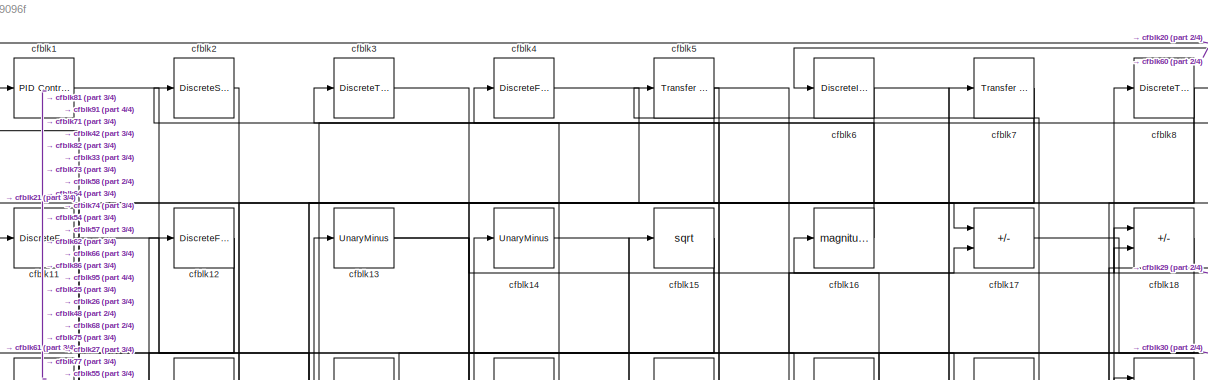
[diagram: root canvas - part 1/4, full width, top band]
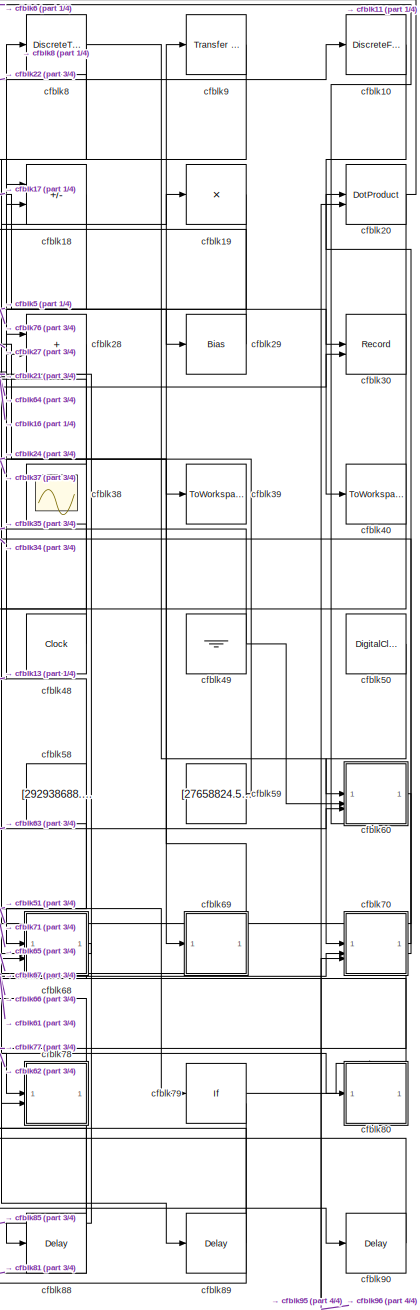
[diagram: root canvas - part 2/4, right side, full height]
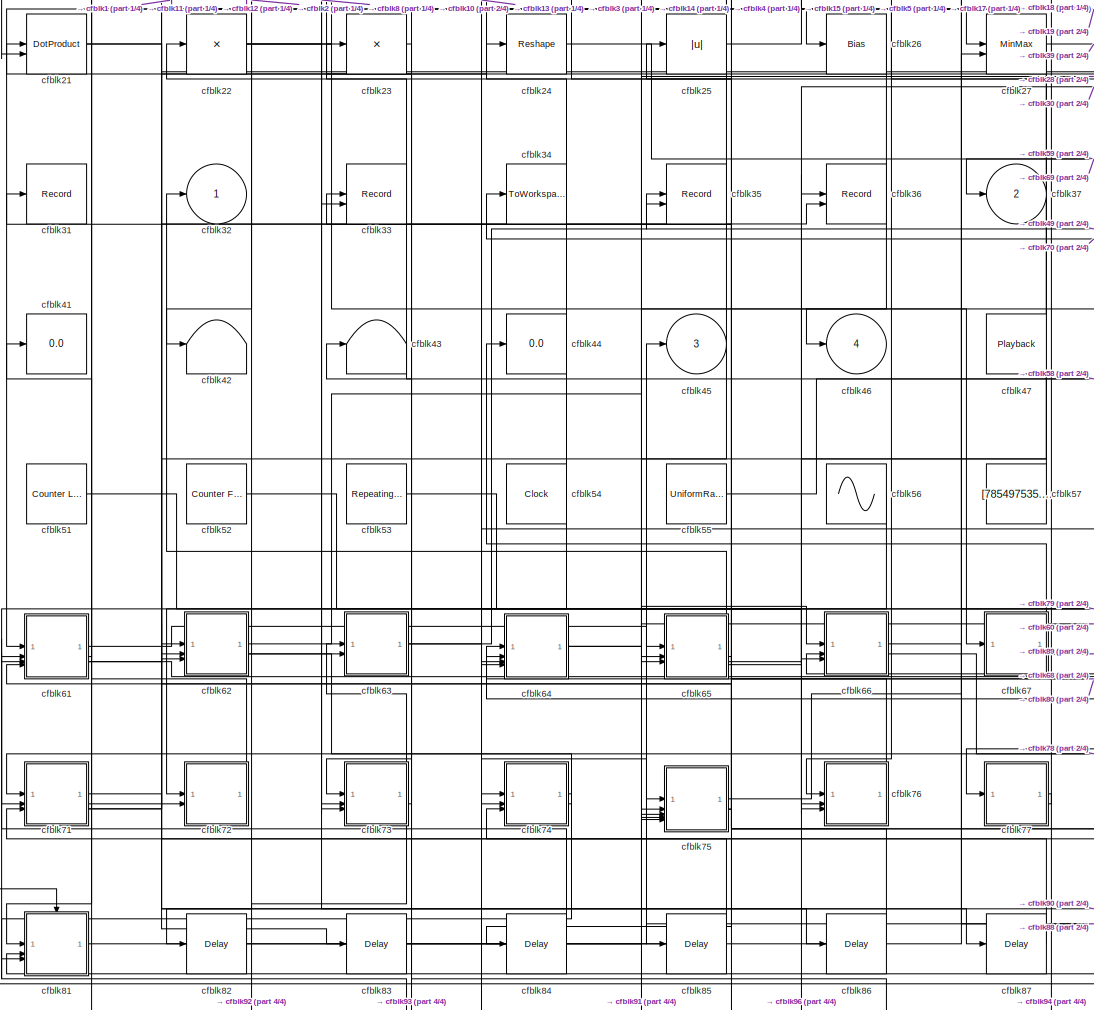
[diagram: root canvas - part 3/4, central region]
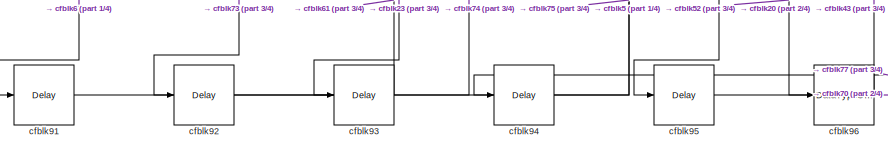
[diagram: root canvas - part 4/4, bottom left region]
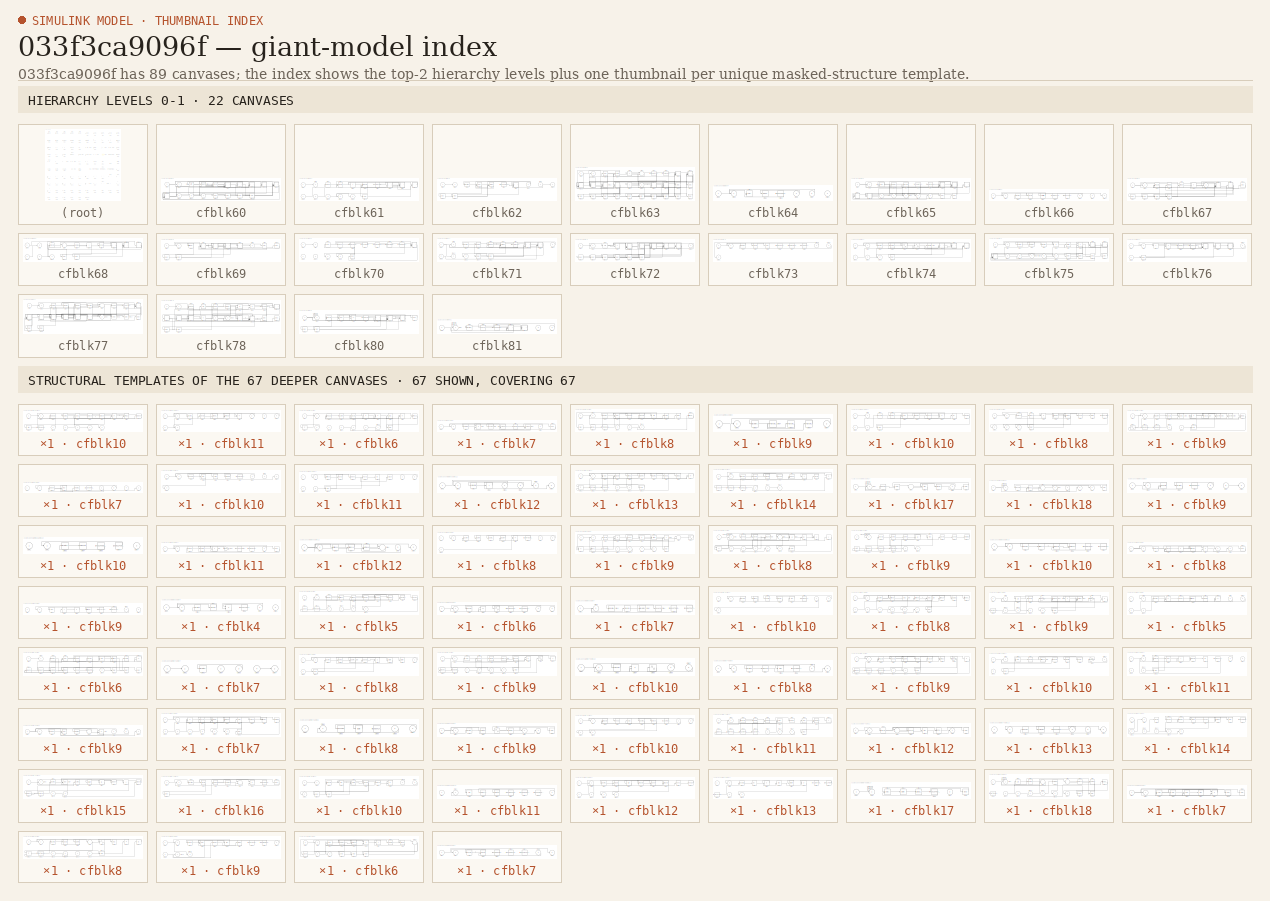
[diagram: thumbnail index - top-2 hierarchy levels (22 canvases) + 67 structural-template representatives of the remaining 67 canvases]
MODEL slx_033f3ca9096f
KIND model
CONFIG AbsTol = auto
CONFIG EnableMultiTasking = off
CONFIG FixedStep = auto
CONFIG MaxStep = auto
CONFIG MinStep = auto
CONFIG RelTol = 1e-3
CONFIG SampleTimeConstraint = Unconstrained
CONFIG SolverName = VariableStepAuto
CONFIG StartTime = 0.0
CONFIG StopTime = 10.0
BLOCK [Reference] cfblk1  REF=slpidlib/PID Controller
  LibrarySourceBlock = simulink/Discrete/Discrete PID Controller
  SourceBlock = slpidlib/PID Controller
  SourceType = PID 1dof
BLOCK [DiscreteFir] cfblk10
  InputPortMap = u0
  OutputPortMap = o0
  SampleTime = 1
BLOCK [DiscreteFilter] cfblk11
  InputPortMap = u0
  SampleTime = 1
BLOCK [DiscreteFilter] cfblk12
  InputPortMap = u0
  SampleTime = 1
BLOCK [UnaryMinus] cfblk13
BLOCK [UnaryMinus] cfblk14
BLOCK [Sqrt] cfblk15
BLOCK [Math] cfblk16
  Operator = magnitude^2
BLOCK [Sum] cfblk17
  IconShape = rectangular
  Inputs = +-
BLOCK [Sum] cfblk18
  IconShape = rectangular
  Inputs = +-
BLOCK [Product] cfblk19
  Inputs = *
BLOCK [DiscreteStateSpace] cfblk2
BLOCK [DotProduct] cfblk20
  OutDataTypeStr = Inherit: Inherit via internal rule
BLOCK [DotProduct] cfblk21
  OutDataTypeStr = Inherit: Inherit via internal rule
BLOCK [Product] cfblk22
  Inputs = *
BLOCK [Product] cfblk23
  Inputs = *
BLOCK [Reshape] cfblk24
BLOCK [Abs] cfblk25
  SaturateOnIntegerOverflow = off
BLOCK [Bias] cfblk26
  Bias = [469926650.613267]
  SaturateOnIntegerOverflow = off
BLOCK [MinMax] cfblk27
  Function = max
  Inputs = 2
BLOCK [Sum] cfblk28
  IconShape = rectangular
BLOCK [Bias] cfblk29
  Bias = [445975592.923403]
  SaturateOnIntegerOverflow = off
BLOCK [DiscreteTransferFcn] cfblk3
  InputPortMap = u0
  SampleTime = 1
BLOCK [Record] cfblk30
  CompatibilityTag = XY
  FileSettingsInternal = {"entries":[{"content":{"excelSettings":{"content":{},"type":"Streamout.ExcelSettings"}},"type":"Streamout.FileSettingStorage","uuid":""}],"packageUris":["http:\/\/schema.mathworks.com\/mf0\/streamout_blocks\/R2020a"],"version":"1.0"}  <repeated x5 — deduplicated; at blocks: cfblk30, cfblk31, cfblk33, cfblk35, cfblk36>
  Layout = [1 1]
  SignalsInternal = {"entries":[{"content":{"signals":[{"content":{"blockPath":[],"dimensions":[1],"domain":"","lineColor":"#a2142f","plots":[1],"port":1,"sid":[""],"signalID":864,"signalName":"cfblk17"},"type":"RecordBlkView.Signal","uuid":""},{"content":{"blockPath":[],"dimensions":[1],"domain":"","lineColor":"#139fff","plots":[1],"port":2,"sid":[""],"signalID":868,"signalName":"cfblk65:3"},"type":"RecordBlkView.Si...<+162ch>
  VisualizationBindings = {"xyplotplugin":{"info":[{"series":[{"bindingParametersList":[{"parameter":"X-Axis","signalID":864,"signalName":"cfblk17"},{"parameter":"Y-Axis","signalID":868,"signalName":"cfblk65:3"}],"seriesID":27169}],"subplotID":1}]}}
BLOCK [Record] cfblk31
  SignalsInternal = {"entries":[{"content":{"signals":[{"content":{"blockPath":[],"dimensions":[1],"domain":"","lineColor":"#ff6929","plots":[1],"port":1,"sid":[""],"signalID":848,"signalName":"cfblk75:2"},"type":"RecordBlkView.Signal","uuid":""}]},"type":"RecordBlkView.InputSignals","uuid":""}],"packageUris":["http:\/\/schema.mathworks.com\/mf0\/streamout_blocks\/R2020a"],"version":"1.0"}
  VisualizationBindings = {"sparklinesplugin":{"info":[{"bindingParametersList":[],"subplotID":1}]}}
BLOCK [Outport] cfblk32
BLOCK [Record] cfblk33
  CompatibilityTag = XY
  Layout = [1 1]
  SignalsInternal = {"entries":[{"content":{"signals":[{"content":{"blockPath":[],"dimensions":[1],"domain":"","lineColor":"#a2142f","plots":[1],"port":1,"sid":[""],"signalID":872,"signalName":"cfblk75:2"},"type":"RecordBlkView.Signal","uuid":""},{"content":{"blockPath":[],"dimensions":[1],"domain":"","lineColor":"#139fff","plots":[1],"port":2,"sid":[""],"signalID":876,"signalName":"cfblk8"},"type":"RecordBlkView.Sig...<+161ch>
  VisualizationBindings = {"xyplotplugin":{"info":[{"series":[{"bindingParametersList":[{"parameter":"X-Axis","signalID":872,"signalName":"cfblk75:2"},{"parameter":"Y-Axis","signalID":876,"signalName":"cfblk8"}],"seriesID":2036}],"subplotID":1}]}}
BLOCK [ToWorkspace] cfblk34
  FixptAsFi = on
  MaxDataPoints = inf
  SampleTime = -1
  SaveFormat = Timeseries
  VariableName = zjvyjjc
BLOCK [Record] cfblk35
  CompatibilityTag = XY
  Layout = [1 1]
  SignalsInternal = {"entries":[{"content":{"signals":[{"content":{"blockPath":[],"dimensions":[1],"domain":"","lineColor":"#139fff","plots":[1],"port":2,"sid":[""],"signalID":880,"signalName":"cfblk63"},"type":"RecordBlkView.Signal","uuid":""},{"content":{"blockPath":[],"dimensions":[1],"domain":"","lineColor":"#a2142f","plots":[1],"port":1,"sid":[""],"signalID":896,"signalName":"cfblk49"},"type":"RecordBlkView.Sign...<+160ch>
  VisualizationBindings = {"xyplotplugin":{"info":[{"series":[{"bindingParametersList":[{"parameter":"X-Axis","signalID":896,"signalName":"cfblk49"},{"parameter":"Y-Axis","signalID":880,"signalName":"cfblk63"}],"seriesID":60971}],"subplotID":1}]}}
BLOCK [Record] cfblk36
  CompatibilityTag = XY
  Layout = [1 1]
  SignalsInternal = {"entries":[{"content":{"signals":[{"content":{"blockPath":[],"dimensions":[1,1],"domain":"","lineColor":"#a2142f","plots":[1],"port":1,"sid":[""],"signalID":884,"signalName":"cfblk65:4"},"type":"RecordBlkView.Signal","uuid":""},{"content":{"blockPath":[],"dimensions":[1,1],"domain":"","lineColor":"#139fff","plots":[1],"port":2,"sid":[""],"signalID":888,"signalName":"cfblk71:3"},"type":"RecordBlkV...<+168ch>
  VisualizationBindings = {"xyplotplugin":{"info":[{"series":[{"bindingParametersList":[{"parameter":"X-Axis","signalID":884,"signalName":"cfblk65:4"},{"parameter":"Y-Axis","signalID":888,"signalName":"cfblk71:3"}],"seriesID":23987}],"subplotID":1}]}}
BLOCK [Outport] cfblk37
  Port = 2
BLOCK [Scope] cfblk38
  Floating = on
  NumInputPorts = 1
BLOCK [ToWorkspace] cfblk39
  FixptAsFi = on
  MaxDataPoints = inf
  SampleTime = -1
  SaveFormat = Timeseries
  VariableName = fmhwoco
BLOCK [DiscreteFilter] cfblk4
  InputPortMap = u0
  SampleTime = 1
BLOCK [ToWorkspace] cfblk40
  FixptAsFi = on
  MaxDataPoints = inf
  SampleTime = -1
  SaveFormat = Timeseries
  VariableName = qgwrdoz
BLOCK [Display] cfblk41
  Decimation = 1
BLOCK [Terminator] cfblk42
BLOCK [Terminator] cfblk43
BLOCK [Display] cfblk44
  Decimation = 1
BLOCK [Outport] cfblk45
  Port = 3
BLOCK [Outport] cfblk46
  Port = 4
BLOCK [Playback] cfblk47
  NumPorts = 0
  PartName = 36defed5-e0d6-41a1-a558-b523fd510067
BLOCK [Clock] cfblk48
BLOCK [Ground] cfblk49
BLOCK [Reference] cfblk5  REF=simulink/Discrete/Transfer Fcn
First Order
  SourceBlock = simulink/Discrete/Transfer Fcn\nFirst Order
  SourceType = First Order Transfer Fcn
BLOCK [DigitalClock] cfblk50
BLOCK [Reference] cfblk51  REF=simulink/Sources/Counter
Limited
  SourceBlock = simulink/Sources/Counter\nLimited
  SourceType = Counter Limited
BLOCK [Reference] cfblk52  REF=simulink/Sources/Counter
Free-Running
  SourceBlock = simulink/Sources/Counter\nFree-Running
  SourceType = Counter Free-Running
BLOCK [Reference] cfblk53  REF=simulink/Sources/Repeating
Sequence
Interpolated
  SourceBlock = simulink/Sources/Repeating\nSequence\nInterpolated
  SourceType = Repeating Sequence Interpolated
BLOCK [Clock] cfblk54
BLOCK [UniformRandomNumber] cfblk55
  Maximum = [3053319660.851500]
  Minimum = [-9244758245.197369]
  SampleTime = 0.1
  Seed = [9943217.000000]
BLOCK [Sin] cfblk56
  Amplitude = [-790585520.472188]
  Bias = [947156710.319980]
  SampleTime = 0
BLOCK [Constant] cfblk57
  SampleTime = 1
  Value = [785497535.657314]
BLOCK [Constant] cfblk58
  SampleTime = 1
  Value = [292938688.710555]
BLOCK [Constant] cfblk59
  SampleTime = 1
  Value = [27658824.599232]
BLOCK [DiscreteIntegrator] cfblk6
  ICPrevOutput = DiscIntNeverNeededParam
  ICPrevScaledInput = DiscIntNeverNeededParam
  InitialConditionSetting = Auto
BLOCK [SubSystem] cfblk60
BLOCK [Inport] cfblk60/cfblk1
BLOCK [SubSystem] cfblk60/cfblk10
BLOCK [Inport] cfblk60/cfblk10/cfblk1
BLOCK [ComplexToMagnitudeAngle] cfblk60/cfblk10/cfblk10
BLOCK [Math] cfblk60/cfblk10/cfblk11
  Operator = log
BLOCK [Constant] cfblk60/cfblk10/cfblk12
  SampleTime = 1
  Value = [625500924.124153]
BLOCK [Inport] cfblk60/cfblk10/cfblk13
  Port = 2
BLOCK [Inport] cfblk60/cfblk10/cfblk14
  Port = 3
BLOCK [Inport] cfblk60/cfblk10/cfblk15
  Port = 4
BLOCK [Outport] cfblk60/cfblk10/cfblk16
  Port = 2
BLOCK [Outport] cfblk60/cfblk10/cfblk17
  Port = 3
BLOCK [Outport] cfblk60/cfblk10/cfblk2
BLOCK [Reference] cfblk60/cfblk10/cfblk3  REF=simulink/Discrete/Tapped Delay
  SourceBlock = simulink/Discrete/Tapped Delay
  SourceType = Tapped Delay Line
BLOCK [DiscreteStateSpace] cfblk60/cfblk10/cfblk4
BLOCK [Delay] cfblk60/cfblk10/cfblk5
  InputPortMap = u0
  SampleTime = 1
BLOCK [ComplexToMagnitudeAngle] cfblk60/cfblk10/cfblk6
BLOCK [ComplexToMagnitudeAngle] cfblk60/cfblk10/cfblk7
BLOCK [Sum] cfblk60/cfblk10/cfblk8
  IconShape = rectangular
  Inputs = -+
BLOCK [DotProduct] cfblk60/cfblk10/cfblk9
  OutDataTypeStr = Inherit: Inherit via internal rule
BLOCK [SubSystem] cfblk60/cfblk11
BLOCK [Inport] cfblk60/cfblk11/cfblk1
BLOCK [Inport] cfblk60/cfblk11/cfblk10
  Port = 4
BLOCK [Inport] cfblk60/cfblk11/cfblk11
  Port = 5
BLOCK [Outport] cfblk60/cfblk11/cfblk12
  Port = 2
BLOCK [Outport] cfblk60/cfblk11/cfblk2
BLOCK [DiscreteIntegrator] cfblk60/cfblk11/cfblk3
  ICPrevOutput = DiscIntNeverNeededParam
  ICPrevScaledInput = DiscIntNeverNeededParam
  InitialConditionSetting = Auto
BLOCK [Reference] cfblk60/cfblk11/cfblk4  REF=simulink/Discrete/Tapped Delay
  SourceBlock = simulink/Discrete/Tapped Delay
  SourceType = Tapped Delay Line
BLOCK [Reference] cfblk60/cfblk11/cfblk5  REF=simulink/Math
Operations/Slider
Gain
  SourceBlock = simulink/Math\nOperations/Slider\nGain
  SourceType = Slider Gain
BLOCK [DotProduct] cfblk60/cfblk11/cfblk6
  OutDataTypeStr = Inherit: Inherit via internal rule
BLOCK [Sum] cfblk60/cfblk11/cfblk7
  IconShape = rectangular
  Inputs = +-
BLOCK [Inport] cfblk60/cfblk11/cfblk8
  Port = 2
BLOCK [Inport] cfblk60/cfblk11/cfblk9
  Port = 3
BLOCK [Inport] cfblk60/cfblk12
  Port = 2
BLOCK [Inport] cfblk60/cfblk13
  Port = 3
BLOCK [Outport] cfblk60/cfblk14
  Port = 2
BLOCK [Delay] cfblk60/cfblk15
  InputPortMap = u0
  SampleTime = 1
BLOCK [Delay] cfblk60/cfblk16
  InputPortMap = u0
  SampleTime = 1
BLOCK [Delay] cfblk60/cfblk17
  InputPortMap = u0
  SampleTime = 1
BLOCK [Delay] cfblk60/cfblk18
  InputPortMap = u0
  SampleTime = 1
BLOCK [Outport] cfblk60/cfblk2
BLOCK [Sqrt] cfblk60/cfblk3
BLOCK [ComplexToMagnitudeAngle] cfblk60/cfblk4
BLOCK [Polyval] cfblk60/cfblk5
  Coefs = [ +2.081618890e-019, -1.441693666e-014, +4.719686976e-010, -8.536869453e-006, +1.621573104e-001, -8.087801117e+001 ]
BLOCK [SubSystem] cfblk60/cfblk6
BLOCK [Inport] cfblk60/cfblk6/cfblk1
BLOCK [DotProduct] cfblk60/cfblk6/cfblk10
  OutDataTypeStr = Inherit: Inherit via internal rule
BLOCK [Product] cfblk60/cfblk6/cfblk11
  Inputs = *
BLOCK [Inport] cfblk60/cfblk6/cfblk12
  Port = 2
BLOCK [Inport] cfblk60/cfblk6/cfblk13
  Port = 3
BLOCK [Inport] cfblk60/cfblk6/cfblk14
  Port = 4
BLOCK [Inport] cfblk60/cfblk6/cfblk15
  Port = 5
BLOCK [Inport] cfblk60/cfblk6/cfblk16
  Port = 6
BLOCK [Inport] cfblk60/cfblk6/cfblk17
  Port = 7
BLOCK [Delay] cfblk60/cfblk6/cfblk18
  InputPortMap = u0
  SampleTime = 1
BLOCK [Outport] cfblk60/cfblk6/cfblk2
BLOCK [PropagationDelay] cfblk60/cfblk6/cfblk3
  SampleTime = 1
BLOCK [DiscreteFilter] cfblk60/cfblk6/cfblk4
  InputPortMap = u0
  SampleTime = 1
BLOCK [Reference] cfblk60/cfblk6/cfblk5  REF=simulink/Discrete/Transfer Fcn
Real Zero
  SourceBlock = simulink/Discrete/Transfer Fcn\nReal Zero
  SourceType = Transfer Fcn Real Zero
BLOCK [Product] cfblk60/cfblk6/cfblk6
  Inputs = *
BLOCK [Product] cfblk60/cfblk6/cfblk7
BLOCK [Bias] cfblk60/cfblk6/cfblk8
  Bias = [-131590458.966890]
  SaturateOnIntegerOverflow = off
BLOCK [Sum] cfblk60/cfblk6/cfblk9
  IconShape = rectangular
  Inputs = +-
BLOCK [SubSystem] cfblk60/cfblk7
BLOCK [Inport] cfblk60/cfblk7/cfblk1
BLOCK [Delay] cfblk60/cfblk7/cfblk10
  InputPortMap = u0
  SampleTime = 1
BLOCK [Outport] cfblk60/cfblk7/cfblk2
BLOCK [PermuteDimensions] cfblk60/cfblk7/cfblk3
BLOCK [Product] cfblk60/cfblk7/cfblk4
BLOCK [Reshape] cfblk60/cfblk7/cfblk5
BLOCK [Assignment] cfblk60/cfblk7/cfblk6
  DiagnosticForDimensions = Warning
  IndexOptions = Index vector (dialog)
  Indices = 1
  OutputSizes = 1
BLOCK [PermuteDimensions] cfblk60/cfblk7/cfblk7
BLOCK [Assignment] cfblk60/cfblk7/cfblk8
  DiagnosticForDimensions = Warning
  IndexOptions = Index vector (dialog)
  Indices = 1
  OutputSizes = 1
BLOCK [Inport] cfblk60/cfblk7/cfblk9
  Port = 2
BLOCK [SubSystem] cfblk60/cfblk8
BLOCK [Inport] cfblk60/cfblk8/cfblk1
BLOCK [Trigonometry] cfblk60/cfblk8/cfblk10
BLOCK [Bias] cfblk60/cfblk8/cfblk11
  Bias = [611522645.390012]
  SaturateOnIntegerOverflow = off
BLOCK [Reference] cfblk60/cfblk8/cfblk12  REF=simulink/Math
Operations/Slider
Gain
  SourceBlock = simulink/Math\nOperations/Slider\nGain
  SourceType = Slider Gain
BLOCK [Constant] cfblk60/cfblk8/cfblk13
  SampleTime = 1
  Value = [47069551.989140]
BLOCK [Inport] cfblk60/cfblk8/cfblk14
  Port = 2
BLOCK [Inport] cfblk60/cfblk8/cfblk15
  Port = 3
BLOCK [Outport] cfblk60/cfblk8/cfblk16
  Port = 2
BLOCK [Outport] cfblk60/cfblk8/cfblk2
BLOCK [DiscreteZeroPole] cfblk60/cfblk8/cfblk3
  Gain = 1
  Poles = [0 0.5]
BLOCK [Delay] cfblk60/cfblk8/cfblk4
  InputPortMap = u0,e6
  SampleTime = 1
  ShowEnablePort = on
BLOCK [Reference] cfblk60/cfblk8/cfblk5  REF=simulink/Discrete/Tapped Delay
  SourceBlock = simulink/Discrete/Tapped Delay
  SourceType = Tapped Delay Line
BLOCK [Reference] cfblk60/cfblk8/cfblk6  REF=simulink/Discrete/Tapped Delay
  SourceBlock = simulink/Discrete/Tapped Delay
  SourceType = Tapped Delay Line
BLOCK [UnitDelay] cfblk60/cfblk8/cfblk7
  HasFrameUpgradeWarning = on
BLOCK [DiscreteTransferFcn] cfblk60/cfblk8/cfblk8
  InputPortMap = u0
  SampleTime = 1
BLOCK [Sqrt] cfblk60/cfblk8/cfblk9
  AlgorithmType = Newton-Raphson
  Operator = rSqrt
BLOCK [SubSystem] cfblk60/cfblk9
BLOCK [Inport] cfblk60/cfblk9/cfblk1
BLOCK [Outport] cfblk60/cfblk9/cfblk2
BLOCK [DiscreteTransferFcn] cfblk60/cfblk9/cfblk3
  InputPortMap = u0
  SampleTime = 1
BLOCK [Reference] cfblk60/cfblk9/cfblk4  REF=simulink/Discrete/Transfer Fcn
Real Zero
  SourceBlock = simulink/Discrete/Transfer Fcn\nReal Zero
  SourceType = Transfer Fcn Real Zero
BLOCK [Reference] cfblk60/cfblk9/cfblk5  REF=simulink/Discrete/Transfer Fcn
Real Zero
  SourceBlock = simulink/Discrete/Transfer Fcn\nReal Zero
  SourceType = Transfer Fcn Real Zero
BLOCK [Reference] cfblk60/cfblk9/cfblk6  REF=simulink/Discrete/Transfer Fcn
First Order
  SourceBlock = simulink/Discrete/Transfer Fcn\nFirst Order
  SourceType = First Order Transfer Fcn
BLOCK [Inport] cfblk60/cfblk9/cfblk7
  Port = 2
BLOCK [SubSystem] cfblk61
BLOCK [Inport] cfblk61/cfblk1
BLOCK [SubSystem] cfblk61/cfblk10
BLOCK [Inport] cfblk61/cfblk10/cfblk1
BLOCK [UnaryMinus] cfblk61/cfblk10/cfblk10
BLOCK [Inport] cfblk61/cfblk10/cfblk11
  Port = 2
BLOCK [Inport] cfblk61/cfblk10/cfblk12
  Port = 3
BLOCK [Delay] cfblk61/cfblk10/cfblk13
  InputPortMap = u0
  SampleTime = 1
BLOCK [Outport] cfblk61/cfblk10/cfblk2
BLOCK [Reference] cfblk61/cfblk10/cfblk3  REF=simulink/Discrete/Tapped Delay
  SourceBlock = simulink/Discrete/Tapped Delay
  SourceType = Tapped Delay Line
BLOCK [DiscreteStateSpace] cfblk61/cfblk10/cfblk4
BLOCK [Delay] cfblk61/cfblk10/cfblk5
  DelayLengthSource = Input port
  InputPortMap = u0,p1
  SampleTime = 1
BLOCK [DiscreteZeroPole] cfblk61/cfblk10/cfblk6
  Gain = 1
  Poles = [0 0.5]
BLOCK [Squeeze] cfblk61/cfblk10/cfblk7
BLOCK [Sum] cfblk61/cfblk10/cfblk8
  IconShape = rectangular
  Inputs = --
BLOCK [Abs] cfblk61/cfblk10/cfblk9
  SaturateOnIntegerOverflow = off
BLOCK [Inport] cfblk61/cfblk11
  Port = 2
BLOCK [Inport] cfblk61/cfblk12
  Port = 3
BLOCK [Inport] cfblk61/cfblk13
  Port = 4
BLOCK [Outport] cfblk61/cfblk14
  Port = 2
BLOCK [Outport] cfblk61/cfblk15
  Port = 3
BLOCK [Delay] cfblk61/cfblk16
  InputPortMap = u0
  SampleTime = 1
BLOCK [Outport] cfblk61/cfblk2
BLOCK [Reference] cfblk61/cfblk3  REF=simulink/Discrete/Transfer Fcn
First Order
  SourceBlock = simulink/Discrete/Transfer Fcn\nFirst Order
  SourceType = First Order Transfer Fcn
BLOCK [Reference] cfblk61/cfblk4  REF=slpidlib/PID Controller (2DOF)
  LibrarySourceBlock = simulink/Discrete/Discrete PID Controller (2DOF)
  SourceBlock = slpidlib/PID Controller (2DOF)
  SourceType = PID 2dof
BLOCK [Sum] cfblk61/cfblk5
  IconShape = rectangular
  Inputs = +
BLOCK [Reference] cfblk61/cfblk6  REF=simulink/Math
Operations/MinMax
Running
Resettable
  SourceBlock = simulink/Math\nOperations/MinMax\nRunning\nResettable
  SourceType = MinMax Running Resettable
BLOCK [Constant] cfblk61/cfblk7
  SampleTime = 1
  Value = [70606175.934599]
BLOCK [SubSystem] cfblk61/cfblk8
BLOCK [Inport] cfblk61/cfblk8/cfblk1
BLOCK [Constant] cfblk61/cfblk8/cfblk10
  SampleTime = 1
  Value = [525511086.333042]
BLOCK [Outport] cfblk61/cfblk8/cfblk11
  Port = 2
BLOCK [Outport] cfblk61/cfblk8/cfblk12
  Port = 3
BLOCK [Outport] cfblk61/cfblk8/cfblk13
  Port = 4
BLOCK [Delay] cfblk61/cfblk8/cfblk14
  InputPortMap = u0
  SampleTime = 1
BLOCK [Outport] cfblk61/cfblk8/cfblk2
BLOCK [ComplexToMagnitudeAngle] cfblk61/cfblk8/cfblk3
BLOCK [ComplexToMagnitudeAngle] cfblk61/cfblk8/cfblk4
BLOCK [Product] cfblk61/cfblk8/cfblk5
  Inputs = *
BLOCK [Reference] cfblk61/cfblk8/cfblk6  REF=simulink/Math
Operations/MinMax
Running
Resettable
  SourceBlock = simulink/Math\nOperations/MinMax\nRunning\nResettable
  SourceType = MinMax Running Resettable
BLOCK [MinMax] cfblk61/cfblk8/cfblk7
  Function = max
  Inputs = 2
BLOCK [Squeeze] cfblk61/cfblk8/cfblk8
BLOCK [Sqrt] cfblk61/cfblk8/cfblk9
  AlgorithmType = Newton-Raphson
  Operator = rSqrt
BLOCK [SubSystem] cfblk61/cfblk9
BLOCK [Inport] cfblk61/cfblk9/cfblk1
BLOCK [MinMax] cfblk61/cfblk9/cfblk10
  Inputs = 3
BLOCK [Sin] cfblk61/cfblk9/cfblk11
  SampleTime = 0
  TimeSource = Use external signal
BLOCK [Constant] cfblk61/cfblk9/cfblk12
  SampleTime = 1
  Value = [190293536.411269]
BLOCK [Constant] cfblk61/cfblk9/cfblk13
  SampleTime = 1
  Value = [527846027.879381]
BLOCK [Inport] cfblk61/cfblk9/cfblk14
  Port = 2
BLOCK [Inport] cfblk61/cfblk9/cfblk15
  Port = 3
BLOCK [Delay] cfblk61/cfblk9/cfblk16
  InputPortMap = u0
  SampleTime = 1
BLOCK [Outport] cfblk61/cfblk9/cfblk2
BLOCK [DiscreteFilter] cfblk61/cfblk9/cfblk3
  InputPortMap = u0
  SampleTime = 1
BLOCK [Reference] cfblk61/cfblk9/cfblk4  REF=simulink/Discrete/Transfer Fcn
Lead or Lag
  SourceBlock = simulink/Discrete/Transfer Fcn\nLead or Lag
  SourceType = Lead or Lag Compensator
BLOCK [Delay] cfblk61/cfblk9/cfblk5
  DelayLengthSource = Input port
  InputPortMap = u0,p1
  SampleTime = 1
BLOCK [Product] cfblk61/cfblk9/cfblk6
  Inputs = **
BLOCK [Signum] cfblk61/cfblk9/cfblk7
BLOCK [Assignment] cfblk61/cfblk9/cfblk8
  DiagnosticForDimensions = Warning
  IndexOptions = Index vector (dialog)
  Indices = 1
  OutputSizes = 1
BLOCK [Assignment] cfblk61/cfblk9/cfblk9
  DiagnosticForDimensions = Warning
  IndexOptions = Index vector (dialog)
  Indices = 1
  OutputSizes = 1
BLOCK [SubSystem] cfblk62
BLOCK [Inport] cfblk62/cfblk1
BLOCK [Outport] cfblk62/cfblk10
  Port = 2
BLOCK [Delay] cfblk62/cfblk11
  InputPortMap = u0
  SampleTime = 1
BLOCK [Delay] cfblk62/cfblk12
  InputPortMap = u0
  SampleTime = 1
BLOCK [Outport] cfblk62/cfblk2
BLOCK [DiscreteFilter] cfblk62/cfblk3
  InputPortMap = u0
  SampleTime = 1
BLOCK [Delay] cfblk62/cfblk4
  DelayLengthSource = Input port
  InputPortMap = u0,p1
  SampleTime = 1
BLOCK [MinMax] cfblk62/cfblk5
  Inputs = 3
BLOCK [Constant] cfblk62/cfblk6
  SampleTime = 1
  Value = [551112500.517372]
BLOCK [SubSystem] cfblk62/cfblk7
BLOCK [Inport] cfblk62/cfblk7/cfblk1
BLOCK [Outport] cfblk62/cfblk7/cfblk10
  Port = 2
BLOCK [Outport] cfblk62/cfblk7/cfblk2
BLOCK [ComplexToRealImag] cfblk62/cfblk7/cfblk3
BLOCK [Math] cfblk62/cfblk7/cfblk4
  Operator = log
BLOCK [PermuteDimensions] cfblk62/cfblk7/cfblk5
BLOCK [Constant] cfblk62/cfblk7/cfblk6
  SampleTime = 1
  Value = [231603553.362053]
BLOCK [Inport] cfblk62/cfblk7/cfblk7
  Port = 2
BLOCK [Inport] cfblk62/cfblk7/cfblk8
  Port = 3
BLOCK [Inport] cfblk62/cfblk7/cfblk9
  Port = 4
BLOCK [Inport] cfblk62/cfblk8
  Port = 2
BLOCK [Inport] cfblk62/cfblk9
  Port = 3
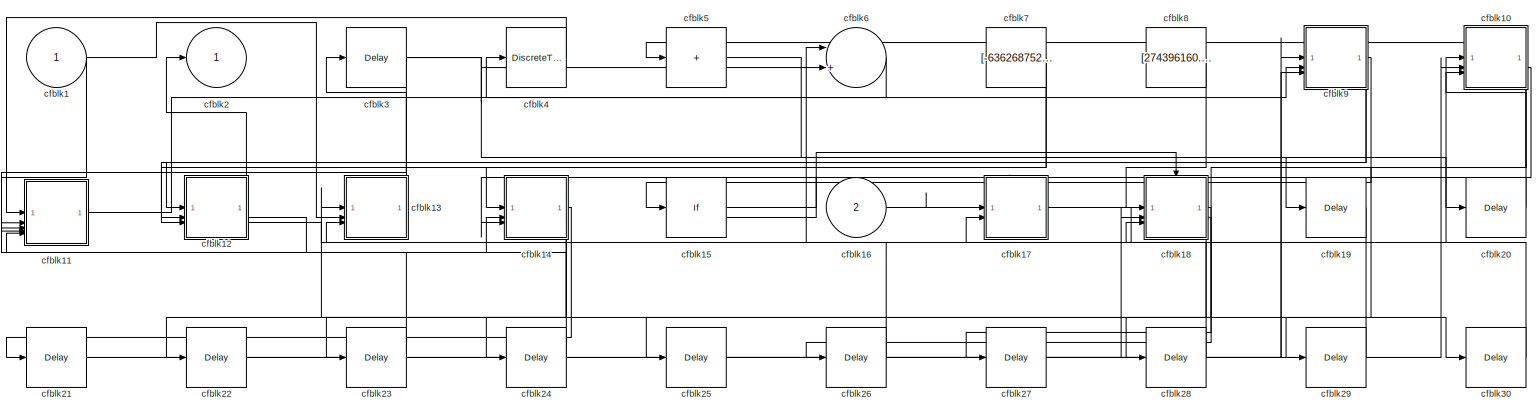
[diagram: cfblk63 - part 1/1, most of the canvas]
BLOCK [SubSystem] cfblk63
BLOCK [Inport] cfblk63/cfblk1
BLOCK [SubSystem] cfblk63/cfblk10
BLOCK [Inport] cfblk63/cfblk10/cfblk1
BLOCK [Outport] cfblk63/cfblk10/cfblk10
  Port = 2
BLOCK [Outport] cfblk63/cfblk10/cfblk11
  Port = 3
BLOCK [Outport] cfblk63/cfblk10/cfblk2
BLOCK [Reference] cfblk63/cfblk10/cfblk3  REF=simulink/Discrete/Tapped Delay
  SourceBlock = simulink/Discrete/Tapped Delay
  SourceType = Tapped Delay Line
BLOCK [Bias] cfblk63/cfblk10/cfblk4
  Bias = [-850124795.777537]
  SaturateOnIntegerOverflow = off
BLOCK [Sqrt] cfblk63/cfblk10/cfblk5
BLOCK [PermuteDimensions] cfblk63/cfblk10/cfblk6
BLOCK [Constant] cfblk63/cfblk10/cfblk7
  SampleTime = 1
  Value = [-126802416.489354]
BLOCK [Inport] cfblk63/cfblk10/cfblk8
  Port = 2
BLOCK [Inport] cfblk63/cfblk10/cfblk9
  Port = 3
BLOCK [SubSystem] cfblk63/cfblk11
BLOCK [Inport] cfblk63/cfblk11/cfblk1
BLOCK [Inport] cfblk63/cfblk11/cfblk10
  Port = 3
BLOCK [Inport] cfblk63/cfblk11/cfblk11
  Port = 4
BLOCK [Inport] cfblk63/cfblk11/cfblk12
  Port = 5
BLOCK [Delay] cfblk63/cfblk11/cfblk13
  InputPortMap = u0
  SampleTime = 1
BLOCK [Outport] cfblk63/cfblk11/cfblk2
BLOCK [Reference] cfblk63/cfblk11/cfblk3  REF=simulink/Discrete/Difference
  SourceBlock = simulink/Discrete/Difference
  SourceType = Difference
BLOCK [Polyval] cfblk63/cfblk11/cfblk4
  Coefs = [ +2.081618890e-019, -1.441693666e-014, +4.719686976e-010, -8.536869453e-006, +1.621573104e-001, -8.087801117e+001 ]
BLOCK [ComplexToMagnitudeAngle] cfblk63/cfblk11/cfblk5
BLOCK [Polyval] cfblk63/cfblk11/cfblk6
  Coefs = [ +2.081618890e-019, -1.441693666e-014, +4.719686976e-010, -8.536869453e-006, +1.621573104e-001, -8.087801117e+001 ]
BLOCK [Abs] cfblk63/cfblk11/cfblk7
  SaturateOnIntegerOverflow = off
BLOCK [Signum] cfblk63/cfblk11/cfblk8
BLOCK [Inport] cfblk63/cfblk11/cfblk9
  Port = 2
BLOCK [SubSystem] cfblk63/cfblk12
BLOCK [Inport] cfblk63/cfblk12/cfblk1
BLOCK [Outport] cfblk63/cfblk12/cfblk2
BLOCK [PermuteDimensions] cfblk63/cfblk12/cfblk3
BLOCK [Sum] cfblk63/cfblk12/cfblk4
  IconShape = rectangular
  Inputs = +
BLOCK [Inport] cfblk63/cfblk12/cfblk5
  Port = 2
BLOCK [Inport] cfblk63/cfblk12/cfblk6
  Port = 3
BLOCK [Outport] cfblk63/cfblk12/cfblk7
  Port = 2
BLOCK [Outport] cfblk63/cfblk12/cfblk8
  Port = 3
BLOCK [SubSystem] cfblk63/cfblk13
BLOCK [Inport] cfblk63/cfblk13/cfblk1
BLOCK [Sum] cfblk63/cfblk13/cfblk10
  IconShape = rectangular
  Inputs = -+
BLOCK [Product] cfblk63/cfblk13/cfblk11
BLOCK [Constant] cfblk63/cfblk13/cfblk12
  SampleTime = 1
  Value = [-44871882.615600]
BLOCK [Constant] cfblk63/cfblk13/cfblk13
  SampleTime = 1
  Value = [-842761314.581535]
BLOCK [Inport] cfblk63/cfblk13/cfblk14
  Port = 2
BLOCK [Inport] cfblk63/cfblk13/cfblk15
  Port = 3
BLOCK [Delay] cfblk63/cfblk13/cfblk16
  InputPortMap = u0
  SampleTime = 1
BLOCK [Outport] cfblk63/cfblk13/cfblk2
BLOCK [Delay] cfblk63/cfblk13/cfblk3
  InputPortMap = u0,e6
  SampleTime = 1
  ShowEnablePort = on
BLOCK [Reference] cfblk63/cfblk13/cfblk4  REF=slpidlib/PID Controller (2DOF)
  LibrarySourceBlock = simulink/Discrete/Discrete PID Controller (2DOF)
  SourceBlock = slpidlib/PID Controller (2DOF)
  SourceType = PID 2dof
BLOCK [Reference] cfblk63/cfblk13/cfblk5  REF=simulink/Discrete/Difference
  SourceBlock = simulink/Discrete/Difference
  SourceType = Difference
BLOCK [DiscreteTransferFcn] cfblk63/cfblk13/cfblk6
  InputPortMap = u0
  SampleTime = 1
BLOCK [DiscreteIntegrator] cfblk63/cfblk13/cfblk7
  ICPrevOutput = DiscIntNeverNeededParam
  ICPrevScaledInput = DiscIntNeverNeededParam
  InitialConditionSetting = Auto
BLOCK [Reference] cfblk63/cfblk13/cfblk8  REF=simulink/Discrete/Transfer Fcn
First Order
  SourceBlock = simulink/Discrete/Transfer Fcn\nFirst Order
  SourceType = First Order Transfer Fcn
BLOCK [Reference] cfblk63/cfblk13/cfblk9  REF=simulink/Math
Operations/Slider
Gain
  SourceBlock = simulink/Math\nOperations/Slider\nGain
  SourceType = Slider Gain
BLOCK [SubSystem] cfblk63/cfblk14
BLOCK [Inport] cfblk63/cfblk14/cfblk1
BLOCK [Product] cfblk63/cfblk14/cfblk10
  Inputs = **
BLOCK [Squeeze] cfblk63/cfblk14/cfblk11
BLOCK [Constant] cfblk63/cfblk14/cfblk12
  SampleTime = 1
  Value = [-157045349.159713]
BLOCK [Constant] cfblk63/cfblk14/cfblk13
  SampleTime = 1
  Value = [-429148328.057407]
BLOCK [Inport] cfblk63/cfblk14/cfblk14
  Port = 2
BLOCK [Inport] cfblk63/cfblk14/cfblk15
  Port = 3
BLOCK [Outport] cfblk63/cfblk14/cfblk16
  Port = 2
BLOCK [Outport] cfblk63/cfblk14/cfblk2
BLOCK [DiscreteIntegrator] cfblk63/cfblk14/cfblk3
  ICPrevOutput = DiscIntNeverNeededParam
  ICPrevScaledInput = DiscIntNeverNeededParam
  InitialConditionSetting = Auto
BLOCK [DiscreteIntegrator] cfblk63/cfblk14/cfblk4
  ICPrevOutput = DiscIntNeverNeededParam
  ICPrevScaledInput = DiscIntNeverNeededParam
  InitialConditionSetting = Auto
BLOCK [PermuteDimensions] cfblk63/cfblk14/cfblk5
BLOCK [Reshape] cfblk63/cfblk14/cfblk6
BLOCK [Reference] cfblk63/cfblk14/cfblk7  REF=simulink/Math
Operations/MinMax
Running
Resettable
  SourceBlock = simulink/Math\nOperations/MinMax\nRunning\nResettable
  SourceType = MinMax Running Resettable
BLOCK [Sum] cfblk63/cfblk14/cfblk8
  IconShape = rectangular
  Inputs = +
BLOCK [Signum] cfblk63/cfblk14/cfblk9
BLOCK [If] cfblk63/cfblk15
  IfExpression = u1 >= 0
  SampleTime = 1
BLOCK [Inport] cfblk63/cfblk16
  Port = 2
BLOCK [SubSystem] cfblk63/cfblk17
  TreatAsAtomicUnit = on
BLOCK [ActionPort] cfblk63/cfblk17/Action Port
  ActionPortLabel = if(u1 >= 0)
BLOCK [Inport] cfblk63/cfblk17/cfblk1
BLOCK [Outport] cfblk63/cfblk17/cfblk2
BLOCK [Reference] cfblk63/cfblk17/cfblk3  REF=simulink/Discrete/Tapped Delay
  SourceBlock = simulink/Discrete/Tapped Delay
  SourceType = Tapped Delay Line
BLOCK [Delay] cfblk63/cfblk17/cfblk4
  InputPortMap = u0,e6
  ShowEnablePort = on
BLOCK [Sum] cfblk63/cfblk17/cfblk5
  Inputs = |++
BLOCK [Bias] cfblk63/cfblk17/cfblk6
  Bias = [-4647413.538267]
  SaturateOnIntegerOverflow = off
BLOCK [Reference] cfblk63/cfblk17/cfblk7  REF=simulink/Math
Operations/Slider
Gain
  SourceBlock = simulink/Math\nOperations/Slider\nGain
  SourceType = Slider Gain
BLOCK [Inport] cfblk63/cfblk17/cfblk8
  Port = 2
BLOCK [Delay] cfblk63/cfblk17/cfblk9
  InputPortMap = u0
BLOCK [SubSystem] cfblk63/cfblk18
  TreatAsAtomicUnit = on
BLOCK [ActionPort] cfblk63/cfblk18/Action Port
  ActionPortLabel = else
BLOCK [Inport] cfblk63/cfblk18/cfblk1
BLOCK [Delay] cfblk63/cfblk18/cfblk10
  InputPortMap = u0
BLOCK [Outport] cfblk63/cfblk18/cfblk2
BLOCK [Reference] cfblk63/cfblk18/cfblk3  REF=simulink/Discrete/Tapped Delay
  SourceBlock = simulink/Discrete/Tapped Delay
  SourceType = Tapped Delay Line
BLOCK [Trigonometry] cfblk63/cfblk18/cfblk4
BLOCK [Sum] cfblk63/cfblk18/cfblk5
  Inputs = |++
BLOCK [Inport] cfblk63/cfblk18/cfblk6
  Port = 2
BLOCK [Inport] cfblk63/cfblk18/cfblk7
  Port = 3
BLOCK [Outport] cfblk63/cfblk18/cfblk8
  Port = 2
BLOCK [Outport] cfblk63/cfblk18/cfblk9
  Port = 3
BLOCK [Delay] cfblk63/cfblk19
  InputPortMap = u0
  SampleTime = 1
BLOCK [Outport] cfblk63/cfblk2
BLOCK [Delay] cfblk63/cfblk20
  InputPortMap = u0
  SampleTime = 1
BLOCK [Delay] cfblk63/cfblk21
  InputPortMap = u0
  SampleTime = 1
BLOCK [Delay] cfblk63/cfblk22
  InputPortMap = u0
  SampleTime = 1
BLOCK [Delay] cfblk63/cfblk23
  InputPortMap = u0
  SampleTime = 1
BLOCK [Delay] cfblk63/cfblk24
  InputPortMap = u0
  SampleTime = 1
BLOCK [Delay] cfblk63/cfblk25
  InputPortMap = u0
  SampleTime = 1
BLOCK [Delay] cfblk63/cfblk26
  InputPortMap = u0
  SampleTime = 1
BLOCK [Delay] cfblk63/cfblk27
  InputPortMap = u0
  SampleTime = 1
BLOCK [Delay] cfblk63/cfblk28
  InputPortMap = u0
  SampleTime = 1
BLOCK [Delay] cfblk63/cfblk29
  InputPortMap = u0
  SampleTime = 1
BLOCK [Delay] cfblk63/cfblk3
  InputPortMap = u0
  SampleTime = 1
BLOCK [Delay] cfblk63/cfblk30
  InputPortMap = u0
  SampleTime = 1
BLOCK [DiscreteTransferFcn] cfblk63/cfblk4
  InputPortMap = u0
  SampleTime = 1
BLOCK [Sum] cfblk63/cfblk5
  IconShape = rectangular
  Inputs = +
BLOCK [Sum] cfblk63/cfblk6
  Inputs = |++
BLOCK [Constant] cfblk63/cfblk7
  SampleTime = 1
  Value = [-636268752.156236]
BLOCK [Constant] cfblk63/cfblk8
  SampleTime = 1
  Value = [274396160.884011]
BLOCK [SubSystem] cfblk63/cfblk9
BLOCK [Inport] cfblk63/cfblk9/cfblk1
BLOCK [Outport] cfblk63/cfblk9/cfblk2
BLOCK [PropagationDelay] cfblk63/cfblk9/cfblk3
  SampleTime = 1
BLOCK [DiscreteIntegrator] cfblk63/cfblk9/cfblk4
  ICPrevOutput = DiscIntNeverNeededParam
  ICPrevScaledInput = DiscIntNeverNeededParam
  InitialConditionSetting = Auto
BLOCK [Constant] cfblk63/cfblk9/cfblk5
  SampleTime = 1
  Value = [-536662594.470405]
BLOCK [Inport] cfblk63/cfblk9/cfblk6
  Port = 2
BLOCK [Inport] cfblk63/cfblk9/cfblk7
  Port = 3
BLOCK [Outport] cfblk63/cfblk9/cfblk8
  Port = 2
BLOCK [SubSystem] cfblk64
BLOCK [Inport] cfblk64/cfblk1
BLOCK [Outport] cfblk64/cfblk2
BLOCK [Delay] cfblk64/cfblk3
  DelayLengthSource = Input port
  InputPortMap = u0,p1
  SampleTime = 1
BLOCK [MinMax] cfblk64/cfblk4
BLOCK [Constant] cfblk64/cfblk5
  SampleTime = 1
  Value = [-395344255.806341]
BLOCK [Inport] cfblk64/cfblk6
  Port = 2
BLOCK [Inport] cfblk64/cfblk7
  Port = 3
BLOCK [Inport] cfblk64/cfblk8
  Port = 4
BLOCK [SubSystem] cfblk65
BLOCK [Inport] cfblk65/cfblk1
BLOCK [SubSystem] cfblk65/cfblk10
BLOCK [Inport] cfblk65/cfblk10/cfblk1
BLOCK [Outport] cfblk65/cfblk10/cfblk2
BLOCK [DiscreteStateSpace] cfblk65/cfblk10/cfblk3
BLOCK [Reference] cfblk65/cfblk10/cfblk4  REF=slpidlib/PID Controller
  LibrarySourceBlock = simulink/Discrete/Discrete PID Controller
  SourceBlock = slpidlib/PID Controller
  SourceType = PID 1dof
BLOCK [Constant] cfblk65/cfblk10/cfblk5
  SampleTime = 1
  Value = [-149234055.532666]
BLOCK [Constant] cfblk65/cfblk10/cfblk6
  SampleTime = 1
  Value = [105822438.237260]
BLOCK [Inport] cfblk65/cfblk10/cfblk7
  Port = 2
BLOCK [SubSystem] cfblk65/cfblk11
BLOCK [Inport] cfblk65/cfblk11/cfblk1
BLOCK [Delay] cfblk65/cfblk11/cfblk10
  InputPortMap = u0
  SampleTime = 1
BLOCK [Outport] cfblk65/cfblk11/cfblk2
BLOCK [Reference] cfblk65/cfblk11/cfblk3  REF=simulink/Discrete/Transfer Fcn
Lead or Lag
  SourceBlock = simulink/Discrete/Transfer Fcn\nLead or Lag
  SourceType = Lead or Lag Compensator
BLOCK [DiscreteIntegrator] cfblk65/cfblk11/cfblk4
  ICPrevOutput = DiscIntNeverNeededParam
  ICPrevScaledInput = DiscIntNeverNeededParam
  InitialConditionSetting = Auto
BLOCK [Product] cfblk65/cfblk11/cfblk5
BLOCK [Gain] cfblk65/cfblk11/cfblk6
  Gain = [22401358.181116]
BLOCK [Constant] cfblk65/cfblk11/cfblk7
  SampleTime = 1
  Value = [500137433.914549]
BLOCK [Constant] cfblk65/cfblk11/cfblk8
  SampleTime = 1
  Value = [561996349.168955]
BLOCK [Inport] cfblk65/cfblk11/cfblk9
  Port = 2
BLOCK [SubSystem] cfblk65/cfblk12
BLOCK [Inport] cfblk65/cfblk12/cfblk1
BLOCK [Outport] cfblk65/cfblk12/cfblk2
BLOCK [Reference] cfblk65/cfblk12/cfblk3  REF=simulink/Discrete/Difference
  SourceBlock = simulink/Discrete/Difference
  SourceType = Difference
BLOCK [Reference] cfblk65/cfblk12/cfblk4  REF=simulink/Discrete/Difference
  SourceBlock = simulink/Discrete/Difference
  SourceType = Difference
BLOCK [DotProduct] cfblk65/cfblk12/cfblk5
  OutDataTypeStr = Inherit: Inherit via internal rule
BLOCK [Sum] cfblk65/cfblk12/cfblk6
  Inputs = |++
BLOCK [Inport] cfblk65/cfblk12/cfblk7
  Port = 2
BLOCK [Outport] cfblk65/cfblk12/cfblk8
  Port = 2
BLOCK [Inport] cfblk65/cfblk13
  Port = 2
BLOCK [Inport] cfblk65/cfblk14
  Port = 3
BLOCK [Outport] cfblk65/cfblk15
  Port = 2
BLOCK [Outport] cfblk65/cfblk16
  Port = 3
BLOCK [Outport] cfblk65/cfblk17
  Port = 4
BLOCK [Delay] cfblk65/cfblk18
  InputPortMap = u0
  SampleTime = 1
BLOCK [Delay] cfblk65/cfblk19
  InputPortMap = u0
  SampleTime = 1
BLOCK [Outport] cfblk65/cfblk2
BLOCK [Delay] cfblk65/cfblk3
  DelayLengthSource = Input port
  InputPortMap = u0,p1
  SampleTime = 1
BLOCK [DiscreteFilter] cfblk65/cfblk4
  InputPortMap = u0
  SampleTime = 1
BLOCK [Reshape] cfblk65/cfblk5
BLOCK [Constant] cfblk65/cfblk6
  SampleTime = 1
  Value = [767489767.583337]
BLOCK [Constant] cfblk65/cfblk7
  SampleTime = 1
  Value = [766921433.313521]
BLOCK [SubSystem] cfblk65/cfblk8
BLOCK [Inport] cfblk65/cfblk8/cfblk1
BLOCK [Inport] cfblk65/cfblk8/cfblk10
  Port = 3
BLOCK [Inport] cfblk65/cfblk8/cfblk11
  Port = 4
BLOCK [Outport] cfblk65/cfblk8/cfblk2
BLOCK [DiscreteFir] cfblk65/cfblk8/cfblk3
  InputPortMap = u0
  OutputPortMap = o0
  SampleTime = 1
BLOCK [DiscreteFilter] cfblk65/cfblk8/cfblk4
  InputPortMap = u0
  SampleTime = 1
BLOCK [DiscreteZeroPole] cfblk65/cfblk8/cfblk5
  Gain = 1
  Poles = [0 0.5]
BLOCK [DiscreteFir] cfblk65/cfblk8/cfblk6
  InputPortMap = u0
  OutputPortMap = o0
  SampleTime = 1
BLOCK [Sum] cfblk65/cfblk8/cfblk7
  IconShape = rectangular
  Inputs = +-
BLOCK [Constant] cfblk65/cfblk8/cfblk8
  SampleTime = 1
  Value = [-914079939.001597]
BLOCK [Inport] cfblk65/cfblk8/cfblk9
  Port = 2
BLOCK [SubSystem] cfblk65/cfblk9
BLOCK [Inport] cfblk65/cfblk9/cfblk1
BLOCK [Sin] cfblk65/cfblk9/cfblk10
  SampleTime = 0
  TimeSource = Use external signal
BLOCK [Sum] cfblk65/cfblk9/cfblk11
  IconShape = rectangular
  Inputs = +-
BLOCK [Trigonometry] cfblk65/cfblk9/cfblk12
BLOCK [Constant] cfblk65/cfblk9/cfblk13
  SampleTime = 1
  Value = [213869982.900550]
BLOCK [Inport] cfblk65/cfblk9/cfblk14
  Port = 2
BLOCK [Inport] cfblk65/cfblk9/cfblk15
  Port = 3
BLOCK [Inport] cfblk65/cfblk9/cfblk16
  Port = 4
BLOCK [Outport] cfblk65/cfblk9/cfblk17
  Port = 2
BLOCK [Delay] cfblk65/cfblk9/cfblk18
  InputPortMap = u0
  SampleTime = 1
BLOCK [Outport] cfblk65/cfblk9/cfblk2
BLOCK [Reference] cfblk65/cfblk9/cfblk3  REF=simulink/Discrete/Transfer Fcn
Lead or Lag
  SourceBlock = simulink/Discrete/Transfer Fcn\nLead or Lag
  SourceType = Lead or Lag Compensator
BLOCK [Product] cfblk65/cfblk9/cfblk4
  Inputs = **
BLOCK [Polyval] cfblk65/cfblk9/cfblk5
  Coefs = [ +2.081618890e-019, -1.441693666e-014, +4.719686976e-010, -8.536869453e-006, +1.621573104e-001, -8.087801117e+001 ]
BLOCK [Product] cfblk65/cfblk9/cfblk6
  Inputs = *
BLOCK [Sqrt] cfblk65/cfblk9/cfblk7
  AlgorithmType = Newton-Raphson
  Operator = rSqrt
BLOCK [Sum] cfblk65/cfblk9/cfblk8
  IconShape = rectangular
  Inputs = +
BLOCK [Sum] cfblk65/cfblk9/cfblk9
  Inputs = |++
BLOCK [SubSystem] cfblk66
BLOCK [Inport] cfblk66/cfblk1
BLOCK [Outport] cfblk66/cfblk10
  Port = 2
BLOCK [Outport] cfblk66/cfblk2
BLOCK [DiscreteZeroPole] cfblk66/cfblk3
  Gain = 1
  Poles = [0 0.5]
BLOCK [Reference] cfblk66/cfblk4  REF=simulink/Discrete/Transfer Fcn
Real Zero
  SourceBlock = simulink/Discrete/Transfer Fcn\nReal Zero
  SourceType = Transfer Fcn Real Zero
BLOCK [Math] cfblk66/cfblk5
  Operator = hermitian
BLOCK [Constant] cfblk66/cfblk6
  SampleTime = 1
  Value = [794654116.084426]
BLOCK [Constant] cfblk66/cfblk7
  SampleTime = 1
  Value = [-838477001.081016]
BLOCK [Inport] cfblk66/cfblk8
  Port = 2
BLOCK [Inport] cfblk66/cfblk9
  Port = 3
BLOCK [SubSystem] cfblk67
BLOCK [Inport] cfblk67/cfblk1
BLOCK [Delay] cfblk67/cfblk10
  InputPortMap = u0
  SampleTime = 1
BLOCK [Delay] cfblk67/cfblk11
  InputPortMap = u0
  SampleTime = 1
BLOCK [Delay] cfblk67/cfblk12
  InputPortMap = u0
  SampleTime = 1
BLOCK [Delay] cfblk67/cfblk13
  InputPortMap = u0
  SampleTime = 1
BLOCK [Delay] cfblk67/cfblk14
  InputPortMap = u0
  SampleTime = 1
BLOCK [Outport] cfblk67/cfblk2
BLOCK [Reference] cfblk67/cfblk3  REF=slpidlib/PID Controller (2DOF)
  LibrarySourceBlock = simulink/Discrete/Discrete PID Controller (2DOF)
  SourceBlock = slpidlib/PID Controller (2DOF)
  SourceType = PID 2dof
BLOCK [PermuteDimensions] cfblk67/cfblk4
BLOCK [MinMax] cfblk67/cfblk5
  Inputs = 2
BLOCK [If] cfblk67/cfblk6
  IfExpression = u1 >= 0
  SampleTime = 1
BLOCK [Outport] cfblk67/cfblk7
  Port = 2
BLOCK [SubSystem] cfblk67/cfblk8
  TreatAsAtomicUnit = on
BLOCK [ActionPort] cfblk67/cfblk8/Action Port
  ActionPortLabel = if(u1 >= 0)
BLOCK [Inport] cfblk67/cfblk8/cfblk1
BLOCK [Sum] cfblk67/cfblk8/cfblk10
  IconShape = rectangular
  Inputs = +
BLOCK [Sum] cfblk67/cfblk8/cfblk11
  IconShape = rectangular
  Inputs = +-
BLOCK [Inport] cfblk67/cfblk8/cfblk12
  Port = 2
BLOCK [Inport] cfblk67/cfblk8/cfblk13
  Port = 3
BLOCK [Inport] cfblk67/cfblk8/cfblk14
  Port = 4
BLOCK [Outport] cfblk67/cfblk8/cfblk15
  Port = 2
BLOCK [Outport] cfblk67/cfblk8/cfblk16
  Port = 3
BLOCK [Delay] cfblk67/cfblk8/cfblk17
  InputPortMap = u0
BLOCK [Outport] cfblk67/cfblk8/cfblk2
BLOCK [Reference] cfblk67/cfblk8/cfblk3  REF=simulink/Discrete/Tapped Delay
  SourceBlock = simulink/Discrete/Tapped Delay
  SourceType = Tapped Delay Line
BLOCK [Reference] cfblk67/cfblk8/cfblk4  REF=simulink/Discrete/Transfer Fcn
Real Zero
  SourceBlock = simulink/Discrete/Transfer Fcn\nReal Zero
  SourceType = Transfer Fcn Real Zero
BLOCK [Reference] cfblk67/cfblk8/cfblk5  REF=slpidlib/PID Controller (2DOF)
  LibrarySourceBlock = simulink/Discrete/Discrete PID Controller (2DOF)
  SourceBlock = slpidlib/PID Controller (2DOF)
  SourceType = PID 2dof
BLOCK [Sum] cfblk67/cfblk8/cfblk6
  Inputs = |++
BLOCK [Sum] cfblk67/cfblk8/cfblk7
  IconShape = rectangular
  Inputs = -+
BLOCK [Abs] cfblk67/cfblk8/cfblk8
  SaturateOnIntegerOverflow = off
BLOCK [Sum] cfblk67/cfblk8/cfblk9
  IconShape = rectangular
BLOCK [SubSystem] cfblk67/cfblk9
  TreatAsAtomicUnit = on
BLOCK [ActionPort] cfblk67/cfblk9/Action Port
  ActionPortLabel = else
BLOCK [Inport] cfblk67/cfblk9/cfblk1
BLOCK [PermuteDimensions] cfblk67/cfblk9/cfblk10
BLOCK [Sqrt] cfblk67/cfblk9/cfblk11
BLOCK [ComplexToMagnitudeAngle] cfblk67/cfblk9/cfblk12
BLOCK [Constant] cfblk67/cfblk9/cfblk13
  SampleTime = 1
  Value = [12196640.779503]
BLOCK [Constant] cfblk67/cfblk9/cfblk14
  SampleTime = 1
  Value = [-894944906.652255]
BLOCK [Outport] cfblk67/cfblk9/cfblk15
  Port = 2
BLOCK [Outport] cfblk67/cfblk9/cfblk16
  Port = 3
BLOCK [Outport] cfblk67/cfblk9/cfblk2
BLOCK [Reference] cfblk67/cfblk9/cfblk3  REF=simulink/Discrete/Transfer Fcn
Real Zero
  SourceBlock = simulink/Discrete/Transfer Fcn\nReal Zero
  SourceType = Transfer Fcn Real Zero
BLOCK [DiscreteIntegrator] cfblk67/cfblk9/cfblk4
  ICPrevOutput = DiscIntNeverNeededParam
  ICPrevScaledInput = DiscIntNeverNeededParam
  InitialConditionSetting = Auto
  SampleTime = -1
BLOCK [DiscreteStateSpace] cfblk67/cfblk9/cfblk5
  SampleTime = -1
BLOCK [Abs] cfblk67/cfblk9/cfblk6
  SaturateOnIntegerOverflow = off
BLOCK [Bias] cfblk67/cfblk9/cfblk7
  Bias = [584530381.461728]
  SaturateOnIntegerOverflow = off
BLOCK [Signum] cfblk67/cfblk9/cfblk8
BLOCK [Squeeze] cfblk67/cfblk9/cfblk9
BLOCK [SubSystem] cfblk68
BLOCK [Inport] cfblk68/cfblk1
BLOCK [SubSystem] cfblk68/cfblk10
BLOCK [Inport] cfblk68/cfblk10/cfblk1
BLOCK [Outport] cfblk68/cfblk10/cfblk2
BLOCK [Reference] cfblk68/cfblk10/cfblk3  REF=simulink/Discrete/Transfer Fcn
First Order
  SourceBlock = simulink/Discrete/Transfer Fcn\nFirst Order
  SourceType = First Order Transfer Fcn
BLOCK [Reference] cfblk68/cfblk10/cfblk4  REF=simulink/Discrete/Difference
  SourceBlock = simulink/Discrete/Difference
  SourceType = Difference
BLOCK [Reference] cfblk68/cfblk10/cfblk5  REF=simulink/Math
Operations/MinMax
Running
Resettable
  SourceBlock = simulink/Math\nOperations/MinMax\nRunning\nResettable
  SourceType = MinMax Running Resettable
BLOCK [DotProduct] cfblk68/cfblk10/cfblk6
  OutDataTypeStr = Inherit: Inherit via internal rule
BLOCK [Constant] cfblk68/cfblk10/cfblk7
  SampleTime = 1
  Value = [543691023.048683]
BLOCK [Constant] cfblk68/cfblk10/cfblk8
  SampleTime = 1
  Value = [610720519.895368]
BLOCK [Inport] cfblk68/cfblk11
  Port = 2
BLOCK [Inport] cfblk68/cfblk12
  Port = 3
BLOCK [Outport] cfblk68/cfblk13
  Port = 2
BLOCK [Delay] cfblk68/cfblk14
  InputPortMap = u0
  SampleTime = 1
BLOCK [Delay] cfblk68/cfblk15
  InputPortMap = u0
  SampleTime = 1
BLOCK [Outport] cfblk68/cfblk2
BLOCK [Reference] cfblk68/cfblk3  REF=slpidlib/PID Controller (2DOF)
  LibrarySourceBlock = simulink/Discrete/Discrete PID Controller (2DOF)
  SourceBlock = slpidlib/PID Controller (2DOF)
  SourceType = PID 2dof
BLOCK [Sum] cfblk68/cfblk4
  Inputs = |++
BLOCK [UnaryMinus] cfblk68/cfblk5
BLOCK [Sum] cfblk68/cfblk6
  IconShape = rectangular
  Inputs = +
BLOCK [Reshape] cfblk68/cfblk7
BLOCK [SubSystem] cfblk68/cfblk8
BLOCK [Inport] cfblk68/cfblk8/cfblk1
BLOCK [Delay] cfblk68/cfblk8/cfblk10
  InputPortMap = u0
  SampleTime = 1
BLOCK [Outport] cfblk68/cfblk8/cfblk2
BLOCK [Reference] cfblk68/cfblk8/cfblk3  REF=slpidlib/PID Controller
  LibrarySourceBlock = simulink/Discrete/Discrete PID Controller
  SourceBlock = slpidlib/PID Controller
  SourceType = PID 1dof
BLOCK [Assignment] cfblk68/cfblk8/cfblk4
  DiagnosticForDimensions = Warning
  IndexOptions = Index vector (dialog)
  Indices = 1
  OutputSizes = 1
BLOCK [Product] cfblk68/cfblk8/cfblk5
  Inputs = *
BLOCK [Math] cfblk68/cfblk8/cfblk6
  Operator = transpose
BLOCK [Product] cfblk68/cfblk8/cfblk7
  Inputs = **
BLOCK [Outport] cfblk68/cfblk8/cfblk8
  Port = 2
BLOCK [Outport] cfblk68/cfblk8/cfblk9
  Port = 3
BLOCK [SubSystem] cfblk68/cfblk9
BLOCK [Inport] cfblk68/cfblk9/cfblk1
BLOCK [Inport] cfblk68/cfblk9/cfblk10
  Port = 3
BLOCK [Outport] cfblk68/cfblk9/cfblk2
BLOCK [Delay] cfblk68/cfblk9/cfblk3
  InputPortMap = u0
  SampleTime = 1
BLOCK [Sum] cfblk68/cfblk9/cfblk4
  IconShape = rectangular
  Inputs = +
BLOCK [Product] cfblk68/cfblk9/cfblk5
  Inputs = *
BLOCK [Trigonometry] cfblk68/cfblk9/cfblk6
BLOCK [Constant] cfblk68/cfblk9/cfblk7
  SampleTime = 1
  Value = [-288747712.207264]
BLOCK [Constant] cfblk68/cfblk9/cfblk8
  SampleTime = 1
  Value = [586241670.767633]
BLOCK [Inport] cfblk68/cfblk9/cfblk9
  Port = 2
BLOCK [SubSystem] cfblk69
BLOCK [Inport] cfblk69/cfblk1
BLOCK [Delay] cfblk69/cfblk10
  InputPortMap = u0
  SampleTime = 1
BLOCK [Delay] cfblk69/cfblk11
  InputPortMap = u0
  SampleTime = 1
BLOCK [Delay] cfblk69/cfblk12
  InputPortMap = u0
  SampleTime = 1
BLOCK [Outport] cfblk69/cfblk2
BLOCK [Trigonometry] cfblk69/cfblk3
BLOCK [SubSystem] cfblk69/cfblk4
BLOCK [Inport] cfblk69/cfblk4/cfblk1
BLOCK [Outport] cfblk69/cfblk4/cfblk2
BLOCK [DiscreteZeroPole] cfblk69/cfblk4/cfblk3
  Gain = 1
  Poles = [0 0.5]
BLOCK [Reference] cfblk69/cfblk4/cfblk4  REF=simulink/Discrete/Transfer Fcn
First Order
  SourceBlock = simulink/Discrete/Transfer Fcn\nFirst Order
  SourceType = First Order Transfer Fcn
BLOCK [Product] cfblk69/cfblk4/cfblk5
BLOCK [Constant] cfblk69/cfblk4/cfblk6
  SampleTime = 1
  Value = [633107193.381757]
BLOCK [Inport] cfblk69/cfblk4/cfblk7
  Port = 2
BLOCK [Inport] cfblk69/cfblk4/cfblk8
  Port = 3
BLOCK [SubSystem] cfblk69/cfblk5
BLOCK [Inport] cfblk69/cfblk5/cfblk1
BLOCK [Squeeze] cfblk69/cfblk5/cfblk10
BLOCK [Signum] cfblk69/cfblk5/cfblk11
BLOCK [Constant] cfblk69/cfblk5/cfblk12
  SampleTime = 1
  Value = [77568288.444517]
BLOCK [Inport] cfblk69/cfblk5/cfblk13
  Port = 2
BLOCK [Inport] cfblk69/cfblk5/cfblk14
  Port = 3
BLOCK [Inport] cfblk69/cfblk5/cfblk15
  Port = 4
BLOCK [Outport] cfblk69/cfblk5/cfblk16
  Port = 2
BLOCK [Outport] cfblk69/cfblk5/cfblk2
BLOCK [DiscreteTransferFcn] cfblk69/cfblk5/cfblk3
  InputPortMap = u0
  SampleTime = 1
BLOCK [Reference] cfblk69/cfblk5/cfblk4  REF=simulink/Discrete/Difference
  SourceBlock = simulink/Discrete/Difference
  SourceType = Difference
BLOCK [Reference] cfblk69/cfblk5/cfblk5  REF=simulink/Discrete/Difference
  SourceBlock = simulink/Discrete/Difference
  SourceType = Difference
BLOCK [DiscreteFilter] cfblk69/cfblk5/cfblk6
  InputPortMap = u0
  SampleTime = 1
BLOCK [Reference] cfblk69/cfblk5/cfblk7  REF=simulink/Discrete/Transfer Fcn
Real Zero
  SourceBlock = simulink/Discrete/Transfer Fcn\nReal Zero
  SourceType = Transfer Fcn Real Zero
BLOCK [ComplexToRealImag] cfblk69/cfblk5/cfblk8
BLOCK [Assignment] cfblk69/cfblk5/cfblk9
  DiagnosticForDimensions = Warning
  IndexOptions = Index vector (dialog)
  Indices = 1
  OutputSizes = 1
BLOCK [SubSystem] cfblk69/cfblk6
BLOCK [Inport] cfblk69/cfblk6/cfblk1
BLOCK [Outport] cfblk69/cfblk6/cfblk2
BLOCK [Reference] cfblk69/cfblk6/cfblk3  REF=simulink/Discrete/Transfer Fcn
Real Zero
  SourceBlock = simulink/Discrete/Transfer Fcn\nReal Zero
  SourceType = Transfer Fcn Real Zero
BLOCK [Sum] cfblk69/cfblk6/cfblk4
  IconShape = rectangular
  Inputs = +-
BLOCK [Sin] cfblk69/cfblk6/cfblk5
  SampleTime = 0
  TimeSource = Use external signal
BLOCK [Constant] cfblk69/cfblk6/cfblk6
  SampleTime = 1
  Value = [-680081236.799937]
BLOCK [Constant] cfblk69/cfblk6/cfblk7
  SampleTime = 1
  Value = [-375437615.217261]
BLOCK [Inport] cfblk69/cfblk6/cfblk8
  Port = 2
BLOCK [Inport] cfblk69/cfblk6/cfblk9
  Port = 3
BLOCK [SubSystem] cfblk69/cfblk7
BLOCK [Inport] cfblk69/cfblk7/cfblk1
BLOCK [Outport] cfblk69/cfblk7/cfblk2
BLOCK [DiscreteIntegrator] cfblk69/cfblk7/cfblk3
  ICPrevOutput = DiscIntNeverNeededParam
  ICPrevScaledInput = DiscIntNeverNeededParam
  InitialConditionSetting = Auto
BLOCK [Reference] cfblk69/cfblk7/cfblk4  REF=simulink/Discrete/Transfer Fcn
Lead or Lag
  SourceBlock = simulink/Discrete/Transfer Fcn\nLead or Lag
  SourceType = Lead or Lag Compensator
BLOCK [DiscreteStateSpace] cfblk69/cfblk7/cfblk5
BLOCK [Squeeze] cfblk69/cfblk7/cfblk6
BLOCK [Constant] cfblk69/cfblk7/cfblk7
  SampleTime = 1
  Value = [59910728.271077]
BLOCK [Constant] cfblk69/cfblk7/cfblk8
  SampleTime = 1
  Value = [518547247.309729]
BLOCK [Outport] cfblk69/cfblk8
  Port = 2
BLOCK [Delay] cfblk69/cfblk9
  InputPortMap = u0
  SampleTime = 1
BLOCK [Reference] cfblk7  REF=simulink/Discrete/Transfer Fcn
First Order
  SourceBlock = simulink/Discrete/Transfer Fcn\nFirst Order
  SourceType = First Order Transfer Fcn
BLOCK [SubSystem] cfblk70
BLOCK [Inport] cfblk70/cfblk1
BLOCK [SubSystem] cfblk70/cfblk10
BLOCK [Inport] cfblk70/cfblk10/cfblk1
BLOCK [Inport] cfblk70/cfblk10/cfblk10
  Port = 3
BLOCK [Outport] cfblk70/cfblk10/cfblk11
  Port = 2
BLOCK [Outport] cfblk70/cfblk10/cfblk2
BLOCK [DiscreteIntegrator] cfblk70/cfblk10/cfblk3
  ICPrevOutput = DiscIntNeverNeededParam
  ICPrevScaledInput = DiscIntNeverNeededParam
  InitialConditionSetting = Auto
BLOCK [Reference] cfblk70/cfblk10/cfblk4  REF=simulink/Discrete/Difference
  SourceBlock = simulink/Discrete/Difference
  SourceType = Difference
BLOCK [UnaryMinus] cfblk70/cfblk10/cfblk5
BLOCK [Reference] cfblk70/cfblk10/cfblk6  REF=simulink/Math
Operations/Slider
Gain
  SourceBlock = simulink/Math\nOperations/Slider\nGain
  SourceType = Slider Gain
BLOCK [Bias] cfblk70/cfblk10/cfblk7
  Bias = [-125506402.292256]
  SaturateOnIntegerOverflow = off
BLOCK [Constant] cfblk70/cfblk10/cfblk8
  SampleTime = 1
  Value = [-759653470.119814]
BLOCK [Inport] cfblk70/cfblk10/cfblk9
  Port = 2
BLOCK [Inport] cfblk70/cfblk11
  Port = 2
BLOCK [Inport] cfblk70/cfblk12
  Port = 3
BLOCK [Outport] cfblk70/cfblk13
  Port = 2
BLOCK [Outport] cfblk70/cfblk14
  Port = 3
BLOCK [Delay] cfblk70/cfblk15
  InputPortMap = u0
  SampleTime = 1
BLOCK [Outport] cfblk70/cfblk2
BLOCK [Delay] cfblk70/cfblk3
  InputPortMap = u0
  SampleTime = 1
BLOCK [ComplexToMagnitudeAngle] cfblk70/cfblk4
BLOCK [Constant] cfblk70/cfblk5
  SampleTime = 1
  Value = [669947679.945022]
BLOCK [Constant] cfblk70/cfblk6
  SampleTime = 1
  Value = [216710938.068503]
BLOCK [Constant] cfblk70/cfblk7
  SampleTime = 1
  Value = [-742604849.237621]
BLOCK [Constant] cfblk70/cfblk8
  SampleTime = 1
  Value = [-888816858.578035]
BLOCK [Constant] cfblk70/cfblk9
  SampleTime = 1
  Value = [120983983.707112]
BLOCK [SubSystem] cfblk71
BLOCK [Inport] cfblk71/cfblk1
BLOCK [Inport] cfblk71/cfblk10
  Port = 2
BLOCK [Inport] cfblk71/cfblk11
  Port = 3
BLOCK [Outport] cfblk71/cfblk12
  Port = 2
BLOCK [Outport] cfblk71/cfblk13
  Port = 3
BLOCK [Delay] cfblk71/cfblk14
  InputPortMap = u0
  SampleTime = 1
BLOCK [Delay] cfblk71/cfblk15
  InputPortMap = u0
  SampleTime = 1
BLOCK [Outport] cfblk71/cfblk2
BLOCK [DiscreteZeroPole] cfblk71/cfblk3
  Gain = 1
  Poles = [0 0.5]
BLOCK [DiscreteFir] cfblk71/cfblk4
  InputPortMap = u0
  OutputPortMap = o0
  SampleTime = 1
BLOCK [Reference] cfblk71/cfblk5  REF=simulink/Math
Operations/MinMax
Running
Resettable
  SourceBlock = simulink/Math\nOperations/MinMax\nRunning\nResettable
  SourceType = MinMax Running Resettable
BLOCK [MinMax] cfblk71/cfblk6
  Function = max
  Inputs = 3
BLOCK [Constant] cfblk71/cfblk7
  SampleTime = 1
  Value = [-821568701.362918]
BLOCK [SubSystem] cfblk71/cfblk8
BLOCK [Inport] cfblk71/cfblk8/cfblk1
BLOCK [Trigonometry] cfblk71/cfblk8/cfblk10
BLOCK [Inport] cfblk71/cfblk8/cfblk11
  Port = 2
BLOCK [Inport] cfblk71/cfblk8/cfblk12
  Port = 3
BLOCK [Inport] cfblk71/cfblk8/cfblk13
  Port = 4
BLOCK [Outport] cfblk71/cfblk8/cfblk14
  Port = 2
BLOCK [Outport] cfblk71/cfblk8/cfblk15
  Port = 3
BLOCK [Outport] cfblk71/cfblk8/cfblk16
  Port = 4
BLOCK [Delay] cfblk71/cfblk8/cfblk17
  InputPortMap = u0
  SampleTime = 1
BLOCK [Outport] cfblk71/cfblk8/cfblk2
BLOCK [DiscreteFilter] cfblk71/cfblk8/cfblk3
  InputPortMap = u0
  SampleTime = 1
BLOCK [Reference] cfblk71/cfblk8/cfblk4  REF=simulink/Discrete/Difference
  SourceBlock = simulink/Discrete/Difference
  SourceType = Difference
BLOCK [Delay] cfblk71/cfblk8/cfblk5
  InputPortMap = u0
  SampleTime = 1
BLOCK [Reference] cfblk71/cfblk8/cfblk6  REF=simulink/Discrete/Difference
  SourceBlock = simulink/Discrete/Difference
  SourceType = Difference
BLOCK [Delay] cfblk71/cfblk8/cfblk7
  DelayLengthSource = Input port
  InputPortMap = u0,p1
  SampleTime = 1
BLOCK [Reference] cfblk71/cfblk8/cfblk8  REF=simulink/Discrete/Difference
  SourceBlock = simulink/Discrete/Difference
  SourceType = Difference
BLOCK [UnaryMinus] cfblk71/cfblk8/cfblk9
BLOCK [SubSystem] cfblk71/cfblk9
BLOCK [Inport] cfblk71/cfblk9/cfblk1
BLOCK [Product] cfblk71/cfblk9/cfblk10
  Inputs = **
BLOCK [Constant] cfblk71/cfblk9/cfblk11
  SampleTime = 1
  Value = [373919074.837038]
BLOCK [Inport] cfblk71/cfblk9/cfblk12
  Port = 2
BLOCK [Inport] cfblk71/cfblk9/cfblk13
  Port = 3
BLOCK [Outport] cfblk71/cfblk9/cfblk14
  Port = 2
BLOCK [Outport] cfblk71/cfblk9/cfblk15
  Port = 3
BLOCK [Delay] cfblk71/cfblk9/cfblk16
  InputPortMap = u0
  SampleTime = 1
BLOCK [Outport] cfblk71/cfblk9/cfblk2
BLOCK [UnitDelay] cfblk71/cfblk9/cfblk3
  HasFrameUpgradeWarning = on
BLOCK [Reference] cfblk71/cfblk9/cfblk4  REF=simulink/Discrete/Transfer Fcn
First Order
  SourceBlock = simulink/Discrete/Transfer Fcn\nFirst Order
  SourceType = First Order Transfer Fcn
BLOCK [Gain] cfblk71/cfblk9/cfblk5
  Gain = [38098326.762488]
BLOCK [DotProduct] cfblk71/cfblk9/cfblk6
  OutDataTypeStr = Inherit: Inherit via internal rule
BLOCK [Product] cfblk71/cfblk9/cfblk7
  Inputs = *
BLOCK [MinMax] cfblk71/cfblk9/cfblk8
  Function = max
  Inputs = 3
BLOCK [Gain] cfblk71/cfblk9/cfblk9
  Gain = [838878739.009383]
BLOCK [SubSystem] cfblk72
BLOCK [Inport] cfblk72/cfblk1
BLOCK [Inport] cfblk72/cfblk10
  Port = 2
BLOCK [Delay] cfblk72/cfblk11
  InputPortMap = u0
  SampleTime = 1
BLOCK [Delay] cfblk72/cfblk12
  InputPortMap = u0
  SampleTime = 1
BLOCK [Delay] cfblk72/cfblk13
  InputPortMap = u0
  SampleTime = 1
BLOCK [Delay] cfblk72/cfblk14
  InputPortMap = u0
  SampleTime = 1
BLOCK [Delay] cfblk72/cfblk15
  InputPortMap = u0
  SampleTime = 1
BLOCK [Delay] cfblk72/cfblk16
  InputPortMap = u0
  SampleTime = 1
BLOCK [Outport] cfblk72/cfblk2
BLOCK [UnitDelay] cfblk72/cfblk3
  HasFrameUpgradeWarning = on
BLOCK [Sum] cfblk72/cfblk4
  IconShape = rectangular
BLOCK [SubSystem] cfblk72/cfblk5
BLOCK [Inport] cfblk72/cfblk5/cfblk1
BLOCK [Inport] cfblk72/cfblk5/cfblk10
  Port = 3
BLOCK [Inport] cfblk72/cfblk5/cfblk11
  Port = 4
BLOCK [Inport] cfblk72/cfblk5/cfblk12
  Port = 5
BLOCK [Outport] cfblk72/cfblk5/cfblk2
BLOCK [DiscreteFir] cfblk72/cfblk5/cfblk3
  InputPortMap = u0
  OutputPortMap = o0
  SampleTime = 1
BLOCK [Sum] cfblk72/cfblk5/cfblk4
  IconShape = rectangular
  Inputs = +-
BLOCK [Signum] cfblk72/cfblk5/cfblk5
BLOCK [Trigonometry] cfblk72/cfblk5/cfblk6
BLOCK [PermuteDimensions] cfblk72/cfblk5/cfblk7
BLOCK [Sum] cfblk72/cfblk5/cfblk8
  IconShape = rectangular
  Inputs = +-
BLOCK [Inport] cfblk72/cfblk5/cfblk9
  Port = 2
BLOCK [SubSystem] cfblk72/cfblk6
BLOCK [Inport] cfblk72/cfblk6/cfblk1
BLOCK [Sum] cfblk72/cfblk6/cfblk10
  IconShape = rectangular
  Inputs = --
BLOCK [Reference] cfblk72/cfblk6/cfblk11  REF=simulink/Math
Operations/MinMax
Running
Resettable
  SourceBlock = simulink/Math\nOperations/MinMax\nRunning\nResettable
  SourceType = MinMax Running Resettable
BLOCK [ComplexToRealImag] cfblk72/cfblk6/cfblk12
BLOCK [Assignment] cfblk72/cfblk6/cfblk13
  DiagnosticForDimensions = Warning
  IndexOptions = Index vector (dialog)
  Indices = 1
  OutputSizes = 1
BLOCK [DotProduct] cfblk72/cfblk6/cfblk14
  OutDataTypeStr = Inherit: Inherit via internal rule
BLOCK [Polyval] cfblk72/cfblk6/cfblk15
  Coefs = [ +2.081618890e-019, -1.441693666e-014, +4.719686976e-010, -8.536869453e-006, +1.621573104e-001, -8.087801117e+001 ]
BLOCK [Constant] cfblk72/cfblk6/cfblk16
  SampleTime = 1
  Value = [78995078.088746]
BLOCK [Inport] cfblk72/cfblk6/cfblk17
  Port = 2
BLOCK [Delay] cfblk72/cfblk6/cfblk18
  InputPortMap = u0
  SampleTime = 1
BLOCK [Delay] cfblk72/cfblk6/cfblk19
  InputPortMap = u0
  SampleTime = 1
BLOCK [Outport] cfblk72/cfblk6/cfblk2
BLOCK [Delay] cfblk72/cfblk6/cfblk20
  InputPortMap = u0
  SampleTime = 1
BLOCK [DiscreteZeroPole] cfblk72/cfblk6/cfblk3
  Gain = 1
  Poles = [0 0.5]
BLOCK [Delay] cfblk72/cfblk6/cfblk4
  DelayLengthSource = Input port
  InputPortMap = u0,p1
  SampleTime = 1
BLOCK [DiscreteFilter] cfblk72/cfblk6/cfblk5
  InputPortMap = u0
  SampleTime = 1
BLOCK [Reference] cfblk72/cfblk6/cfblk6  REF=simulink/Discrete/Transfer Fcn
Real Zero
  SourceBlock = simulink/Discrete/Transfer Fcn\nReal Zero
  SourceType = Transfer Fcn Real Zero
BLOCK [Delay] cfblk72/cfblk6/cfblk7
  InputPortMap = u0,e6
  SampleTime = 1
  ShowEnablePort = on
BLOCK [Reference] cfblk72/cfblk6/cfblk8  REF=simulink/Discrete/Difference
  SourceBlock = simulink/Discrete/Difference
  SourceType = Difference
BLOCK [DiscreteZeroPole] cfblk72/cfblk6/cfblk9
  Gain = 1
  Poles = [0 0.5]
BLOCK [SubSystem] cfblk72/cfblk7
BLOCK [Inport] cfblk72/cfblk7/cfblk1
BLOCK [Outport] cfblk72/cfblk7/cfblk2
BLOCK [DiscreteFilter] cfblk72/cfblk7/cfblk3
  InputPortMap = u0
  SampleTime = 1
BLOCK [Inport] cfblk72/cfblk7/cfblk4
  Port = 2
BLOCK [Inport] cfblk72/cfblk7/cfblk5
  Port = 3
BLOCK [Inport] cfblk72/cfblk7/cfblk6
  Port = 4
BLOCK [Outport] cfblk72/cfblk7/cfblk7
  Port = 2
BLOCK [SubSystem] cfblk72/cfblk8
BLOCK [Inport] cfblk72/cfblk8/cfblk1
BLOCK [Inport] cfblk72/cfblk8/cfblk10
  Port = 2
BLOCK [Inport] cfblk72/cfblk8/cfblk11
  Port = 3
BLOCK [Delay] cfblk72/cfblk8/cfblk12
  InputPortMap = u0
  SampleTime = 1
BLOCK [Outport] cfblk72/cfblk8/cfblk2
BLOCK [DiscreteFir] cfblk72/cfblk8/cfblk3
  InputPortMap = u0
  OutputPortMap = o0
  SampleTime = 1
BLOCK [DiscreteZeroPole] cfblk72/cfblk8/cfblk4
  Gain = 1
  Poles = [0 0.5]
BLOCK [DiscreteFilter] cfblk72/cfblk8/cfblk5
  InputPortMap = u0
  SampleTime = 1
BLOCK [Reference] cfblk72/cfblk8/cfblk6  REF=simulink/Discrete/Tapped Delay
  SourceBlock = simulink/Discrete/Tapped Delay
  SourceType = Tapped Delay Line
BLOCK [Product] cfblk72/cfblk8/cfblk7
  Inputs = **
BLOCK [Sqrt] cfblk72/cfblk8/cfblk8
  AlgorithmType = Newton-Raphson
  Operator = rSqrt
BLOCK [Sqrt] cfblk72/cfblk8/cfblk9
  AlgorithmType = Newton-Raphson
  Operator = rSqrt
BLOCK [SubSystem] cfblk72/cfblk9
BLOCK [Inport] cfblk72/cfblk9/cfblk1
BLOCK [Sum] cfblk72/cfblk9/cfblk10
  IconShape = rectangular
  Inputs = +
BLOCK [Reference] cfblk72/cfblk9/cfblk11  REF=simulink/Math
Operations/MinMax
Running
Resettable
  SourceBlock = simulink/Math\nOperations/MinMax\nRunning\nResettable
  SourceType = MinMax Running Resettable
BLOCK [Constant] cfblk72/cfblk9/cfblk12
  SampleTime = 1
  Value = [-82593967.659355]
BLOCK [Inport] cfblk72/cfblk9/cfblk13
  Port = 2
BLOCK [Inport] cfblk72/cfblk9/cfblk14
  Port = 3
BLOCK [Outport] cfblk72/cfblk9/cfblk15
  Port = 2
BLOCK [Outport] cfblk72/cfblk9/cfblk16
  Port = 3
BLOCK [Delay] cfblk72/cfblk9/cfblk17
  InputPortMap = u0
  SampleTime = 1
BLOCK [Outport] cfblk72/cfblk9/cfblk2
BLOCK [Delay] cfblk72/cfblk9/cfblk3
  InputPortMap = u0
  SampleTime = 1
BLOCK [Polyval] cfblk72/cfblk9/cfblk4
  Coefs = [ +2.081618890e-019, -1.441693666e-014, +4.719686976e-010, -8.536869453e-006, +1.621573104e-001, -8.087801117e+001 ]
BLOCK [Reference] cfblk72/cfblk9/cfblk5  REF=simulink/Math
Operations/Slider
Gain
  SourceBlock = simulink/Math\nOperations/Slider\nGain
  SourceType = Slider Gain
BLOCK [ComplexToMagnitudeAngle] cfblk72/cfblk9/cfblk6
BLOCK [Reshape] cfblk72/cfblk9/cfblk7
BLOCK [Product] cfblk72/cfblk9/cfblk8
  Inputs = **
BLOCK [Sin] cfblk72/cfblk9/cfblk9
  SampleTime = 0
  TimeSource = Use external signal
BLOCK [SubSystem] cfblk73
BLOCK [Inport] cfblk73/cfblk1
BLOCK [Inport] cfblk73/cfblk10
  Port = 3
BLOCK [Outport] cfblk73/cfblk11
  Port = 2
BLOCK [Outport] cfblk73/cfblk2
BLOCK [DiscreteStateSpace] cfblk73/cfblk3
BLOCK [Reference] cfblk73/cfblk4  REF=simulink/Discrete/Transfer Fcn
First Order
  SourceBlock = simulink/Discrete/Transfer Fcn\nFirst Order
  SourceType = First Order Transfer Fcn
BLOCK [Bias] cfblk73/cfblk5
  Bias = [-817961956.565615]
  SaturateOnIntegerOverflow = off
BLOCK [Constant] cfblk73/cfblk6
  SampleTime = 1
  Value = [-384800716.714247]
BLOCK [Constant] cfblk73/cfblk7
  SampleTime = 1
  Value = [286566385.221249]
BLOCK [Constant] cfblk73/cfblk8
  SampleTime = 1
  Value = [191044421.069817]
BLOCK [Inport] cfblk73/cfblk9
  Port = 2
BLOCK [SubSystem] cfblk74
BLOCK [Inport] cfblk74/cfblk1
BLOCK [SubSystem] cfblk74/cfblk10
BLOCK [Inport] cfblk74/cfblk10/cfblk1
BLOCK [Outport] cfblk74/cfblk10/cfblk2
BLOCK [Reference] cfblk74/cfblk10/cfblk3  REF=simulink/Discrete/Transfer Fcn
Real Zero
  SourceBlock = simulink/Discrete/Transfer Fcn\nReal Zero
  SourceType = Transfer Fcn Real Zero
BLOCK [Product] cfblk74/cfblk10/cfblk4
  Inputs = **
BLOCK [Sin] cfblk74/cfblk10/cfblk5
  SampleTime = 0
  TimeSource = Use external signal
BLOCK [Inport] cfblk74/cfblk10/cfblk6
  Port = 2
BLOCK [Inport] cfblk74/cfblk10/cfblk7
  Port = 3
BLOCK [Inport] cfblk74/cfblk11
  Port = 2
BLOCK [Inport] cfblk74/cfblk12
  Port = 3
BLOCK [Outport] cfblk74/cfblk13
  Port = 2
BLOCK [Delay] cfblk74/cfblk14
  InputPortMap = u0
  SampleTime = 1
BLOCK [Outport] cfblk74/cfblk2
BLOCK [DiscreteZeroPole] cfblk74/cfblk3
  Gain = 1
  Poles = [0 0.5]
BLOCK [DiscreteFir] cfblk74/cfblk4
  InputPortMap = u0
  OutputPortMap = o0
  SampleTime = 1
BLOCK [Sin] cfblk74/cfblk5
  SampleTime = 0
  TimeSource = Use external signal
BLOCK [Sin] cfblk74/cfblk6
  SampleTime = 0
  TimeSource = Use external signal
BLOCK [PermuteDimensions] cfblk74/cfblk7
BLOCK [SubSystem] cfblk74/cfblk8
BLOCK [Inport] cfblk74/cfblk8/cfblk1
BLOCK [Outport] cfblk74/cfblk8/cfblk2
BLOCK [DiscreteStateSpace] cfblk74/cfblk8/cfblk3
BLOCK [Reference] cfblk74/cfblk8/cfblk4  REF=slpidlib/PID Controller
  LibrarySourceBlock = simulink/Discrete/Discrete PID Controller
  SourceBlock = slpidlib/PID Controller
  SourceType = PID 1dof
BLOCK [Bias] cfblk74/cfblk8/cfblk5
  Bias = [-668805380.894254]
  SaturateOnIntegerOverflow = off
BLOCK [Constant] cfblk74/cfblk8/cfblk6
  SampleTime = 1
  Value = [-810115590.357508]
BLOCK [Inport] cfblk74/cfblk8/cfblk7
  Port = 2
BLOCK [Outport] cfblk74/cfblk8/cfblk8
  Port = 2
BLOCK [SubSystem] cfblk74/cfblk9
BLOCK [Inport] cfblk74/cfblk9/cfblk1
BLOCK [Product] cfblk74/cfblk9/cfblk10
  Inputs = *
BLOCK [Reference] cfblk74/cfblk9/cfblk11  REF=simulink/Math
Operations/MinMax
Running
Resettable
  SourceBlock = simulink/Math\nOperations/MinMax\nRunning\nResettable
  SourceType = MinMax Running Resettable
BLOCK [Constant] cfblk74/cfblk9/cfblk12
  SampleTime = 1
  Value = [980594674.826101]
BLOCK [Constant] cfblk74/cfblk9/cfblk13
  SampleTime = 1
  Value = [750213239.172369]
BLOCK [Inport] cfblk74/cfblk9/cfblk14
  Port = 2
BLOCK [Outport] cfblk74/cfblk9/cfblk15
  Port = 2
BLOCK [Delay] cfblk74/cfblk9/cfblk16
  InputPortMap = u0
  SampleTime = 1
BLOCK [Outport] cfblk74/cfblk9/cfblk2
BLOCK [Reference] cfblk74/cfblk9/cfblk3  REF=slpidlib/PID Controller (2DOF)
  LibrarySourceBlock = simulink/Discrete/Discrete PID Controller (2DOF)
  SourceBlock = slpidlib/PID Controller (2DOF)
  SourceType = PID 2dof
BLOCK [Reference] cfblk74/cfblk9/cfblk4  REF=simulink/Discrete/Transfer Fcn
Lead or Lag
  SourceBlock = simulink/Discrete/Transfer Fcn\nLead or Lag
  SourceType = Lead or Lag Compensator
BLOCK [DiscreteFir] cfblk74/cfblk9/cfblk5
  InputPortMap = u0
  OutputPortMap = o0
  SampleTime = 1
BLOCK [Reference] cfblk74/cfblk9/cfblk6  REF=simulink/Discrete/Transfer Fcn
Real Zero
  SourceBlock = simulink/Discrete/Transfer Fcn\nReal Zero
  SourceType = Transfer Fcn Real Zero
BLOCK [Signum] cfblk74/cfblk9/cfblk7
BLOCK [DotProduct] cfblk74/cfblk9/cfblk8
  OutDataTypeStr = Inherit: Inherit via internal rule
BLOCK [Gain] cfblk74/cfblk9/cfblk9
  Gain = [995047498.670619]
BLOCK [SubSystem] cfblk75
BLOCK [Inport] cfblk75/cfblk1
BLOCK [SubSystem] cfblk75/cfblk10
BLOCK [Inport] cfblk75/cfblk10/cfblk1
BLOCK [Inport] cfblk75/cfblk10/cfblk10
  Port = 2
BLOCK [Inport] cfblk75/cfblk10/cfblk11
  Port = 3
BLOCK [Delay] cfblk75/cfblk10/cfblk12
  InputPortMap = u0
  SampleTime = 1
BLOCK [Outport] cfblk75/cfblk10/cfblk2
BLOCK [Delay] cfblk75/cfblk10/cfblk3
  InputPortMap = u0,e6
  SampleTime = 1
  ShowEnablePort = on
BLOCK [Reference] cfblk75/cfblk10/cfblk4  REF=simulink/Discrete/Tapped Delay
  SourceBlock = simulink/Discrete/Tapped Delay
  SourceType = Tapped Delay Line
BLOCK [Reference] cfblk75/cfblk10/cfblk5  REF=simulink/Discrete/Difference
  SourceBlock = simulink/Discrete/Difference
  SourceType = Difference
BLOCK [Reference] cfblk75/cfblk10/cfblk6  REF=simulink/Discrete/Transfer Fcn
Real Zero
  SourceBlock = simulink/Discrete/Transfer Fcn\nReal Zero
  SourceType = Transfer Fcn Real Zero
BLOCK [PermuteDimensions] cfblk75/cfblk10/cfblk7
BLOCK [Math] cfblk75/cfblk10/cfblk8
  Operator = conj
BLOCK [Gain] cfblk75/cfblk10/cfblk9
  Gain = [463382156.224876]
BLOCK [SubSystem] cfblk75/cfblk11
BLOCK [Inport] cfblk75/cfblk11/cfblk1
BLOCK [Inport] cfblk75/cfblk11/cfblk10
  Port = 3
BLOCK [Inport] cfblk75/cfblk11/cfblk11
  Port = 4
BLOCK [Inport] cfblk75/cfblk11/cfblk12
  Port = 5
BLOCK [Delay] cfblk75/cfblk11/cfblk13
  InputPortMap = u0
  SampleTime = 1
BLOCK [Outport] cfblk75/cfblk11/cfblk2
BLOCK [Reference] cfblk75/cfblk11/cfblk3  REF=slpidlib/PID Controller (2DOF)
  LibrarySourceBlock = simulink/Discrete/Discrete PID Controller (2DOF)
  SourceBlock = slpidlib/PID Controller (2DOF)
  SourceType = PID 2dof
BLOCK [Delay] cfblk75/cfblk11/cfblk4
  InputPortMap = u0
  SampleTime = 1
BLOCK [Sum] cfblk75/cfblk11/cfblk5
  IconShape = rectangular
  Inputs = +
BLOCK [Reference] cfblk75/cfblk11/cfblk6  REF=simulink/Math
Operations/MinMax
Running
Resettable
  SourceBlock = simulink/Math\nOperations/MinMax\nRunning\nResettable
  SourceType = MinMax Running Resettable
BLOCK [Abs] cfblk75/cfblk11/cfblk7
  SaturateOnIntegerOverflow = off
BLOCK [Constant] cfblk75/cfblk11/cfblk8
  SampleTime = 1
  Value = [364691707.729527]
BLOCK [Inport] cfblk75/cfblk11/cfblk9
  Port = 2
BLOCK [Inport] cfblk75/cfblk12
  Port = 2
BLOCK [Inport] cfblk75/cfblk13
  Port = 3
BLOCK [Inport] cfblk75/cfblk14
  Port = 4
BLOCK [Inport] cfblk75/cfblk15
  Port = 5
BLOCK [Outport] cfblk75/cfblk16
  Port = 2
BLOCK [Delay] cfblk75/cfblk17
  InputPortMap = u0
  SampleTime = 1
BLOCK [Delay] cfblk75/cfblk18
  InputPortMap = u0
  SampleTime = 1
BLOCK [Delay] cfblk75/cfblk19
  InputPortMap = u0
  SampleTime = 1
BLOCK [Outport] cfblk75/cfblk2
BLOCK [Delay] cfblk75/cfblk20
  InputPortMap = u0
  SampleTime = 1
BLOCK [DiscreteTransferFcn] cfblk75/cfblk3
  InputPortMap = u0
  SampleTime = 1
BLOCK [DiscreteZeroPole] cfblk75/cfblk4
  Gain = 1
  Poles = [0 0.5]
BLOCK [DiscreteFilter] cfblk75/cfblk5
  InputPortMap = u0
  SampleTime = 1
BLOCK [Product] cfblk75/cfblk6
  Inputs = *
BLOCK [Math] cfblk75/cfblk7
BLOCK [Sum] cfblk75/cfblk8
  IconShape = rectangular
BLOCK [SubSystem] cfblk75/cfblk9
BLOCK [Inport] cfblk75/cfblk9/cfblk1
BLOCK [Outport] cfblk75/cfblk9/cfblk10
  Port = 2
BLOCK [Outport] cfblk75/cfblk9/cfblk2
BLOCK [Reference] cfblk75/cfblk9/cfblk3  REF=simulink/Discrete/Transfer Fcn
First Order
  SourceBlock = simulink/Discrete/Transfer Fcn\nFirst Order
  SourceType = First Order Transfer Fcn
BLOCK [Delay] cfblk75/cfblk9/cfblk4
  InputPortMap = u0,e6
  SampleTime = 1
  ShowEnablePort = on
BLOCK [PermuteDimensions] cfblk75/cfblk9/cfblk5
BLOCK [Sum] cfblk75/cfblk9/cfblk6
  Inputs = |++
BLOCK [Sum] cfblk75/cfblk9/cfblk7
  IconShape = rectangular
  Inputs = +-
BLOCK [Inport] cfblk75/cfblk9/cfblk8
  Port = 2
BLOCK [Inport] cfblk75/cfblk9/cfblk9
  Port = 3
BLOCK [SubSystem] cfblk76
BLOCK [Inport] cfblk76/cfblk1
BLOCK [Inport] cfblk76/cfblk10
  Port = 2
BLOCK [Inport] cfblk76/cfblk11
  Port = 3
BLOCK [Delay] cfblk76/cfblk12
  InputPortMap = u0
  SampleTime = 1
BLOCK [Outport] cfblk76/cfblk2
BLOCK [Sum] cfblk76/cfblk3
  IconShape = rectangular
  Inputs = +
BLOCK [Product] cfblk76/cfblk4
BLOCK [Constant] cfblk76/cfblk5
  SampleTime = 1
  Value = [-80085410.240135]
BLOCK [Constant] cfblk76/cfblk6
  SampleTime = 1
  Value = [851334714.149209]
BLOCK [SubSystem] cfblk76/cfblk7
BLOCK [Inport] cfblk76/cfblk7/cfblk1
BLOCK [PermuteDimensions] cfblk76/cfblk7/cfblk10
BLOCK [Inport] cfblk76/cfblk7/cfblk11
  Port = 2
BLOCK [Inport] cfblk76/cfblk7/cfblk12
  Port = 3
BLOCK [Inport] cfblk76/cfblk7/cfblk13
  Port = 4
BLOCK [Inport] cfblk76/cfblk7/cfblk14
  Port = 5
BLOCK [Outport] cfblk76/cfblk7/cfblk15
  Port = 2
BLOCK [Outport] cfblk76/cfblk7/cfblk16
  Port = 3
BLOCK [Delay] cfblk76/cfblk7/cfblk17
  InputPortMap = u0
  SampleTime = 1
BLOCK [Outport] cfblk76/cfblk7/cfblk2
BLOCK [Sum] cfblk76/cfblk7/cfblk3
  IconShape = rectangular
  Inputs = +-
BLOCK [Polyval] cfblk76/cfblk7/cfblk4
  Coefs = [ +2.081618890e-019, -1.441693666e-014, +4.719686976e-010, -8.536869453e-006, +1.621573104e-001, -8.087801117e+001 ]
BLOCK [MinMax] cfblk76/cfblk7/cfblk5
  Inputs = 3
BLOCK [DotProduct] cfblk76/cfblk7/cfblk6
  OutDataTypeStr = Inherit: Inherit via internal rule
BLOCK [Bias] cfblk76/cfblk7/cfblk7
  Bias = [988642461.591769]
  SaturateOnIntegerOverflow = off
BLOCK [Signum] cfblk76/cfblk7/cfblk8
BLOCK [Trigonometry] cfblk76/cfblk7/cfblk9
BLOCK [SubSystem] cfblk76/cfblk8
BLOCK [Inport] cfblk76/cfblk8/cfblk1
BLOCK [Outport] cfblk76/cfblk8/cfblk2
BLOCK [Rounding] cfblk76/cfblk8/cfblk3
BLOCK [Sqrt] cfblk76/cfblk8/cfblk4
  AlgorithmType = Newton-Raphson
  Operator = rSqrt
BLOCK [Constant] cfblk76/cfblk8/cfblk5
  SampleTime = 1
  Value = [-65089417.707606]
BLOCK [Inport] cfblk76/cfblk8/cfblk6
  Port = 2
BLOCK [Inport] cfblk76/cfblk8/cfblk7
  Port = 3
BLOCK [SubSystem] cfblk76/cfblk9
BLOCK [Inport] cfblk76/cfblk9/cfblk1
BLOCK [Outport] cfblk76/cfblk9/cfblk2
BLOCK [DiscreteFilter] cfblk76/cfblk9/cfblk3
  InputPortMap = u0
  SampleTime = 1
BLOCK [PermuteDimensions] cfblk76/cfblk9/cfblk4
BLOCK [Sin] cfblk76/cfblk9/cfblk5
  SampleTime = 0
  TimeSource = Use external signal
BLOCK [MinMax] cfblk76/cfblk9/cfblk6
BLOCK [Outport] cfblk76/cfblk9/cfblk7
  Port = 2
BLOCK [Outport] cfblk76/cfblk9/cfblk8
  Port = 3
BLOCK [Delay] cfblk76/cfblk9/cfblk9
  InputPortMap = u0
  SampleTime = 1
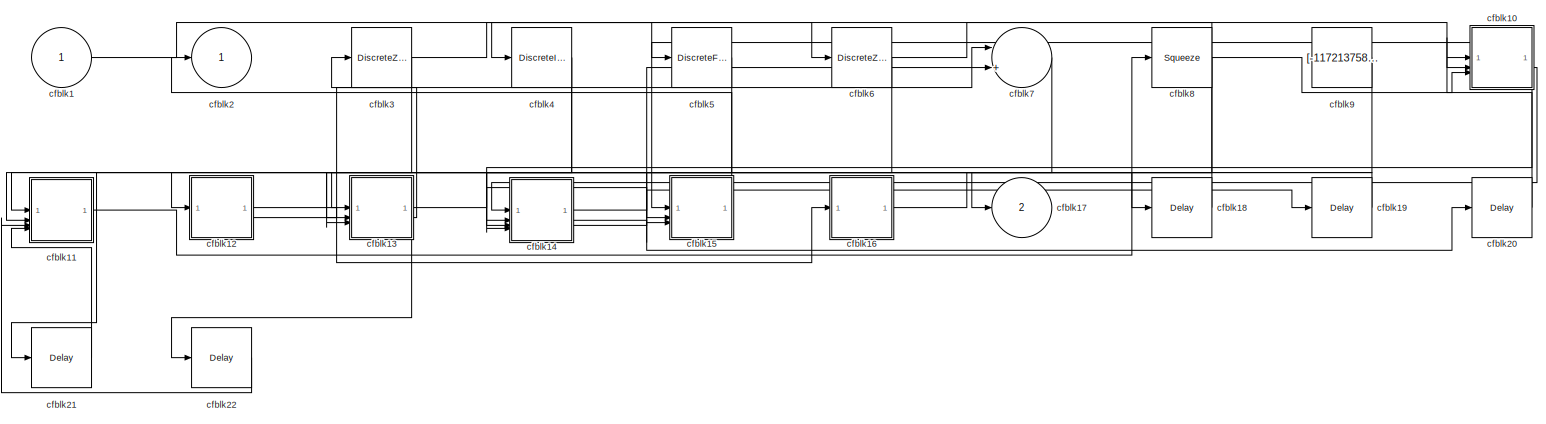
[diagram: cfblk77 - part 1/1, most of the canvas]
BLOCK [SubSystem] cfblk77
BLOCK [Inport] cfblk77/cfblk1
BLOCK [SubSystem] cfblk77/cfblk10
BLOCK [Inport] cfblk77/cfblk10/cfblk1
BLOCK [Inport] cfblk77/cfblk10/cfblk10
  Port = 3
BLOCK [Outport] cfblk77/cfblk10/cfblk11
  Port = 2
BLOCK [Outport] cfblk77/cfblk10/cfblk12
  Port = 3
BLOCK [Outport] cfblk77/cfblk10/cfblk2
BLOCK [Reference] cfblk77/cfblk10/cfblk3  REF=simulink/Math
Operations/MinMax
Running
Resettable
  SourceBlock = simulink/Math\nOperations/MinMax\nRunning\nResettable
  SourceType = MinMax Running Resettable
BLOCK [Reshape] cfblk77/cfblk10/cfblk4
BLOCK [Bias] cfblk77/cfblk10/cfblk5
  Bias = [-235685665.067690]
  SaturateOnIntegerOverflow = off
BLOCK [UnaryMinus] cfblk77/cfblk10/cfblk6
BLOCK [ComplexToRealImag] cfblk77/cfblk10/cfblk7
BLOCK [Constant] cfblk77/cfblk10/cfblk8
  SampleTime = 1
  Value = [-2132952.706481]
BLOCK [Inport] cfblk77/cfblk10/cfblk9
  Port = 2
BLOCK [SubSystem] cfblk77/cfblk11
BLOCK [Inport] cfblk77/cfblk11/cfblk1
BLOCK [Sum] cfblk77/cfblk11/cfblk10
  IconShape = rectangular
  Inputs = +
BLOCK [ComplexToMagnitudeAngle] cfblk77/cfblk11/cfblk11
BLOCK [Constant] cfblk77/cfblk11/cfblk12
  SampleTime = 1
  Value = [63647700.715257]
BLOCK [Constant] cfblk77/cfblk11/cfblk13
  SampleTime = 1
  Value = [382105041.323316]
BLOCK [Constant] cfblk77/cfblk11/cfblk14
  SampleTime = 1
  Value = [-821330347.687713]
BLOCK [Inport] cfblk77/cfblk11/cfblk15
  Port = 2
BLOCK [Inport] cfblk77/cfblk11/cfblk16
  Port = 3
BLOCK [Inport] cfblk77/cfblk11/cfblk17
  Port = 4
BLOCK [Delay] cfblk77/cfblk11/cfblk18
  InputPortMap = u0
  SampleTime = 1
BLOCK [Outport] cfblk77/cfblk11/cfblk2
BLOCK [Reference] cfblk77/cfblk11/cfblk3  REF=simulink/Discrete/Transfer Fcn
Lead or Lag
  SourceBlock = simulink/Discrete/Transfer Fcn\nLead or Lag
  SourceType = Lead or Lag Compensator
BLOCK [DiscreteIntegrator] cfblk77/cfblk11/cfblk4
  ICPrevOutput = DiscIntNeverNeededParam
  ICPrevScaledInput = DiscIntNeverNeededParam
  InitialConditionSetting = Auto
BLOCK [PropagationDelay] cfblk77/cfblk11/cfblk5
  SampleTime = 1
BLOCK [Delay] cfblk77/cfblk11/cfblk6
  InputPortMap = u0,e6
  SampleTime = 1
  ShowEnablePort = on
BLOCK [Reference] cfblk77/cfblk11/cfblk7  REF=simulink/Discrete/Transfer Fcn
Real Zero
  SourceBlock = simulink/Discrete/Transfer Fcn\nReal Zero
  SourceType = Transfer Fcn Real Zero
BLOCK [Bias] cfblk77/cfblk11/cfblk8
  Bias = [-220785580.763006]
  SaturateOnIntegerOverflow = off
BLOCK [Assignment] cfblk77/cfblk11/cfblk9
  DiagnosticForDimensions = Warning
  IndexOptions = Index vector (dialog)
  Indices = 1
  OutputSizes = 1
BLOCK [SubSystem] cfblk77/cfblk12
BLOCK [Inport] cfblk77/cfblk12/cfblk1
BLOCK [Outport] cfblk77/cfblk12/cfblk2
BLOCK [Reference] cfblk77/cfblk12/cfblk3  REF=simulink/Discrete/Transfer Fcn
First Order
  SourceBlock = simulink/Discrete/Transfer Fcn\nFirst Order
  SourceType = First Order Transfer Fcn
BLOCK [Sum] cfblk77/cfblk12/cfblk4
  Inputs = |++
BLOCK [Squeeze] cfblk77/cfblk12/cfblk5
BLOCK [Bias] cfblk77/cfblk12/cfblk6
  Bias = [964325429.859584]
  SaturateOnIntegerOverflow = off
BLOCK [Trigonometry] cfblk77/cfblk12/cfblk7
BLOCK [Outport] cfblk77/cfblk12/cfblk8
  Port = 2
BLOCK [Delay] cfblk77/cfblk12/cfblk9
  InputPortMap = u0
  SampleTime = 1
BLOCK [SubSystem] cfblk77/cfblk13
BLOCK [Inport] cfblk77/cfblk13/cfblk1
BLOCK [Outport] cfblk77/cfblk13/cfblk2
BLOCK [Reference] cfblk77/cfblk13/cfblk3  REF=simulink/Discrete/Transfer Fcn
Lead or Lag
  SourceBlock = simulink/Discrete/Transfer Fcn\nLead or Lag
  SourceType = Lead or Lag Compensator
BLOCK [PermuteDimensions] cfblk77/cfblk13/cfblk4
BLOCK [Constant] cfblk77/cfblk13/cfblk5
  SampleTime = 1
  Value = [-198194382.599474]
BLOCK [Inport] cfblk77/cfblk13/cfblk6
  Port = 2
BLOCK [Inport] cfblk77/cfblk13/cfblk7
  Port = 3
BLOCK [Outport] cfblk77/cfblk13/cfblk8
  Port = 2
BLOCK [SubSystem] cfblk77/cfblk14
BLOCK [Inport] cfblk77/cfblk14/cfblk1
BLOCK [Constant] cfblk77/cfblk14/cfblk10
  SampleTime = 1
  Value = [-239421555.637523]
BLOCK [Inport] cfblk77/cfblk14/cfblk11
  Port = 2
BLOCK [Inport] cfblk77/cfblk14/cfblk12
  Port = 3
BLOCK [Inport] cfblk77/cfblk14/cfblk13
  Port = 4
BLOCK [Outport] cfblk77/cfblk14/cfblk14
  Port = 2
BLOCK [Outport] cfblk77/cfblk14/cfblk15
  Port = 3
BLOCK [Outport] cfblk77/cfblk14/cfblk2
BLOCK [Reference] cfblk77/cfblk14/cfblk3  REF=simulink/Discrete/Transfer Fcn
Real Zero
  SourceBlock = simulink/Discrete/Transfer Fcn\nReal Zero
  SourceType = Transfer Fcn Real Zero
BLOCK [Reference] cfblk77/cfblk14/cfblk4  REF=simulink/Discrete/Transfer Fcn
Real Zero
  SourceBlock = simulink/Discrete/Transfer Fcn\nReal Zero
  SourceType = Transfer Fcn Real Zero
BLOCK [Reference] cfblk77/cfblk14/cfblk5  REF=simulink/Math
Operations/Slider
Gain
  SourceBlock = simulink/Math\nOperations/Slider\nGain
  SourceType = Slider Gain
BLOCK [Sqrt] cfblk77/cfblk14/cfblk6
  AlgorithmType = Newton-Raphson
  Operator = rSqrt
BLOCK [Squeeze] cfblk77/cfblk14/cfblk7
BLOCK [MinMax] cfblk77/cfblk14/cfblk8
  Inputs = 2
BLOCK [Bias] cfblk77/cfblk14/cfblk9
  Bias = [980985977.291214]
  SaturateOnIntegerOverflow = off
BLOCK [SubSystem] cfblk77/cfblk15
BLOCK [Inport] cfblk77/cfblk15/cfblk1
BLOCK [ComplexToMagnitudeAngle] cfblk77/cfblk15/cfblk10
BLOCK [ComplexToRealImag] cfblk77/cfblk15/cfblk11
BLOCK [Signum] cfblk77/cfblk15/cfblk12
BLOCK [Inport] cfblk77/cfblk15/cfblk13
  Port = 2
BLOCK [Inport] cfblk77/cfblk15/cfblk14
  Port = 3
BLOCK [Outport] cfblk77/cfblk15/cfblk2
BLOCK [DiscreteIntegrator] cfblk77/cfblk15/cfblk3
  ICPrevOutput = DiscIntNeverNeededParam
  ICPrevScaledInput = DiscIntNeverNeededParam
  InitialConditionSetting = Auto
BLOCK [Delay] cfblk77/cfblk15/cfblk4
  InputPortMap = u0,e6
  SampleTime = 1
  ShowEnablePort = on
BLOCK [DiscreteStateSpace] cfblk77/cfblk15/cfblk5
BLOCK [Sqrt] cfblk77/cfblk15/cfblk6
  AlgorithmType = Newton-Raphson
  Operator = rSqrt
BLOCK [Abs] cfblk77/cfblk15/cfblk7
  SaturateOnIntegerOverflow = off
BLOCK [ComplexToMagnitudeAngle] cfblk77/cfblk15/cfblk8
BLOCK [Sum] cfblk77/cfblk15/cfblk9
  IconShape = rectangular
  Inputs = +
BLOCK [SubSystem] cfblk77/cfblk16
BLOCK [Inport] cfblk77/cfblk16/cfblk1
BLOCK [Delay] cfblk77/cfblk16/cfblk10
  InputPortMap = u0
  SampleTime = 1
BLOCK [Delay] cfblk77/cfblk16/cfblk11
  InputPortMap = u0
  SampleTime = 1
BLOCK [Outport] cfblk77/cfblk16/cfblk2
BLOCK [DiscreteStateSpace] cfblk77/cfblk16/cfblk3
BLOCK [Reference] cfblk77/cfblk16/cfblk4  REF=simulink/Discrete/Transfer Fcn
Real Zero
  SourceBlock = simulink/Discrete/Transfer Fcn\nReal Zero
  SourceType = Transfer Fcn Real Zero
BLOCK [PropagationDelay] cfblk77/cfblk16/cfblk5
  SampleTime = 1
BLOCK [UnaryMinus] cfblk77/cfblk16/cfblk6
BLOCK [Sum] cfblk77/cfblk16/cfblk7
  Inputs = |++
BLOCK [Product] cfblk77/cfblk16/cfblk8
  Inputs = **
BLOCK [Constant] cfblk77/cfblk16/cfblk9
  SampleTime = 1
  Value = [159181204.743407]
BLOCK [Outport] cfblk77/cfblk17
  Port = 2
BLOCK [Delay] cfblk77/cfblk18
  InputPortMap = u0
  SampleTime = 1
BLOCK [Delay] cfblk77/cfblk19
  InputPortMap = u0
  SampleTime = 1
BLOCK [Outport] cfblk77/cfblk2
BLOCK [Delay] cfblk77/cfblk20
  InputPortMap = u0
  SampleTime = 1
BLOCK [Delay] cfblk77/cfblk21
  InputPortMap = u0
  SampleTime = 1
BLOCK [Delay] cfblk77/cfblk22
  InputPortMap = u0
  SampleTime = 1
BLOCK [DiscreteZeroPole] cfblk77/cfblk3
  Gain = 1
  Poles = [0 0.5]
BLOCK [DiscreteIntegrator] cfblk77/cfblk4
  ICPrevOutput = DiscIntNeverNeededParam
  ICPrevScaledInput = DiscIntNeverNeededParam
  InitialConditionSetting = Auto
BLOCK [DiscreteFir] cfblk77/cfblk5
  InputPortMap = u0
  OutputPortMap = o0
  SampleTime = 1
BLOCK [DiscreteZeroPole] cfblk77/cfblk6
  Gain = 1
  Poles = [0 0.5]
BLOCK [Sum] cfblk77/cfblk7
  Inputs = |++
BLOCK [Squeeze] cfblk77/cfblk8
BLOCK [Constant] cfblk77/cfblk9
  SampleTime = 1
  Value = [-117213758.113630]
BLOCK [SubSystem] cfblk78
BLOCK [Inport] cfblk78/cfblk1
BLOCK [SubSystem] cfblk78/cfblk10
BLOCK [Inport] cfblk78/cfblk10/cfblk1
BLOCK [Inport] cfblk78/cfblk10/cfblk10
  Port = 3
BLOCK [Outport] cfblk78/cfblk10/cfblk11
  Port = 2
BLOCK [Delay] cfblk78/cfblk10/cfblk12
  InputPortMap = u0
  SampleTime = 1
BLOCK [Delay] cfblk78/cfblk10/cfblk13
  InputPortMap = u0
  SampleTime = 1
BLOCK [Outport] cfblk78/cfblk10/cfblk2
BLOCK [Reference] cfblk78/cfblk10/cfblk3  REF=slpidlib/PID Controller (2DOF)
  LibrarySourceBlock = simulink/Discrete/Discrete PID Controller (2DOF)
  SourceBlock = slpidlib/PID Controller (2DOF)
  SourceType = PID 2dof
BLOCK [Bias] cfblk78/cfblk10/cfblk4
  Bias = [-177786198.160448]
  SaturateOnIntegerOverflow = off
BLOCK [Math] cfblk78/cfblk10/cfblk5
  Operator = pow
BLOCK [Assignment] cfblk78/cfblk10/cfblk6
  DiagnosticForDimensions = Warning
  IndexOptions = Index vector (dialog)
  Indices = 1
  OutputSizes = 1
BLOCK [ComplexToRealImag] cfblk78/cfblk10/cfblk7
BLOCK [Product] cfblk78/cfblk10/cfblk8
BLOCK [Inport] cfblk78/cfblk10/cfblk9
  Port = 2
BLOCK [SubSystem] cfblk78/cfblk11
BLOCK [Inport] cfblk78/cfblk11/cfblk1
BLOCK [Outport] cfblk78/cfblk11/cfblk2
BLOCK [UnitDelay] cfblk78/cfblk11/cfblk3
  HasFrameUpgradeWarning = on
BLOCK [ComplexToMagnitudeAngle] cfblk78/cfblk11/cfblk4
BLOCK [PermuteDimensions] cfblk78/cfblk11/cfblk5
BLOCK [Constant] cfblk78/cfblk11/cfblk6
  SampleTime = 1
  Value = [483289128.745621]
BLOCK [Constant] cfblk78/cfblk11/cfblk7
  SampleTime = 1
  Value = [914901080.969137]
BLOCK [Constant] cfblk78/cfblk11/cfblk8
  SampleTime = 1
  Value = [-765300549.593813]
BLOCK [Inport] cfblk78/cfblk11/cfblk9
  Port = 2
BLOCK [SubSystem] cfblk78/cfblk12
BLOCK [Inport] cfblk78/cfblk12/cfblk1
BLOCK [Reshape] cfblk78/cfblk12/cfblk10
BLOCK [Inport] cfblk78/cfblk12/cfblk11
  Port = 2
BLOCK [Inport] cfblk78/cfblk12/cfblk12
  Port = 3
BLOCK [Outport] cfblk78/cfblk12/cfblk13
  Port = 2
BLOCK [Outport] cfblk78/cfblk12/cfblk14
  Port = 3
BLOCK [Outport] cfblk78/cfblk12/cfblk2
BLOCK [DiscreteStateSpace] cfblk78/cfblk12/cfblk3
BLOCK [Reference] cfblk78/cfblk12/cfblk4  REF=slpidlib/PID Controller
  LibrarySourceBlock = simulink/Discrete/Discrete PID Controller
  SourceBlock = slpidlib/PID Controller
  SourceType = PID 1dof
BLOCK [UnitDelay] cfblk78/cfblk12/cfblk5
  HasFrameUpgradeWarning = on
BLOCK [Reference] cfblk78/cfblk12/cfblk6  REF=slpidlib/PID Controller
  LibrarySourceBlock = simulink/Discrete/Discrete PID Controller
  SourceBlock = slpidlib/PID Controller
  SourceType = PID 1dof
BLOCK [Squeeze] cfblk78/cfblk12/cfblk7
BLOCK [Reference] cfblk78/cfblk12/cfblk8  REF=simulink/Math
Operations/MinMax
Running
Resettable
  SourceBlock = simulink/Math\nOperations/MinMax\nRunning\nResettable
  SourceType = MinMax Running Resettable
BLOCK [Polyval] cfblk78/cfblk12/cfblk9
  Coefs = [ +2.081618890e-019, -1.441693666e-014, +4.719686976e-010, -8.536869453e-006, +1.621573104e-001, -8.087801117e+001 ]
BLOCK [SubSystem] cfblk78/cfblk13
BLOCK [Inport] cfblk78/cfblk13/cfblk1
BLOCK [Constant] cfblk78/cfblk13/cfblk10
  SampleTime = 1
  Value = [-282175655.251996]
BLOCK [Constant] cfblk78/cfblk13/cfblk11
  SampleTime = 1
  Value = [733617748.282891]
BLOCK [Inport] cfblk78/cfblk13/cfblk12
  Port = 2
BLOCK [Outport] cfblk78/cfblk13/cfblk13
  Port = 2
BLOCK [Outport] cfblk78/cfblk13/cfblk2
BLOCK [Rounding] cfblk78/cfblk13/cfblk3
BLOCK [Abs] cfblk78/cfblk13/cfblk4
  SaturateOnIntegerOverflow = off
BLOCK [Product] cfblk78/cfblk13/cfblk5
  Inputs = *
BLOCK [Bias] cfblk78/cfblk13/cfblk6
  Bias = [-889534684.558014]
  SaturateOnIntegerOverflow = off
BLOCK [Sqrt] cfblk78/cfblk13/cfblk7
  AlgorithmType = Newton-Raphson
  Operator = rSqrt
BLOCK [Product] cfblk78/cfblk13/cfblk8
  Inputs = **
BLOCK [Constant] cfblk78/cfblk13/cfblk9
  SampleTime = 1
  Value = [971186728.411788]
BLOCK [If] cfblk78/cfblk14
  IfExpression = u1 >= 0
  SampleTime = 1
BLOCK [Inport] cfblk78/cfblk15
  Port = 2
BLOCK [Outport] cfblk78/cfblk16
  Port = 2
BLOCK [SubSystem] cfblk78/cfblk17
  TreatAsAtomicUnit = on
BLOCK [ActionPort] cfblk78/cfblk17/Action Port
  ActionPortLabel = if(u1 >= 0)
BLOCK [Inport] cfblk78/cfblk17/cfblk1
BLOCK [Outport] cfblk78/cfblk17/cfblk2
BLOCK [Delay] cfblk78/cfblk17/cfblk3
  DelayLengthSource = Input port
  InputPortMap = u0,p1
BLOCK [Sqrt] cfblk78/cfblk17/cfblk4
  AlgorithmType = Newton-Raphson
  Operator = rSqrt
BLOCK [Reference] cfblk78/cfblk17/cfblk5  REF=simulink/Math
Operations/Slider
Gain
  SourceBlock = simulink/Math\nOperations/Slider\nGain
  SourceType = Slider Gain
BLOCK [Constant] cfblk78/cfblk17/cfblk6
  SampleTime = 1
  Value = [-403915455.204533]
BLOCK [Inport] cfblk78/cfblk17/cfblk7
  Port = 2
BLOCK [Delay] cfblk78/cfblk17/cfblk8
  InputPortMap = u0
BLOCK [SubSystem] cfblk78/cfblk18
  TreatAsAtomicUnit = on
BLOCK [ActionPort] cfblk78/cfblk18/Action Port
  ActionPortLabel = else
BLOCK [Inport] cfblk78/cfblk18/cfblk1
BLOCK [Trigonometry] cfblk78/cfblk18/cfblk10
BLOCK [Constant] cfblk78/cfblk18/cfblk11
  SampleTime = 1
  Value = [-719972098.054160]
BLOCK [Inport] cfblk78/cfblk18/cfblk12
  Port = 2
BLOCK [Inport] cfblk78/cfblk18/cfblk13
  Port = 3
BLOCK [Inport] cfblk78/cfblk18/cfblk14
  Port = 4
BLOCK [Inport] cfblk78/cfblk18/cfblk15
  Port = 5
BLOCK [Outport] cfblk78/cfblk18/cfblk16
  Port = 2
BLOCK [Outport] cfblk78/cfblk18/cfblk17
  Port = 3
BLOCK [Delay] cfblk78/cfblk18/cfblk18
  InputPortMap = u0
BLOCK [Delay] cfblk78/cfblk18/cfblk19
  InputPortMap = u0
BLOCK [Outport] cfblk78/cfblk18/cfblk2
BLOCK [UnitDelay] cfblk78/cfblk18/cfblk3
  HasFrameUpgradeWarning = on
  SampleTime = -1
BLOCK [DiscreteFilter] cfblk78/cfblk18/cfblk4
  InputPortMap = u0
BLOCK [Sum] cfblk78/cfblk18/cfblk5
  Inputs = |++
BLOCK [PermuteDimensions] cfblk78/cfblk18/cfblk6
BLOCK [Sum] cfblk78/cfblk18/cfblk7
  Inputs = |++
BLOCK [ComplexToRealImag] cfblk78/cfblk18/cfblk8
BLOCK [UnaryMinus] cfblk78/cfblk18/cfblk9
BLOCK [Delay] cfblk78/cfblk19
  InputPortMap = u0
  SampleTime = 1
BLOCK [Outport] cfblk78/cfblk2
BLOCK [Delay] cfblk78/cfblk20
  InputPortMap = u0
  SampleTime = 1
BLOCK [Delay] cfblk78/cfblk21
  InputPortMap = u0
  SampleTime = 1
BLOCK [Delay] cfblk78/cfblk22
  InputPortMap = u0
  SampleTime = 1
BLOCK [PropagationDelay] cfblk78/cfblk3
  SampleTime = 1
BLOCK [UnitDelay] cfblk78/cfblk4
  HasFrameUpgradeWarning = on
BLOCK [DiscreteZeroPole] cfblk78/cfblk5
  Gain = 1
  Poles = [0 0.5]
BLOCK [Reference] cfblk78/cfblk6  REF=simulink/Math
Operations/Slider
Gain
  SourceBlock = simulink/Math\nOperations/Slider\nGain
  SourceType = Slider Gain
BLOCK [Product] cfblk78/cfblk7
  Inputs = **
BLOCK [Product] cfblk78/cfblk8
BLOCK [Constant] cfblk78/cfblk9
  SampleTime = 1
  Value = [805979674.748431]
BLOCK [If] cfblk79
  IfExpression = u1 >= 0
  SampleTime = 1
BLOCK [DiscreteTransferFcn] cfblk8
  InputPortMap = u0
  SampleTime = 1
BLOCK [SubSystem] cfblk80
  TreatAsAtomicUnit = on
BLOCK [ActionPort] cfblk80/Action Port
  ActionPortLabel = if(u1 >= 0)
BLOCK [Inport] cfblk80/cfblk1
BLOCK [Delay] cfblk80/cfblk10
  InputPortMap = u0
BLOCK [Delay] cfblk80/cfblk11
  InputPortMap = u0
BLOCK [Delay] cfblk80/cfblk12
  InputPortMap = u0
BLOCK [Outport] cfblk80/cfblk2
BLOCK [Reference] cfblk80/cfblk3  REF=slpidlib/PID Controller (2DOF)
  LibrarySourceBlock = simulink/Discrete/Discrete PID Controller (2DOF)
  SourceBlock = slpidlib/PID Controller (2DOF)
  SourceType = PID 2dof
BLOCK [Delay] cfblk80/cfblk4
  DelayLengthSource = Input port
  InputPortMap = u0,p1
BLOCK [Sum] cfblk80/cfblk5
  IconShape = rectangular
  Inputs = +-
BLOCK [Constant] cfblk80/cfblk6
  SampleTime = 1
  Value = [-761540021.039339]
BLOCK [SubSystem] cfblk80/cfblk7
BLOCK [Inport] cfblk80/cfblk7/cfblk1
BLOCK [Outport] cfblk80/cfblk7/cfblk2
BLOCK [Delay] cfblk80/cfblk7/cfblk3
  DelayLengthSource = Input port
  InputPortMap = u0,p1
BLOCK [Delay] cfblk80/cfblk7/cfblk4
  InputPortMap = u0
BLOCK [Delay] cfblk80/cfblk7/cfblk5
  InputPortMap = u0,e6
  ShowEnablePort = on
BLOCK [Bias] cfblk80/cfblk7/cfblk6
  Bias = [572873345.648038]
  SaturateOnIntegerOverflow = off
BLOCK [Product] cfblk80/cfblk7/cfblk7
BLOCK [Delay] cfblk80/cfblk7/cfblk8
  InputPortMap = u0
BLOCK [Delay] cfblk80/cfblk7/cfblk9
  InputPortMap = u0
BLOCK [SubSystem] cfblk80/cfblk8
BLOCK [Inport] cfblk80/cfblk8/cfblk1
BLOCK [Abs] cfblk80/cfblk8/cfblk10
  SaturateOnIntegerOverflow = off
BLOCK [Product] cfblk80/cfblk8/cfblk11
  Inputs = **
BLOCK [Constant] cfblk80/cfblk8/cfblk12
  SampleTime = 1
  Value = [730278207.673215]
BLOCK [Inport] cfblk80/cfblk8/cfblk13
  Port = 2
BLOCK [Inport] cfblk80/cfblk8/cfblk14
  Port = 3
BLOCK [Inport] cfblk80/cfblk8/cfblk15
  Port = 4
BLOCK [Inport] cfblk80/cfblk8/cfblk16
  Port = 5
BLOCK [Delay] cfblk80/cfblk8/cfblk17
  InputPortMap = u0
BLOCK [Outport] cfblk80/cfblk8/cfblk2
BLOCK [DiscreteIntegrator] cfblk80/cfblk8/cfblk3
  ICPrevOutput = DiscIntNeverNeededParam
  ICPrevScaledInput = DiscIntNeverNeededParam
  InitialConditionSetting = Auto
  SampleTime = -1
BLOCK [Reference] cfblk80/cfblk8/cfblk4  REF=simulink/Discrete/Transfer Fcn
Lead or Lag
  SourceBlock = simulink/Discrete/Transfer Fcn\nLead or Lag
  SourceType = Lead or Lag Compensator
BLOCK [DiscreteFir] cfblk80/cfblk8/cfblk5
  InputPortMap = u0
  OutputPortMap = o0
BLOCK [Sum] cfblk80/cfblk8/cfblk6
  Inputs = |++
BLOCK [Sin] cfblk80/cfblk8/cfblk7
  SampleTime = 0
  TimeSource = Use external signal
BLOCK [Bias] cfblk80/cfblk8/cfblk8
  Bias = [826841932.366504]
  SaturateOnIntegerOverflow = off
BLOCK [Product] cfblk80/cfblk8/cfblk9
  Inputs = *
BLOCK [SubSystem] cfblk80/cfblk9
BLOCK [Inport] cfblk80/cfblk9/cfblk1
BLOCK [Inport] cfblk80/cfblk9/cfblk10
  Port = 2
BLOCK [Inport] cfblk80/cfblk9/cfblk11
  Port = 3
BLOCK [Outport] cfblk80/cfblk9/cfblk12
  Port = 2
BLOCK [Outport] cfblk80/cfblk9/cfblk13
  Port = 3
BLOCK [Outport] cfblk80/cfblk9/cfblk2
BLOCK [Reference] cfblk80/cfblk9/cfblk3  REF=simulink/Discrete/Transfer Fcn
First Order
  SourceBlock = simulink/Discrete/Transfer Fcn\nFirst Order
  SourceType = First Order Transfer Fcn
BLOCK [Delay] cfblk80/cfblk9/cfblk4
  DelayLengthSource = Input port
  InputPortMap = u0,p1
BLOCK [Reference] cfblk80/cfblk9/cfblk5  REF=simulink/Discrete/Transfer Fcn
First Order
  SourceBlock = simulink/Discrete/Transfer Fcn\nFirst Order
  SourceType = First Order Transfer Fcn
BLOCK [Bias] cfblk80/cfblk9/cfblk6
  Bias = [322193844.018205]
  SaturateOnIntegerOverflow = off
BLOCK [Reference] cfblk80/cfblk9/cfblk7  REF=simulink/Math
Operations/Slider
Gain
  SourceBlock = simulink/Math\nOperations/Slider\nGain
  SourceType = Slider Gain
BLOCK [Constant] cfblk80/cfblk9/cfblk8
  SampleTime = 1
  Value = [-408710130.642607]
BLOCK [Constant] cfblk80/cfblk9/cfblk9
  SampleTime = 1
  Value = [953859884.412681]
BLOCK [SubSystem] cfblk81
  TreatAsAtomicUnit = on
BLOCK [ActionPort] cfblk81/Action Port
  ActionPortLabel = else
BLOCK [Inport] cfblk81/cfblk1
BLOCK [Outport] cfblk81/cfblk2
BLOCK [DiscreteFir] cfblk81/cfblk3
  InputPortMap = u0
  OutputPortMap = o0
BLOCK [Polyval] cfblk81/cfblk4
  Coefs = [ +2.081618890e-019, -1.441693666e-014, +4.719686976e-010, -8.536869453e-006, +1.621573104e-001, -8.087801117e+001 ]
BLOCK [Constant] cfblk81/cfblk5
  SampleTime = 1
  Value = [-833293648.035745]
BLOCK [SubSystem] cfblk81/cfblk6
BLOCK [Inport] cfblk81/cfblk6/cfblk1
BLOCK [Sum] cfblk81/cfblk6/cfblk10
  Inputs = |++
BLOCK [Signum] cfblk81/cfblk6/cfblk11
BLOCK [Inport] cfblk81/cfblk6/cfblk12
  Port = 2
BLOCK [Outport] cfblk81/cfblk6/cfblk13
  Port = 2
BLOCK [Delay] cfblk81/cfblk6/cfblk14
  InputPortMap = u0
BLOCK [Delay] cfblk81/cfblk6/cfblk15
  InputPortMap = u0
BLOCK [Delay] cfblk81/cfblk6/cfblk16
  InputPortMap = u0
BLOCK [Outport] cfblk81/cfblk6/cfblk2
BLOCK [Delay] cfblk81/cfblk6/cfblk3
  DelayLengthSource = Input port
  InputPortMap = u0,p1
BLOCK [DiscreteStateSpace] cfblk81/cfblk6/cfblk4
  SampleTime = -1
BLOCK [DotProduct] cfblk81/cfblk6/cfblk5
  OutDataTypeStr = Inherit: Inherit via internal rule
BLOCK [Product] cfblk81/cfblk6/cfblk6
  Inputs = **
BLOCK [Sum] cfblk81/cfblk6/cfblk7
  IconShape = rectangular
  Inputs = +
BLOCK [UnaryMinus] cfblk81/cfblk6/cfblk8
BLOCK [Math] cfblk81/cfblk6/cfblk9
  Operator = log10
BLOCK [SubSystem] cfblk81/cfblk7
BLOCK [Inport] cfblk81/cfblk7/cfblk1
BLOCK [Outport] cfblk81/cfblk7/cfblk2
BLOCK [Reference] cfblk81/cfblk7/cfblk3  REF=simulink/Discrete/Transfer Fcn
Real Zero
  SourceBlock = simulink/Discrete/Transfer Fcn\nReal Zero
  SourceType = Transfer Fcn Real Zero
BLOCK [Reference] cfblk81/cfblk7/cfblk4  REF=slpidlib/PID Controller (2DOF)
  LibrarySourceBlock = simulink/Discrete/Discrete PID Controller (2DOF)
  SourceBlock = slpidlib/PID Controller (2DOF)
  SourceType = PID 2dof
BLOCK [Constant] cfblk81/cfblk7/cfblk5
  SampleTime = 1
  Value = [-267888098.011741]
BLOCK [Constant] cfblk81/cfblk7/cfblk6
  SampleTime = 1
  Value = [-336798978.763526]
BLOCK [Constant] cfblk81/cfblk7/cfblk7
  SampleTime = 1
  Value = [-996419123.102323]
BLOCK [Inport] cfblk81/cfblk7/cfblk8
  Port = 2
BLOCK [Outport] cfblk81/cfblk7/cfblk9
  Port = 2
BLOCK [Inport] cfblk81/cfblk8
  Port = 2
BLOCK [Inport] cfblk81/cfblk9
  Port = 3
BLOCK [Delay] cfblk82
  InputPortMap = u0
  SampleTime = 1
BLOCK [Delay] cfblk83
  InputPortMap = u0
  SampleTime = 1
BLOCK [Delay] cfblk84
  InputPortMap = u0
  SampleTime = 1
BLOCK [Delay] cfblk85
  InputPortMap = u0
  SampleTime = 1
BLOCK [Delay] cfblk86
  InputPortMap = u0
  SampleTime = 1
BLOCK [Delay] cfblk87
  InputPortMap = u0
  SampleTime = 1
BLOCK [Delay] cfblk88
  InputPortMap = u0
  SampleTime = 1
BLOCK [Delay] cfblk89
  InputPortMap = u0
  SampleTime = 1
BLOCK [Reference] cfblk9  REF=simulink/Discrete/Transfer Fcn
Lead or Lag
  SourceBlock = simulink/Discrete/Transfer Fcn\nLead or Lag
  SourceType = Lead or Lag Compensator
BLOCK [Delay] cfblk90
  InputPortMap = u0
  SampleTime = 1
BLOCK [Delay] cfblk91
  InputPortMap = u0
  SampleTime = 1
BLOCK [Delay] cfblk92
  InputPortMap = u0
  SampleTime = 1
BLOCK [Delay] cfblk93
  InputPortMap = u0
  SampleTime = 1
BLOCK [Delay] cfblk94
  InputPortMap = u0
  SampleTime = 1
BLOCK [Delay] cfblk95
  InputPortMap = u0
  SampleTime = 1
BLOCK [DataTypeConversion] cfblk96
  RndMeth = Floor
  SaturateOnIntegerOverflow = off
LINE cfblk10:1 -> cfblk40:1
LINE cfblk11:1 -> cfblk73:2
NET cfblk12:1 -> cfblk62:3, cfblk81:1
NET cfblk13:1 -> cfblk18:2, cfblk75:1
LINE cfblk14:1 -> cfblk66:3
NET cfblk15:1 -> cfblk61:1, cfblk64:4
LINE cfblk16:1 -> cfblk2:1
LINE cfblk17:1 -> cfblk30:1
LINE cfblk18:1 -> cfblk73:1
LINE cfblk19:1 -> cfblk76:1
LINE cfblk1:1 -> cfblk26:1
NET cfblk20:1 -> cfblk11:1, cfblk68:2
NET cfblk21:1 -> cfblk86:1, cfblk87:1
NET cfblk22:1 -> cfblk10:1, cfblk67:1, cfblk90:1
LINE cfblk23:1 -> cfblk93:1
LINE cfblk24:1 -> cfblk69:1
NET cfblk25:1 -> cfblk17:2, cfblk72:2
LINE cfblk26:1 -> cfblk46:1
NET cfblk27:1 -> cfblk39:1, cfblk75:2, cfblk76:3
LINE cfblk28:1 -> cfblk65:3
LINE cfblk29:1 -> cfblk8:1
LINE cfblk2:1 -> cfblk42:1
LINE cfblk3:1 -> cfblk27:1
LINE cfblk48:1 -> cfblk16:1
NET cfblk49:1 -> cfblk35:1, cfblk60:2
LINE cfblk4:1 -> cfblk17:1
LINE cfblk50:1 -> cfblk70:1
LINE cfblk51:1 -> cfblk79:1
LINE cfblk52:1 -> cfblk96:1
LINE cfblk53:1 -> cfblk76:2
NET cfblk54:1 -> cfblk14:1, cfblk64:3
LINE cfblk55:1 -> cfblk18:1
LINE cfblk56:1 -> cfblk72:1
LINE cfblk57:1 -> cfblk4:1
NET cfblk58:1 -> cfblk13:1, cfblk68:3, cfblk71:2
LINE cfblk59:1 -> cfblk37:1
NET cfblk5:1 -> cfblk29:1, cfblk73:3, cfblk95:1
LINE cfblk60/cfblk10/cfblk10:1 -> cfblk60/cfblk10/cfblk4:1
LINE cfblk60/cfblk10/cfblk10:2 -> cfblk60/cfblk10/cfblk5:1
LINE cfblk60/cfblk10/cfblk11:1 -> cfblk60/cfblk10/cfblk9:2
LINE cfblk60/cfblk10/cfblk13:1 -> cfblk60/cfblk10/cfblk3:1
LINE cfblk60/cfblk10/cfblk14:1 -> cfblk60/cfblk10/cfblk10:1
LINE cfblk60/cfblk10/cfblk15:1 -> cfblk60/cfblk10/cfblk16:1
LINE cfblk60/cfblk10/cfblk1:1 -> cfblk60/cfblk10/cfblk8:2
LINE cfblk60/cfblk10/cfblk4:1 -> cfblk60/cfblk10/cfblk17:1
LINE cfblk60/cfblk10/cfblk5:1 -> cfblk60/cfblk10/cfblk6:1
LINE cfblk60/cfblk10/cfblk6:1 -> cfblk60/cfblk10/cfblk7:1
LINE cfblk60/cfblk10/cfblk7:1 -> cfblk60/cfblk10/cfblk8:1
LINE cfblk60/cfblk10/cfblk7:2 -> cfblk60/cfblk10/cfblk11:1
LINE cfblk60/cfblk10/cfblk8:1 -> cfblk60/cfblk10/cfblk9:1
LINE cfblk60/cfblk10/cfblk9:1 -> cfblk60/cfblk10/cfblk2:1
LINE cfblk60/cfblk10:1 -> cfblk60/cfblk3:1
LINE cfblk60/cfblk10:2 -> cfblk60/cfblk11:2
NET cfblk60/cfblk10:3 -> cfblk60/cfblk11:5, cfblk60/cfblk7:2
LINE cfblk60/cfblk11/cfblk10:1 -> cfblk60/cfblk11/cfblk6:1
LINE cfblk60/cfblk11/cfblk11:1 -> cfblk60/cfblk11/cfblk7:2
LINE cfblk60/cfblk11/cfblk1:1 -> cfblk60/cfblk11/cfblk3:1
LINE cfblk60/cfblk11/cfblk3:1 -> cfblk60/cfblk11/cfblk12:1
LINE cfblk60/cfblk11/cfblk4:1 -> cfblk60/cfblk11/cfblk6:2
LINE cfblk60/cfblk11/cfblk5:1 -> cfblk60/cfblk11/cfblk2:1
LINE cfblk60/cfblk11/cfblk6:1 -> cfblk60/cfblk11/cfblk5:1
LINE cfblk60/cfblk11/cfblk7:1 -> cfblk60/cfblk11/cfblk4:1
LINE cfblk60/cfblk11/cfblk8:1 -> cfblk60/cfblk11/cfblk7:1
LINE cfblk60/cfblk11:1 -> cfblk60/cfblk16:1
NET cfblk60/cfblk11:2 -> cfblk60/cfblk5:1, cfblk60/cfblk6:3
LINE cfblk60/cfblk12:1 -> cfblk60/cfblk8:2
NET cfblk60/cfblk13:1 -> cfblk60/cfblk2:1, cfblk60/cfblk6:4, cfblk60/cfblk8:3
LINE cfblk60/cfblk15:1 -> cfblk60/cfblk10:1
LINE cfblk60/cfblk16:1 -> cfblk60/cfblk10:4
LINE cfblk60/cfblk17:1 -> cfblk60/cfblk10:2
LINE cfblk60/cfblk18:1 -> cfblk60/cfblk11:4
NET cfblk60/cfblk1:1 -> cfblk60/cfblk10:3, cfblk60/cfblk11:3, cfblk60/cfblk9:1
NET cfblk60/cfblk3:1 -> cfblk60/cfblk6:5, cfblk60/cfblk8:1
LINE cfblk60/cfblk4:1 -> cfblk60/cfblk6:1
NET cfblk60/cfblk4:2 -> cfblk60/cfblk6:2, cfblk60/cfblk6:7
NET cfblk60/cfblk5:1 -> cfblk60/cfblk7:1, cfblk60/cfblk9:2
LINE cfblk60/cfblk6/cfblk10:1 -> cfblk60/cfblk6/cfblk18:1
LINE cfblk60/cfblk6/cfblk11:1 -> cfblk60/cfblk6/cfblk2:1
LINE cfblk60/cfblk6/cfblk12:1 -> cfblk60/cfblk6/cfblk11:1
LINE cfblk60/cfblk6/cfblk14:1 -> cfblk60/cfblk6/cfblk9:1
LINE cfblk60/cfblk6/cfblk15:1 -> cfblk60/cfblk6/cfblk3:1
LINE cfblk60/cfblk6/cfblk16:1 -> cfblk60/cfblk6/cfblk8:1
LINE cfblk60/cfblk6/cfblk17:1 -> cfblk60/cfblk6/cfblk6:1
LINE cfblk60/cfblk6/cfblk18:1 -> cfblk60/cfblk6/cfblk5:1
LINE cfblk60/cfblk6/cfblk1:1 -> cfblk60/cfblk6/cfblk7:1
LINE cfblk60/cfblk6/cfblk3:1 -> cfblk60/cfblk6/cfblk4:1
LINE cfblk60/cfblk6/cfblk4:1 -> cfblk60/cfblk6/cfblk7:2
LINE cfblk60/cfblk6/cfblk5:1 -> cfblk60/cfblk6/cfblk10:1
LINE cfblk60/cfblk6/cfblk6:1 -> cfblk60/cfblk6/cfblk10:2
LINE cfblk60/cfblk6/cfblk7:1 -> cfblk60/cfblk6/cfblk9:2
LINE cfblk60/cfblk6/cfblk8:1 -> cfblk60/cfblk6/cfblk3:2
LINE cfblk60/cfblk6:1 -> cfblk60/cfblk17:1
LINE cfblk60/cfblk7/cfblk10:1 -> cfblk60/cfblk7/cfblk6:2
LINE cfblk60/cfblk7/cfblk1:1 -> cfblk60/cfblk7/cfblk6:1
LINE cfblk60/cfblk7/cfblk3:1 -> cfblk60/cfblk7/cfblk8:1
LINE cfblk60/cfblk7/cfblk4:1 -> cfblk60/cfblk7/cfblk2:1
LINE cfblk60/cfblk7/cfblk5:1 -> cfblk60/cfblk7/cfblk3:1
NET cfblk60/cfblk7/cfblk6:1 -> cfblk60/cfblk7/cfblk5:1, cfblk60/cfblk7/cfblk7:1
NET cfblk60/cfblk7/cfblk7:1 -> cfblk60/cfblk7/cfblk10:1, cfblk60/cfblk7/cfblk8:2
LINE cfblk60/cfblk7/cfblk8:1 -> cfblk60/cfblk7/cfblk4:2
LINE cfblk60/cfblk7/cfblk9:1 -> cfblk60/cfblk7/cfblk4:1
NET cfblk60/cfblk7:1 -> cfblk60/cfblk18:1, cfblk60/cfblk4:1
LINE cfblk60/cfblk8/cfblk10:1 -> cfblk60/cfblk8/cfblk4:2
LINE cfblk60/cfblk8/cfblk11:1 -> cfblk60/cfblk8/cfblk12:1
LINE cfblk60/cfblk8/cfblk12:1 -> cfblk60/cfblk8/cfblk9:1
LINE cfblk60/cfblk8/cfblk13:1 -> cfblk60/cfblk8/cfblk8:1
LINE cfblk60/cfblk8/cfblk14:1 -> cfblk60/cfblk8/cfblk2:1
LINE cfblk60/cfblk8/cfblk15:1 -> cfblk60/cfblk8/cfblk10:1
LINE cfblk60/cfblk8/cfblk1:1 -> cfblk60/cfblk8/cfblk16:1
LINE cfblk60/cfblk8/cfblk3:1 -> cfblk60/cfblk8/cfblk7:1
LINE cfblk60/cfblk8/cfblk5:1 -> cfblk60/cfblk8/cfblk3:1
LINE cfblk60/cfblk8/cfblk6:1 -> cfblk60/cfblk8/cfblk5:1
LINE cfblk60/cfblk8/cfblk7:1 -> cfblk60/cfblk8/cfblk11:1
LINE cfblk60/cfblk8/cfblk8:1 -> cfblk60/cfblk8/cfblk6:1
LINE cfblk60/cfblk8/cfblk9:1 -> cfblk60/cfblk8/cfblk4:1
LINE cfblk60/cfblk8:1 -> cfblk60/cfblk15:1
LINE cfblk60/cfblk8:2 -> cfblk60/cfblk11:1
LINE cfblk60/cfblk9/cfblk1:1 -> cfblk60/cfblk9/cfblk6:1
LINE cfblk60/cfblk9/cfblk3:1 -> cfblk60/cfblk9/cfblk5:1
LINE cfblk60/cfblk9/cfblk5:1 -> cfblk60/cfblk9/cfblk4:1
LINE cfblk60/cfblk9/cfblk6:1 -> cfblk60/cfblk9/cfblk3:1
LINE cfblk60/cfblk9/cfblk7:1 -> cfblk60/cfblk9/cfblk2:1
NET cfblk60/cfblk9:1 -> cfblk60/cfblk14:1, cfblk60/cfblk6:6
LINE cfblk60:1 -> cfblk65:2
LINE cfblk60:2 -> cfblk6:1
LINE cfblk61/cfblk10/cfblk10:1 -> cfblk61/cfblk10/cfblk13:1
LINE cfblk61/cfblk10/cfblk11:1 -> cfblk61/cfblk10/cfblk8:2
LINE cfblk61/cfblk10/cfblk12:1 -> cfblk61/cfblk10/cfblk3:1
LINE cfblk61/cfblk10/cfblk13:1 -> cfblk61/cfblk10/cfblk5:1
LINE cfblk61/cfblk10/cfblk1:1 -> cfblk61/cfblk10/cfblk2:1
LINE cfblk61/cfblk10/cfblk3:1 -> cfblk61/cfblk10/cfblk6:1
LINE cfblk61/cfblk10/cfblk4:1 -> cfblk61/cfblk10/cfblk7:1
LINE cfblk61/cfblk10/cfblk5:1 -> cfblk61/cfblk10/cfblk8:1
LINE cfblk61/cfblk10/cfblk6:1 -> cfblk61/cfblk10/cfblk9:1
LINE cfblk61/cfblk10/cfblk7:1 -> cfblk61/cfblk10/cfblk10:1
LINE cfblk61/cfblk10/cfblk8:1 -> cfblk61/cfblk10/cfblk4:1
LINE cfblk61/cfblk10/cfblk9:1 -> cfblk61/cfblk10/cfblk5:2
LINE cfblk61/cfblk10:1 -> cfblk61/cfblk4:1
LINE cfblk61/cfblk11:1 -> cfblk61/cfblk3:1
LINE cfblk61/cfblk12:1 -> cfblk61/cfblk4:2
LINE cfblk61/cfblk13:1 -> cfblk61/cfblk15:1
LINE cfblk61/cfblk16:1 -> cfblk61/cfblk10:3
LINE cfblk61/cfblk1:1 -> cfblk61/cfblk2:1
LINE cfblk61/cfblk3:1 -> cfblk61/cfblk8:1
LINE cfblk61/cfblk4:1 -> cfblk61/cfblk9:1
LINE cfblk61/cfblk5:1 -> cfblk61/cfblk16:1
LINE cfblk61/cfblk6:1 -> cfblk61/cfblk14:1
LINE cfblk61/cfblk7:1 -> cfblk61/cfblk10:1
NET cfblk61/cfblk8/cfblk10:1 -> cfblk61/cfblk8/cfblk13:1, cfblk61/cfblk8/cfblk6:1
LINE cfblk61/cfblk8/cfblk14:1 -> cfblk61/cfblk8/cfblk7:1
LINE cfblk61/cfblk8/cfblk1:1 -> cfblk61/cfblk8/cfblk4:1
LINE cfblk61/cfblk8/cfblk3:1 -> cfblk61/cfblk8/cfblk2:1
LINE cfblk61/cfblk8/cfblk3:2 -> cfblk61/cfblk8/cfblk14:1
LINE cfblk61/cfblk8/cfblk4:1 -> cfblk61/cfblk8/cfblk7:2
LINE cfblk61/cfblk8/cfblk4:2 -> cfblk61/cfblk8/cfblk12:1
LINE cfblk61/cfblk8/cfblk5:1 -> cfblk61/cfblk8/cfblk3:1
LINE cfblk61/cfblk8/cfblk6:1 -> cfblk61/cfblk8/cfblk8:1
NET cfblk61/cfblk8/cfblk7:1 -> cfblk61/cfblk8/cfblk11:1, cfblk61/cfblk8/cfblk6:2
LINE cfblk61/cfblk8/cfblk8:1 -> cfblk61/cfblk8/cfblk9:1
LINE cfblk61/cfblk8/cfblk9:1 -> cfblk61/cfblk8/cfblk5:1
LINE cfblk61/cfblk8:1 -> cfblk61/cfblk10:2
LINE cfblk61/cfblk8:2 -> cfblk61/cfblk9:2
LINE cfblk61/cfblk8:3 -> cfblk61/cfblk9:3
LINE cfblk61/cfblk8:4 -> cfblk61/cfblk6:1
LINE cfblk61/cfblk9/cfblk10:1 -> cfblk61/cfblk9/cfblk16:1
NET cfblk61/cfblk9/cfblk11:1 -> cfblk61/cfblk9/cfblk2:1, cfblk61/cfblk9/cfblk3:1
LINE cfblk61/cfblk9/cfblk12:1 -> cfblk61/cfblk9/cfblk5:2
LINE cfblk61/cfblk9/cfblk13:1 -> cfblk61/cfblk9/cfblk10:2
LINE cfblk61/cfblk9/cfblk14:1 -> cfblk61/cfblk9/cfblk11:1
LINE cfblk61/cfblk9/cfblk15:1 -> cfblk61/cfblk9/cfblk8:2
LINE cfblk61/cfblk9/cfblk16:1 -> cfblk61/cfblk9/cfblk6:1
LINE cfblk61/cfblk9/cfblk1:1 -> cfblk61/cfblk9/cfblk8:1
LINE cfblk61/cfblk9/cfblk3:1 -> cfblk61/cfblk9/cfblk9:2
LINE cfblk61/cfblk9/cfblk4:1 -> cfblk61/cfblk9/cfblk10:1
LINE cfblk61/cfblk9/cfblk5:1 -> cfblk61/cfblk9/cfblk4:1
NET cfblk61/cfblk9/cfblk6:1 -> cfblk61/cfblk9/cfblk10:3, cfblk61/cfblk9/cfblk9:1
LINE cfblk61/cfblk9/cfblk7:1 -> cfblk61/cfblk9/cfblk6:2
LINE cfblk61/cfblk9/cfblk8:1 -> cfblk61/cfblk9/cfblk7:1
LINE cfblk61/cfblk9/cfblk9:1 -> cfblk61/cfblk9/cfblk5:1
NET cfblk61/cfblk9:1 -> cfblk61/cfblk5:1, cfblk61/cfblk6:2
LINE cfblk61:1 -> cfblk65:1
LINE cfblk61:2 -> cfblk1:1
NET cfblk61:3 -> cfblk28:2, cfblk70:2
LINE cfblk62/cfblk11:1 -> cfblk62/cfblk5:2
LINE cfblk62/cfblk12:1 -> cfblk62/cfblk5:3
LINE cfblk62/cfblk1:1 -> cfblk62/cfblk2:1
LINE cfblk62/cfblk3:1 -> cfblk62/cfblk5:1
NET cfblk62/cfblk4:1 -> cfblk62/cfblk11:1, cfblk62/cfblk7:2
LINE cfblk62/cfblk5:1 -> cfblk62/cfblk4:2
NET cfblk62/cfblk6:1 -> cfblk62/cfblk3:1, cfblk62/cfblk7:3
LINE cfblk62/cfblk7/cfblk3:1 -> cfblk62/cfblk7/cfblk5:1
LINE cfblk62/cfblk7/cfblk3:2 -> cfblk62/cfblk7/cfblk10:1
LINE cfblk62/cfblk7/cfblk4:1 -> cfblk62/cfblk7/cfblk2:1
LINE cfblk62/cfblk7/cfblk7:1 -> cfblk62/cfblk7/cfblk3:1
LINE cfblk62/cfblk7/cfblk8:1 -> cfblk62/cfblk7/cfblk4:1
LINE cfblk62/cfblk7:1 -> cfblk62/cfblk12:1
NET cfblk62/cfblk8:1 -> cfblk62/cfblk4:1, cfblk62/cfblk7:1
NET cfblk62/cfblk9:1 -> cfblk62/cfblk10:1, cfblk62/cfblk7:4
LINE cfblk62:1 -> cfblk15:1
NET cfblk62:2 -> cfblk63:2, cfblk78:1
LINE cfblk63/cfblk10/cfblk1:1 -> cfblk63/cfblk10/cfblk5:1
LINE cfblk63/cfblk10/cfblk3:1 -> cfblk63/cfblk10/cfblk10:1
LINE cfblk63/cfblk10/cfblk4:1 -> cfblk63/cfblk10/cfblk11:1
LINE cfblk63/cfblk10/cfblk5:1 -> cfblk63/cfblk10/cfblk2:1
LINE cfblk63/cfblk10/cfblk6:1 -> cfblk63/cfblk10/cfblk3:1
LINE cfblk63/cfblk10/cfblk7:1 -> cfblk63/cfblk10/cfblk4:1
LINE cfblk63/cfblk10/cfblk8:1 -> cfblk63/cfblk10/cfblk6:1
LINE cfblk63/cfblk10:1 -> cfblk63/cfblk5:1
LINE cfblk63/cfblk10:2 -> cfblk63/cfblk14:3
NET cfblk63/cfblk10:3 -> cfblk63/cfblk25:1, cfblk63/cfblk29:1
LINE cfblk63/cfblk11/cfblk10:1 -> cfblk63/cfblk11/cfblk3:1
LINE cfblk63/cfblk11/cfblk12:1 -> cfblk63/cfblk11/cfblk4:1
LINE cfblk63/cfblk11/cfblk13:1 -> cfblk63/cfblk11/cfblk6:1
LINE cfblk63/cfblk11/cfblk3:1 -> cfblk63/cfblk11/cfblk5:1
LINE cfblk63/cfblk11/cfblk4:1 -> cfblk63/cfblk11/cfblk2:1
LINE cfblk63/cfblk11/cfblk5:1 -> cfblk63/cfblk11/cfblk8:1
LINE cfblk63/cfblk11/cfblk6:1 -> cfblk63/cfblk11/cfblk7:1
LINE cfblk63/cfblk11/cfblk7:1 -> cfblk63/cfblk11/cfblk13:1
LINE cfblk63/cfblk11:1 -> cfblk63/cfblk9:2
LINE cfblk63/cfblk12/cfblk1:1 -> cfblk63/cfblk12/cfblk7:1
LINE cfblk63/cfblk12/cfblk3:1 -> cfblk63/cfblk12/cfblk8:1
LINE cfblk63/cfblk12/cfblk4:1 -> cfblk63/cfblk12/cfblk3:1
LINE cfblk63/cfblk12/cfblk5:1 -> cfblk63/cfblk12/cfblk2:1
LINE cfblk63/cfblk12/cfblk6:1 -> cfblk63/cfblk12/cfblk4:1
LINE cfblk63/cfblk12:1 -> cfblk63/cfblk2:1
LINE cfblk63/cfblk12:2 -> cfblk63/cfblk14:2
LINE cfblk63/cfblk12:3 -> cfblk63/cfblk30:1
LINE cfblk63/cfblk13/cfblk10:1 -> cfblk63/cfblk13/cfblk2:1
LINE cfblk63/cfblk13/cfblk11:1 -> cfblk63/cfblk13/cfblk4:2
LINE cfblk63/cfblk13/cfblk12:1 -> cfblk63/cfblk13/cfblk6:1
LINE cfblk63/cfblk13/cfblk13:1 -> cfblk63/cfblk13/cfblk3:2
LINE cfblk63/cfblk13/cfblk14:1 -> cfblk63/cfblk13/cfblk10:1
LINE cfblk63/cfblk13/cfblk15:1 -> cfblk63/cfblk13/cfblk4:1
LINE cfblk63/cfblk13/cfblk16:1 -> cfblk63/cfblk13/cfblk11:1
LINE cfblk63/cfblk13/cfblk1:1 -> cfblk63/cfblk13/cfblk8:1
LINE cfblk63/cfblk13/cfblk3:1 -> cfblk63/cfblk13/cfblk16:1
LINE cfblk63/cfblk13/cfblk4:1 -> cfblk63/cfblk13/cfblk3:1
LINE cfblk63/cfblk13/cfblk5:1 -> cfblk63/cfblk13/cfblk9:1
LINE cfblk63/cfblk13/cfblk6:1 -> cfblk63/cfblk13/cfblk5:1
LINE cfblk63/cfblk13/cfblk7:1 -> cfblk63/cfblk13/cfblk10:2
LINE cfblk63/cfblk13/cfblk8:1 -> cfblk63/cfblk13/cfblk11:2
LINE cfblk63/cfblk13/cfblk9:1 -> cfblk63/cfblk13/cfblk7:1
LINE cfblk63/cfblk13:1 -> cfblk63/cfblk3:1
LINE cfblk63/cfblk14/cfblk10:1 -> cfblk63/cfblk14/cfblk2:1
LINE cfblk63/cfblk14/cfblk11:1 -> cfblk63/cfblk14/cfblk4:1
LINE cfblk63/cfblk14/cfblk12:1 -> cfblk63/cfblk14/cfblk7:1
LINE cfblk63/cfblk14/cfblk13:1 -> cfblk63/cfblk14/cfblk10:2
LINE cfblk63/cfblk14/cfblk14:1 -> cfblk63/cfblk14/cfblk11:1
LINE cfblk63/cfblk14/cfblk15:1 -> cfblk63/cfblk14/cfblk16:1
LINE cfblk63/cfblk14/cfblk1:1 -> cfblk63/cfblk14/cfblk9:1
LINE cfblk63/cfblk14/cfblk3:1 -> cfblk63/cfblk14/cfblk10:1
LINE cfblk63/cfblk14/cfblk4:1 -> cfblk63/cfblk14/cfblk6:1
LINE cfblk63/cfblk14/cfblk5:1 -> cfblk63/cfblk14/cfblk3:1
LINE cfblk63/cfblk14/cfblk6:1 -> cfblk63/cfblk14/cfblk5:1
LINE cfblk63/cfblk14/cfblk8:1 -> cfblk63/cfblk14/cfblk7:2
LINE cfblk63/cfblk14/cfblk9:1 -> cfblk63/cfblk14/cfblk8:1
LINE cfblk63/cfblk14:1 -> cfblk63/cfblk21:1
NET cfblk63/cfblk14:2 -> cfblk63/cfblk22:1, cfblk63/cfblk23:1, cfblk63/cfblk24:1
LINE cfblk63/cfblk15:1 -> cfblk63/cfblk17:ifaction
LINE cfblk63/cfblk15:2 -> cfblk63/cfblk18:ifaction
LINE cfblk63/cfblk16:1 -> cfblk63/cfblk17:1
LINE cfblk63/cfblk17/cfblk1:1 -> cfblk63/cfblk17/cfblk3:1
NET cfblk63/cfblk17/cfblk3:1 -> cfblk63/cfblk17/cfblk2:1, cfblk63/cfblk17/cfblk4:2
LINE cfblk63/cfblk17/cfblk4:1 -> cfblk63/cfblk17/cfblk5:1
LINE cfblk63/cfblk17/cfblk5:1 -> cfblk63/cfblk17/cfblk7:1
LINE cfblk63/cfblk17/cfblk6:1 -> cfblk63/cfblk17/cfblk5:2
LINE cfblk63/cfblk17/cfblk7:1 -> cfblk63/cfblk17/cfblk9:1
LINE cfblk63/cfblk17/cfblk8:1 -> cfblk63/cfblk17/cfblk6:1
LINE cfblk63/cfblk17/cfblk9:1 -> cfblk63/cfblk17/cfblk4:1
LINE cfblk63/cfblk17:1 -> cfblk63/cfblk10:1
LINE cfblk63/cfblk18/cfblk10:1 -> cfblk63/cfblk18/cfblk3:1
NET cfblk63/cfblk18/cfblk1:1 -> cfblk63/cfblk18/cfblk2:1, cfblk63/cfblk18/cfblk8:1
LINE cfblk63/cfblk18/cfblk3:1 -> cfblk63/cfblk18/cfblk5:2
LINE cfblk63/cfblk18/cfblk4:1 -> cfblk63/cfblk18/cfblk9:1
LINE cfblk63/cfblk18/cfblk5:1 -> cfblk63/cfblk18/cfblk10:1
LINE cfblk63/cfblk18/cfblk6:1 -> cfblk63/cfblk18/cfblk5:1
LINE cfblk63/cfblk18/cfblk7:1 -> cfblk63/cfblk18/cfblk4:1
LINE cfblk63/cfblk18:1 -> cfblk63/cfblk26:1
LINE cfblk63/cfblk18:2 -> cfblk63/cfblk27:1
LINE cfblk63/cfblk18:3 -> cfblk63/cfblk28:1
LINE cfblk63/cfblk19:1 -> cfblk63/cfblk13:3
NET cfblk63/cfblk1:1 -> cfblk63/cfblk11:2, cfblk63/cfblk13:2
LINE cfblk63/cfblk20:1 -> cfblk63/cfblk10:3
LINE cfblk63/cfblk21:1 -> cfblk63/cfblk10:2
LINE cfblk63/cfblk22:1 -> cfblk63/cfblk9:3
LINE cfblk63/cfblk23:1 -> cfblk63/cfblk11:3
LINE cfblk63/cfblk24:1 -> cfblk63/cfblk11:5
LINE cfblk63/cfblk25:1 -> cfblk63/cfblk18:2
LINE cfblk63/cfblk26:1 -> cfblk63/cfblk13:1
LINE cfblk63/cfblk27:1 -> cfblk63/cfblk9:1
LINE cfblk63/cfblk28:1 -> cfblk63/cfblk17:2
LINE cfblk63/cfblk29:1 -> cfblk63/cfblk18:3
LINE cfblk63/cfblk30:1 -> cfblk63/cfblk6:1
NET cfblk63/cfblk3:1 -> cfblk63/cfblk11:4, cfblk63/cfblk19:1, cfblk63/cfblk6:2
LINE cfblk63/cfblk4:1 -> cfblk63/cfblk11:1
LINE cfblk63/cfblk5:1 -> cfblk63/cfblk20:1
LINE cfblk63/cfblk6:1 -> cfblk63/cfblk4:1
NET cfblk63/cfblk7:1 -> cfblk63/cfblk12:2, cfblk63/cfblk14:1
LINE cfblk63/cfblk8:1 -> cfblk63/cfblk18:1
LINE cfblk63/cfblk9/cfblk1:1 -> cfblk63/cfblk9/cfblk3:1
LINE cfblk63/cfblk9/cfblk3:1 -> cfblk63/cfblk9/cfblk2:1
LINE cfblk63/cfblk9/cfblk4:1 -> cfblk63/cfblk9/cfblk3:2
LINE cfblk63/cfblk9/cfblk6:1 -> cfblk63/cfblk9/cfblk4:1
LINE cfblk63/cfblk9/cfblk7:1 -> cfblk63/cfblk9/cfblk8:1
LINE cfblk63/cfblk9:1 -> cfblk63/cfblk15:1
NET cfblk63/cfblk9:2 -> cfblk63/cfblk12:1, cfblk63/cfblk12:3
NET cfblk63:1 -> cfblk35:2, cfblk60:3
LINE cfblk64/cfblk1:1 -> cfblk64/cfblk3:1
LINE cfblk64/cfblk5:1 -> cfblk64/cfblk3:2
LINE cfblk64/cfblk6:1 -> cfblk64/cfblk4:1
LINE cfblk64/cfblk7:1 -> cfblk64/cfblk2:1
NET cfblk64:1 -> cfblk28:1, cfblk66:1
LINE cfblk65/cfblk10/cfblk3:1 -> cfblk65/cfblk10/cfblk4:1
LINE cfblk65/cfblk10/cfblk5:1 -> cfblk65/cfblk10/cfblk3:1
LINE cfblk65/cfblk10/cfblk6:1 -> cfblk65/cfblk10/cfblk2:1
LINE cfblk65/cfblk10:1 -> cfblk65/cfblk12:2
LINE cfblk65/cfblk11/cfblk10:1 -> cfblk65/cfblk11/cfblk3:1
LINE cfblk65/cfblk11/cfblk1:1 -> cfblk65/cfblk11/cfblk6:1
LINE cfblk65/cfblk11/cfblk3:1 -> cfblk65/cfblk11/cfblk5:1
LINE cfblk65/cfblk11/cfblk4:1 -> cfblk65/cfblk11/cfblk10:1
LINE cfblk65/cfblk11/cfblk5:1 -> cfblk65/cfblk11/cfblk4:1
LINE cfblk65/cfblk11/cfblk7:1 -> cfblk65/cfblk11/cfblk5:2
LINE cfblk65/cfblk11/cfblk9:1 -> cfblk65/cfblk11/cfblk2:1
LINE cfblk65/cfblk11:1 -> cfblk65/cfblk17:1
NET cfblk65/cfblk12/cfblk1:1 -> cfblk65/cfblk12/cfblk3:1, cfblk65/cfblk12/cfblk5:1, cfblk65/cfblk12/cfblk6:2
LINE cfblk65/cfblk12/cfblk3:1 -> cfblk65/cfblk12/cfblk6:1
LINE cfblk65/cfblk12/cfblk4:1 -> cfblk65/cfblk12/cfblk2:1
LINE cfblk65/cfblk12/cfblk5:1 -> cfblk65/cfblk12/cfblk8:1
LINE cfblk65/cfblk12/cfblk6:1 -> cfblk65/cfblk12/cfblk5:2
LINE cfblk65/cfblk12/cfblk7:1 -> cfblk65/cfblk12/cfblk4:1
LINE cfblk65/cfblk12:1 -> cfblk65/cfblk5:1
LINE cfblk65/cfblk12:2 -> cfblk65/cfblk19:1
LINE cfblk65/cfblk13:1 -> cfblk65/cfblk9:1
NET cfblk65/cfblk14:1 -> cfblk65/cfblk4:1, cfblk65/cfblk8:3
LINE cfblk65/cfblk18:1 -> cfblk65/cfblk8:2
LINE cfblk65/cfblk19:1 -> cfblk65/cfblk9:4
NET cfblk65/cfblk1:1 -> cfblk65/cfblk8:4, cfblk65/cfblk9:3
NET cfblk65/cfblk3:1 -> cfblk65/cfblk16:1, cfblk65/cfblk18:1, cfblk65/cfblk2:1
LINE cfblk65/cfblk4:1 -> cfblk65/cfblk10:2
NET cfblk65/cfblk5:1 -> cfblk65/cfblk11:1, cfblk65/cfblk3:1
NET cfblk65/cfblk6:1 -> cfblk65/cfblk12:1, cfblk65/cfblk15:1
LINE cfblk65/cfblk7:1 -> cfblk65/cfblk9:2
LINE cfblk65/cfblk8/cfblk10:1 -> cfblk65/cfblk8/cfblk4:1
LINE cfblk65/cfblk8/cfblk11:1 -> cfblk65/cfblk8/cfblk7:2
LINE cfblk65/cfblk8/cfblk3:1 -> cfblk65/cfblk8/cfblk2:1
LINE cfblk65/cfblk8/cfblk4:1 -> cfblk65/cfblk8/cfblk3:1
LINE cfblk65/cfblk8/cfblk6:1 -> cfblk65/cfblk8/cfblk5:1
LINE cfblk65/cfblk8/cfblk7:1 -> cfblk65/cfblk8/cfblk6:1
LINE cfblk65/cfblk8/cfblk8:1 -> cfblk65/cfblk8/cfblk7:1
LINE cfblk65/cfblk8:1 -> cfblk65/cfblk10:1
LINE cfblk65/cfblk9/cfblk10:1 -> cfblk65/cfblk9/cfblk6:1
LINE cfblk65/cfblk9/cfblk11:1 -> cfblk65/cfblk9/cfblk2:1
LINE cfblk65/cfblk9/cfblk12:1 -> cfblk65/cfblk9/cfblk8:1
LINE cfblk65/cfblk9/cfblk13:1 -> cfblk65/cfblk9/cfblk4:2
LINE cfblk65/cfblk9/cfblk14:1 -> cfblk65/cfblk9/cfblk9:2
LINE cfblk65/cfblk9/cfblk15:1 -> cfblk65/cfblk9/cfblk12:1
LINE cfblk65/cfblk9/cfblk16:1 -> cfblk65/cfblk9/cfblk9:1
LINE cfblk65/cfblk9/cfblk18:1 -> cfblk65/cfblk9/cfblk4:1
LINE cfblk65/cfblk9/cfblk1:1 -> cfblk65/cfblk9/cfblk3:1
LINE cfblk65/cfblk9/cfblk3:1 -> cfblk65/cfblk9/cfblk5:1
LINE cfblk65/cfblk9/cfblk4:1 -> cfblk65/cfblk9/cfblk7:1
LINE cfblk65/cfblk9/cfblk5:1 -> cfblk65/cfblk9/cfblk11:1
LINE cfblk65/cfblk9/cfblk6:1 -> cfblk65/cfblk9/cfblk17:1
LINE cfblk65/cfblk9/cfblk7:1 -> cfblk65/cfblk9/cfblk18:1
LINE cfblk65/cfblk9/cfblk8:1 -> cfblk65/cfblk9/cfblk11:2
LINE cfblk65/cfblk9/cfblk9:1 -> cfblk65/cfblk9/cfblk10:1
LINE cfblk65/cfblk9:1 -> cfblk65/cfblk11:2
NET cfblk65/cfblk9:2 -> cfblk65/cfblk3:2, cfblk65/cfblk8:1
LINE cfblk65:1 -> cfblk32:1
LINE cfblk65:2 -> cfblk84:1
LINE cfblk65:3 -> cfblk30:2
LINE cfblk65:4 -> cfblk36:1
LINE cfblk66/cfblk1:1 -> cfblk66/cfblk4:1
LINE cfblk66/cfblk3:1 -> cfblk66/cfblk10:1
LINE cfblk66/cfblk5:1 -> cfblk66/cfblk2:1
LINE cfblk66/cfblk6:1 -> cfblk66/cfblk3:1
LINE cfblk66/cfblk8:1 -> cfblk66/cfblk5:1
LINE cfblk66:1 -> cfblk88:1
LINE cfblk66:2 -> cfblk80:1
LINE cfblk67/cfblk10:1 -> cfblk67/cfblk6:1
LINE cfblk67/cfblk11:1 -> cfblk67/cfblk9:1
LINE cfblk67/cfblk12:1 -> cfblk67/cfblk8:1
LINE cfblk67/cfblk13:1 -> cfblk67/cfblk8:3
LINE cfblk67/cfblk14:1 -> cfblk67/cfblk5:2
NET cfblk67/cfblk1:1 -> cfblk67/cfblk5:1, cfblk67/cfblk8:4
LINE cfblk67/cfblk3:1 -> cfblk67/cfblk12:1
NET cfblk67/cfblk4:1 -> cfblk67/cfblk11:1, cfblk67/cfblk3:2
LINE cfblk67/cfblk5:1 -> cfblk67/cfblk8:2
LINE cfblk67/cfblk6:1 -> cfblk67/cfblk8:ifaction
LINE cfblk67/cfblk6:2 -> cfblk67/cfblk9:ifaction
LINE cfblk67/cfblk8/cfblk10:1 -> cfblk67/cfblk8/cfblk17:1
NET cfblk67/cfblk8/cfblk11:1 -> cfblk67/cfblk8/cfblk10:1, cfblk67/cfblk8/cfblk7:2
LINE cfblk67/cfblk8/cfblk12:1 -> cfblk67/cfblk8/cfblk15:1
NET cfblk67/cfblk8/cfblk13:1 -> cfblk67/cfblk8/cfblk5:2, cfblk67/cfblk8/cfblk8:1
NET cfblk67/cfblk8/cfblk14:1 -> cfblk67/cfblk8/cfblk2:1, cfblk67/cfblk8/cfblk5:1
LINE cfblk67/cfblk8/cfblk17:1 -> cfblk67/cfblk8/cfblk11:1
LINE cfblk67/cfblk8/cfblk1:1 -> cfblk67/cfblk8/cfblk7:1
LINE cfblk67/cfblk8/cfblk3:1 -> cfblk67/cfblk8/cfblk9:1
NET cfblk67/cfblk8/cfblk4:1 -> cfblk67/cfblk8/cfblk3:1, cfblk67/cfblk8/cfblk9:2
LINE cfblk67/cfblk8/cfblk5:1 -> cfblk67/cfblk8/cfblk4:1
LINE cfblk67/cfblk8/cfblk6:1 -> cfblk67/cfblk8/cfblk16:1
LINE cfblk67/cfblk8/cfblk7:1 -> cfblk67/cfblk8/cfblk6:1
LINE cfblk67/cfblk8/cfblk8:1 -> cfblk67/cfblk8/cfblk11:2
LINE cfblk67/cfblk8/cfblk9:1 -> cfblk67/cfblk8/cfblk6:2
LINE cfblk67/cfblk8:1 -> cfblk67/cfblk2:1
LINE cfblk67/cfblk8:2 -> cfblk67/cfblk10:1
LINE cfblk67/cfblk8:3 -> cfblk67/cfblk7:1
LINE cfblk67/cfblk9/cfblk10:1 -> cfblk67/cfblk9/cfblk2:1
LINE cfblk67/cfblk9/cfblk11:1 -> cfblk67/cfblk9/cfblk15:1
LINE cfblk67/cfblk9/cfblk12:1 -> cfblk67/cfblk9/cfblk3:1
LINE cfblk67/cfblk9/cfblk12:2 -> cfblk67/cfblk9/cfblk11:1
LINE cfblk67/cfblk9/cfblk13:1 -> cfblk67/cfblk9/cfblk6:1
LINE cfblk67/cfblk9/cfblk14:1 -> cfblk67/cfblk9/cfblk8:1
LINE cfblk67/cfblk9/cfblk3:1 -> cfblk67/cfblk9/cfblk16:1
LINE cfblk67/cfblk9/cfblk4:1 -> cfblk67/cfblk9/cfblk5:1
LINE cfblk67/cfblk9/cfblk5:1 -> cfblk67/cfblk9/cfblk7:1
LINE cfblk67/cfblk9/cfblk6:1 -> cfblk67/cfblk9/cfblk4:1
LINE cfblk67/cfblk9/cfblk7:1 -> cfblk67/cfblk9/cfblk12:1
LINE cfblk67/cfblk9/cfblk8:1 -> cfblk67/cfblk9/cfblk9:1
LINE cfblk67/cfblk9/cfblk9:1 -> cfblk67/cfblk9/cfblk10:1
LINE cfblk67/cfblk9:1 -> cfblk67/cfblk4:1
LINE cfblk67/cfblk9:2 -> cfblk67/cfblk13:1
NET cfblk67/cfblk9:3 -> cfblk67/cfblk14:1, cfblk67/cfblk3:1
LINE cfblk67:1 -> cfblk44:1
NET cfblk67:2 -> cfblk19:1, cfblk89:1
LINE cfblk68/cfblk10/cfblk1:1 -> cfblk68/cfblk10/cfblk6:1
LINE cfblk68/cfblk10/cfblk3:1 -> cfblk68/cfblk10/cfblk4:1
LINE cfblk68/cfblk10/cfblk4:1 -> cfblk68/cfblk10/cfblk5:1
LINE cfblk68/cfblk10/cfblk5:1 -> cfblk68/cfblk10/cfblk6:2
LINE cfblk68/cfblk10/cfblk6:1 -> cfblk68/cfblk10/cfblk2:1
LINE cfblk68/cfblk10/cfblk7:1 -> cfblk68/cfblk10/cfblk5:2
LINE cfblk68/cfblk10/cfblk8:1 -> cfblk68/cfblk10/cfblk3:1
NET cfblk68/cfblk10:1 -> cfblk68/cfblk3:2, cfblk68/cfblk9:3
LINE cfblk68/cfblk11:1 -> cfblk68/cfblk2:1
LINE cfblk68/cfblk12:1 -> cfblk68/cfblk4:1
LINE cfblk68/cfblk14:1 -> cfblk68/cfblk3:1
LINE cfblk68/cfblk15:1 -> cfblk68/cfblk9:1
LINE cfblk68/cfblk1:1 -> cfblk68/cfblk10:1
LINE cfblk68/cfblk3:1 -> cfblk68/cfblk9:2
LINE cfblk68/cfblk4:1 -> cfblk68/cfblk5:1
LINE cfblk68/cfblk5:1 -> cfblk68/cfblk6:1
LINE cfblk68/cfblk6:1 -> cfblk68/cfblk14:1
LINE cfblk68/cfblk7:1 -> cfblk68/cfblk13:1
LINE cfblk68/cfblk8/cfblk10:1 -> cfblk68/cfblk8/cfblk4:2
NET cfblk68/cfblk8/cfblk1:1 -> cfblk68/cfblk8/cfblk2:1, cfblk68/cfblk8/cfblk3:1, cfblk68/cfblk8/cfblk7:1
NET cfblk68/cfblk8/cfblk3:1 -> cfblk68/cfblk8/cfblk6:1, cfblk68/cfblk8/cfblk7:2
LINE cfblk68/cfblk8/cfblk4:1 -> cfblk68/cfblk8/cfblk5:1
NET cfblk68/cfblk8/cfblk5:1 -> cfblk68/cfblk8/cfblk10:1, cfblk68/cfblk8/cfblk8:1
LINE cfblk68/cfblk8/cfblk6:1 -> cfblk68/cfblk8/cfblk4:1
LINE cfblk68/cfblk8/cfblk7:1 -> cfblk68/cfblk8/cfblk9:1
LINE cfblk68/cfblk8:1 -> cfblk68/cfblk4:2
LINE cfblk68/cfblk8:2 -> cfblk68/cfblk7:1
LINE cfblk68/cfblk8:3 -> cfblk68/cfblk15:1
LINE cfblk68/cfblk9/cfblk4:1 -> cfblk68/cfblk9/cfblk5:1
LINE cfblk68/cfblk9/cfblk5:1 -> cfblk68/cfblk9/cfblk3:1
LINE cfblk68/cfblk9/cfblk7:1 -> cfblk68/cfblk9/cfblk6:1
LINE cfblk68/cfblk9/cfblk8:1 -> cfblk68/cfblk9/cfblk2:1
LINE cfblk68/cfblk9/cfblk9:1 -> cfblk68/cfblk9/cfblk4:1
LINE cfblk68/cfblk9:1 -> cfblk68/cfblk8:1
LINE cfblk68:1 -> cfblk85:1
NET cfblk68:2 -> cfblk21:1, cfblk64:2
LINE cfblk69/cfblk10:1 -> cfblk69/cfblk4:3
LINE cfblk69/cfblk11:1 -> cfblk69/cfblk5:3
LINE cfblk69/cfblk12:1 -> cfblk69/cfblk6:1
LINE cfblk69/cfblk1:1 -> cfblk69/cfblk4:1
NET cfblk69/cfblk3:1 -> cfblk69/cfblk12:1, cfblk69/cfblk2:1
LINE cfblk69/cfblk4/cfblk1:1 -> cfblk69/cfblk4/cfblk4:1
LINE cfblk69/cfblk4/cfblk4:1 -> cfblk69/cfblk4/cfblk2:1
LINE cfblk69/cfblk4/cfblk5:1 -> cfblk69/cfblk4/cfblk3:1
LINE cfblk69/cfblk4/cfblk6:1 -> cfblk69/cfblk4/cfblk5:1
LINE cfblk69/cfblk4/cfblk7:1 -> cfblk69/cfblk4/cfblk5:2
NET cfblk69/cfblk4:1 -> cfblk69/cfblk5:1, cfblk69/cfblk5:4, cfblk69/cfblk7:1
LINE cfblk69/cfblk5/cfblk10:1 -> cfblk69/cfblk5/cfblk11:1
LINE cfblk69/cfblk5/cfblk11:1 -> cfblk69/cfblk5/cfblk9:1
LINE cfblk69/cfblk5/cfblk12:1 -> cfblk69/cfblk5/cfblk4:1
LINE cfblk69/cfblk5/cfblk14:1 -> cfblk69/cfblk5/cfblk9:2
LINE cfblk69/cfblk5/cfblk15:1 -> cfblk69/cfblk5/cfblk5:1
LINE cfblk69/cfblk5/cfblk3:1 -> cfblk69/cfblk5/cfblk7:1
LINE cfblk69/cfblk5/cfblk5:1 -> cfblk69/cfblk5/cfblk10:1
LINE cfblk69/cfblk5/cfblk6:1 -> cfblk69/cfblk5/cfblk8:1
LINE cfblk69/cfblk5/cfblk7:1 -> cfblk69/cfblk5/cfblk16:1
LINE cfblk69/cfblk5/cfblk8:1 -> cfblk69/cfblk5/cfblk3:1
LINE cfblk69/cfblk5/cfblk8:2 -> cfblk69/cfblk5/cfblk2:1
LINE cfblk69/cfblk5/cfblk9:1 -> cfblk69/cfblk5/cfblk6:1
LINE cfblk69/cfblk5:1 -> cfblk69/cfblk9:1
NET cfblk69/cfblk5:2 -> cfblk69/cfblk10:1, cfblk69/cfblk6:3
LINE cfblk69/cfblk6/cfblk1:1 -> cfblk69/cfblk6/cfblk4:2
LINE cfblk69/cfblk6/cfblk5:1 -> cfblk69/cfblk6/cfblk3:1
LINE cfblk69/cfblk6/cfblk7:1 -> cfblk69/cfblk6/cfblk4:1
LINE cfblk69/cfblk6/cfblk8:1 -> cfblk69/cfblk6/cfblk2:1
LINE cfblk69/cfblk6/cfblk9:1 -> cfblk69/cfblk6/cfblk5:1
NET cfblk69/cfblk6:1 -> cfblk69/cfblk11:1, cfblk69/cfblk3:1
LINE cfblk69/cfblk7/cfblk1:1 -> cfblk69/cfblk7/cfblk4:1
LINE cfblk69/cfblk7/cfblk4:1 -> cfblk69/cfblk7/cfblk6:1
LINE cfblk69/cfblk7/cfblk6:1 -> cfblk69/cfblk7/cfblk5:1
LINE cfblk69/cfblk7/cfblk7:1 -> cfblk69/cfblk7/cfblk2:1
LINE cfblk69/cfblk7/cfblk8:1 -> cfblk69/cfblk7/cfblk3:1
NET cfblk69/cfblk7:1 -> cfblk69/cfblk5:2, cfblk69/cfblk6:2, cfblk69/cfblk8:1
LINE cfblk69/cfblk9:1 -> cfblk69/cfblk4:2
LINE cfblk69:1 -> cfblk9:1
LINE cfblk69:2 -> cfblk66:2
NET cfblk6:1 -> cfblk68:1, cfblk91:1
LINE cfblk70/cfblk10/cfblk10:1 -> cfblk70/cfblk10/cfblk5:1
LINE cfblk70/cfblk10/cfblk3:1 -> cfblk70/cfblk10/cfblk2:1
LINE cfblk70/cfblk10/cfblk4:1 -> cfblk70/cfblk10/cfblk3:1
LINE cfblk70/cfblk10/cfblk6:1 -> cfblk70/cfblk10/cfblk4:1
LINE cfblk70/cfblk10/cfblk7:1 -> cfblk70/cfblk10/cfblk6:1
LINE cfblk70/cfblk10/cfblk8:1 -> cfblk70/cfblk10/cfblk7:1
LINE cfblk70/cfblk10/cfblk9:1 -> cfblk70/cfblk10/cfblk11:1
LINE cfblk70/cfblk10:1 -> cfblk70/cfblk15:1
LINE cfblk70/cfblk15:1 -> cfblk70/cfblk3:1
LINE cfblk70/cfblk1:1 -> cfblk70/cfblk2:1
LINE cfblk70/cfblk3:1 -> cfblk70/cfblk10:1
LINE cfblk70/cfblk4:1 -> cfblk70/cfblk10:2
LINE cfblk70/cfblk5:1 -> cfblk70/cfblk14:1
LINE cfblk70/cfblk6:1 -> cfblk70/cfblk4:1
LINE cfblk70/cfblk7:1 -> cfblk70/cfblk10:3
LINE cfblk70/cfblk9:1 -> cfblk70/cfblk13:1
LINE cfblk70:1 -> cfblk20:1
LINE cfblk70:2 -> cfblk34:1
LINE cfblk70:3 -> cfblk77:1
LINE cfblk71/cfblk10:1 -> cfblk71/cfblk8:1
LINE cfblk71/cfblk11:1 -> cfblk71/cfblk9:1
LINE cfblk71/cfblk14:1 -> cfblk71/cfblk8:3
LINE cfblk71/cfblk15:1 -> cfblk71/cfblk8:2
NET cfblk71/cfblk1:1 -> cfblk71/cfblk12:1, cfblk71/cfblk8:4
LINE cfblk71/cfblk3:1 -> cfblk71/cfblk15:1
LINE cfblk71/cfblk4:1 -> cfblk71/cfblk3:1
LINE cfblk71/cfblk5:1 -> cfblk71/cfblk6:1
LINE cfblk71/cfblk6:1 -> cfblk71/cfblk13:1
NET cfblk71/cfblk7:1 -> cfblk71/cfblk2:1, cfblk71/cfblk5:2
LINE cfblk71/cfblk8/cfblk10:1 -> cfblk71/cfblk8/cfblk7:2
LINE cfblk71/cfblk8/cfblk11:1 -> cfblk71/cfblk8/cfblk8:1
LINE cfblk71/cfblk8/cfblk12:1 -> cfblk71/cfblk8/cfblk6:1
LINE cfblk71/cfblk8/cfblk13:1 -> cfblk71/cfblk8/cfblk16:1
LINE cfblk71/cfblk8/cfblk17:1 -> cfblk71/cfblk8/cfblk3:1
LINE cfblk71/cfblk8/cfblk1:1 -> cfblk71/cfblk8/cfblk4:1
NET cfblk71/cfblk8/cfblk3:1 -> cfblk71/cfblk8/cfblk10:1, cfblk71/cfblk8/cfblk9:1
LINE cfblk71/cfblk8/cfblk4:1 -> cfblk71/cfblk8/cfblk5:1
LINE cfblk71/cfblk8/cfblk5:1 -> cfblk71/cfblk8/cfblk14:1
LINE cfblk71/cfblk8/cfblk6:1 -> cfblk71/cfblk8/cfblk7:1
LINE cfblk71/cfblk8/cfblk7:1 -> cfblk71/cfblk8/cfblk17:1
LINE cfblk71/cfblk8/cfblk8:1 -> cfblk71/cfblk8/cfblk2:1
LINE cfblk71/cfblk8/cfblk9:1 -> cfblk71/cfblk8/cfblk15:1
LINE cfblk71/cfblk8:1 -> cfblk71/cfblk9:2
LINE cfblk71/cfblk8:2 -> cfblk71/cfblk4:1
LINE cfblk71/cfblk8:3 -> cfblk71/cfblk6:2
LINE cfblk71/cfblk8:4 -> cfblk71/cfblk9:3
LINE cfblk71/cfblk9/cfblk10:1 -> cfblk71/cfblk9/cfblk5:1
LINE cfblk71/cfblk9/cfblk11:1 -> cfblk71/cfblk9/cfblk14:1
LINE cfblk71/cfblk9/cfblk12:1 -> cfblk71/cfblk9/cfblk4:1
NET cfblk71/cfblk9/cfblk13:1 -> cfblk71/cfblk9/cfblk10:2, cfblk71/cfblk9/cfblk2:1
LINE cfblk71/cfblk9/cfblk16:1 -> cfblk71/cfblk9/cfblk8:1
LINE cfblk71/cfblk9/cfblk1:1 -> cfblk71/cfblk9/cfblk8:3
LINE cfblk71/cfblk9/cfblk3:1 -> cfblk71/cfblk9/cfblk10:1
LINE cfblk71/cfblk9/cfblk4:1 -> cfblk71/cfblk9/cfblk3:1
LINE cfblk71/cfblk9/cfblk5:1 -> cfblk71/cfblk9/cfblk8:2
LINE cfblk71/cfblk9/cfblk6:1 -> cfblk71/cfblk9/cfblk15:1
NET cfblk71/cfblk9/cfblk7:1 -> cfblk71/cfblk9/cfblk6:2, cfblk71/cfblk9/cfblk9:1
NET cfblk71/cfblk9/cfblk8:1 -> cfblk71/cfblk9/cfblk6:1, cfblk71/cfblk9/cfblk7:1
LINE cfblk71/cfblk9/cfblk9:1 -> cfblk71/cfblk9/cfblk16:1
LINE cfblk71/cfblk9:1 -> cfblk71/cfblk14:1
LINE cfblk71/cfblk9:2 -> cfblk71/cfblk5:1
LINE cfblk71/cfblk9:3 -> cfblk71/cfblk6:3
LINE cfblk71:1 -> cfblk83:1
LINE cfblk71:2 -> cfblk12:1
NET cfblk71:3 -> cfblk24:1, cfblk36:2
NET cfblk72/cfblk10:1 -> cfblk72/cfblk5:3, cfblk72/cfblk7:1
LINE cfblk72/cfblk11:1 -> cfblk72/cfblk6:2
LINE cfblk72/cfblk12:1 -> cfblk72/cfblk8:2
LINE cfblk72/cfblk13:1 -> cfblk72/cfblk7:3
LINE cfblk72/cfblk14:1 -> cfblk72/cfblk7:4
LINE cfblk72/cfblk15:1 -> cfblk72/cfblk5:4
LINE cfblk72/cfblk16:1 -> cfblk72/cfblk5:5
LINE cfblk72/cfblk1:1 -> cfblk72/cfblk3:1
NET cfblk72/cfblk3:1 -> cfblk72/cfblk4:2, cfblk72/cfblk5:1, cfblk72/cfblk5:2
LINE cfblk72/cfblk4:1 -> cfblk72/cfblk2:1
LINE cfblk72/cfblk5/cfblk10:1 -> cfblk72/cfblk5/cfblk4:2
LINE cfblk72/cfblk5/cfblk11:1 -> cfblk72/cfblk5/cfblk6:1
LINE cfblk72/cfblk5/cfblk12:1 -> cfblk72/cfblk5/cfblk4:1
LINE cfblk72/cfblk5/cfblk3:1 -> cfblk72/cfblk5/cfblk8:2
LINE cfblk72/cfblk5/cfblk4:1 -> cfblk72/cfblk5/cfblk5:1
LINE cfblk72/cfblk5/cfblk5:1 -> cfblk72/cfblk5/cfblk7:1
LINE cfblk72/cfblk5/cfblk7:1 -> cfblk72/cfblk5/cfblk3:1
LINE cfblk72/cfblk5/cfblk8:1 -> cfblk72/cfblk5/cfblk2:1
LINE cfblk72/cfblk5/cfblk9:1 -> cfblk72/cfblk5/cfblk8:1
NET cfblk72/cfblk5:1 -> cfblk72/cfblk8:1, cfblk72/cfblk8:3
LINE cfblk72/cfblk6/cfblk10:1 -> cfblk72/cfblk6/cfblk5:1
LINE cfblk72/cfblk6/cfblk11:1 -> cfblk72/cfblk6/cfblk6:1
LINE cfblk72/cfblk6/cfblk12:1 -> cfblk72/cfblk6/cfblk4:1
LINE cfblk72/cfblk6/cfblk12:2 -> cfblk72/cfblk6/cfblk13:1
LINE cfblk72/cfblk6/cfblk13:1 -> cfblk72/cfblk6/cfblk18:1
LINE cfblk72/cfblk6/cfblk14:1 -> cfblk72/cfblk6/cfblk11:1
LINE cfblk72/cfblk6/cfblk15:1 -> cfblk72/cfblk6/cfblk20:1
LINE cfblk72/cfblk6/cfblk16:1 -> cfblk72/cfblk6/cfblk11:2
LINE cfblk72/cfblk6/cfblk17:1 -> cfblk72/cfblk6/cfblk9:1
LINE cfblk72/cfblk6/cfblk18:1 -> cfblk72/cfblk6/cfblk3:1
LINE cfblk72/cfblk6/cfblk19:1 -> cfblk72/cfblk6/cfblk14:1
LINE cfblk72/cfblk6/cfblk1:1 -> cfblk72/cfblk6/cfblk2:1
LINE cfblk72/cfblk6/cfblk20:1 -> cfblk72/cfblk6/cfblk10:1
NET cfblk72/cfblk6/cfblk3:1 -> cfblk72/cfblk6/cfblk13:2, cfblk72/cfblk6/cfblk14:2
NET cfblk72/cfblk6/cfblk4:1 -> cfblk72/cfblk6/cfblk7:2, cfblk72/cfblk6/cfblk8:1
LINE cfblk72/cfblk6/cfblk5:1 -> cfblk72/cfblk6/cfblk15:1
LINE cfblk72/cfblk6/cfblk6:1 -> cfblk72/cfblk6/cfblk12:1
LINE cfblk72/cfblk6/cfblk7:1 -> cfblk72/cfblk6/cfblk10:2
NET cfblk72/cfblk6/cfblk8:1 -> cfblk72/cfblk6/cfblk19:1, cfblk72/cfblk6/cfblk7:1
LINE cfblk72/cfblk6/cfblk9:1 -> cfblk72/cfblk6/cfblk4:2
NET cfblk72/cfblk6:1 -> cfblk72/cfblk14:1, cfblk72/cfblk15:1, cfblk72/cfblk16:1, cfblk72/cfblk9:1, cfblk72/cfblk9:3
LINE cfblk72/cfblk7/cfblk1:1 -> cfblk72/cfblk7/cfblk2:1
LINE cfblk72/cfblk7/cfblk5:1 -> cfblk72/cfblk7/cfblk3:1
LINE cfblk72/cfblk7/cfblk6:1 -> cfblk72/cfblk7/cfblk7:1
LINE cfblk72/cfblk7:1 -> cfblk72/cfblk6:1
LINE cfblk72/cfblk7:2 -> cfblk72/cfblk9:2
LINE cfblk72/cfblk8/cfblk10:1 -> cfblk72/cfblk8/cfblk2:1
LINE cfblk72/cfblk8/cfblk11:1 -> cfblk72/cfblk8/cfblk3:1
LINE cfblk72/cfblk8/cfblk12:1 -> cfblk72/cfblk8/cfblk7:2
LINE cfblk72/cfblk8/cfblk1:1 -> cfblk72/cfblk8/cfblk9:1
LINE cfblk72/cfblk8/cfblk3:1 -> cfblk72/cfblk8/cfblk8:1
LINE cfblk72/cfblk8/cfblk4:1 -> cfblk72/cfblk8/cfblk6:1
LINE cfblk72/cfblk8/cfblk5:1 -> cfblk72/cfblk8/cfblk12:1
LINE cfblk72/cfblk8/cfblk6:1 -> cfblk72/cfblk8/cfblk7:1
LINE cfblk72/cfblk8/cfblk7:1 -> cfblk72/cfblk8/cfblk5:1
LINE cfblk72/cfblk8/cfblk8:1 -> cfblk72/cfblk8/cfblk4:1
LINE cfblk72/cfblk8:1 -> cfblk72/cfblk7:2
LINE cfblk72/cfblk9/cfblk10:1 -> cfblk72/cfblk9/cfblk2:1
LINE cfblk72/cfblk9/cfblk11:1 -> cfblk72/cfblk9/cfblk8:1
LINE cfblk72/cfblk9/cfblk12:1 -> cfblk72/cfblk9/cfblk11:2
LINE cfblk72/cfblk9/cfblk13:1 -> cfblk72/cfblk9/cfblk9:1
LINE cfblk72/cfblk9/cfblk14:1 -> cfblk72/cfblk9/cfblk4:1
LINE cfblk72/cfblk9/cfblk17:1 -> cfblk72/cfblk9/cfblk5:1
LINE cfblk72/cfblk9/cfblk1:1 -> cfblk72/cfblk9/cfblk16:1
LINE cfblk72/cfblk9/cfblk3:1 -> cfblk72/cfblk9/cfblk15:1
LINE cfblk72/cfblk9/cfblk4:1 -> cfblk72/cfblk9/cfblk10:1
LINE cfblk72/cfblk9/cfblk5:1 -> cfblk72/cfblk9/cfblk6:1
LINE cfblk72/cfblk9/cfblk6:1 -> cfblk72/cfblk9/cfblk3:1
LINE cfblk72/cfblk9/cfblk6:2 -> cfblk72/cfblk9/cfblk8:2
LINE cfblk72/cfblk9/cfblk7:1 -> cfblk72/cfblk9/cfblk11:1
LINE cfblk72/cfblk9/cfblk8:1 -> cfblk72/cfblk9/cfblk17:1
LINE cfblk72/cfblk9/cfblk9:1 -> cfblk72/cfblk9/cfblk7:1
LINE cfblk72/cfblk9:1 -> cfblk72/cfblk11:1
LINE cfblk72/cfblk9:2 -> cfblk72/cfblk12:1
NET cfblk72/cfblk9:3 -> cfblk72/cfblk13:1, cfblk72/cfblk4:1
LINE cfblk72:1 -> cfblk41:1
LINE cfblk73/cfblk10:1 -> cfblk73/cfblk3:1
LINE cfblk73/cfblk1:1 -> cfblk73/cfblk5:1
LINE cfblk73/cfblk3:1 -> cfblk73/cfblk2:1
LINE cfblk73/cfblk8:1 -> cfblk73/cfblk4:1
LINE cfblk73/cfblk9:1 -> cfblk73/cfblk11:1
LINE cfblk73:1 -> cfblk63:1
NET cfblk73:2 -> cfblk23:1, cfblk92:1
LINE cfblk74/cfblk10/cfblk1:1 -> cfblk74/cfblk10/cfblk4:1
LINE cfblk74/cfblk10/cfblk3:1 -> cfblk74/cfblk10/cfblk2:1
LINE cfblk74/cfblk10/cfblk5:1 -> cfblk74/cfblk10/cfblk4:2
LINE cfblk74/cfblk10/cfblk6:1 -> cfblk74/cfblk10/cfblk3:1
LINE cfblk74/cfblk10/cfblk7:1 -> cfblk74/cfblk10/cfblk5:1
LINE cfblk74/cfblk10:1 -> cfblk74/cfblk3:1
LINE cfblk74/cfblk11:1 -> cfblk74/cfblk6:1
LINE cfblk74/cfblk12:1 -> cfblk74/cfblk8:1
LINE cfblk74/cfblk14:1 -> cfblk74/cfblk10:2
LINE cfblk74/cfblk1:1 -> cfblk74/cfblk5:1
LINE cfblk74/cfblk3:1 -> cfblk74/cfblk8:2
LINE cfblk74/cfblk4:1 -> cfblk74/cfblk9:1
NET cfblk74/cfblk5:1 -> cfblk74/cfblk10:3, cfblk74/cfblk4:1
LINE cfblk74/cfblk6:1 -> cfblk74/cfblk10:1
LINE cfblk74/cfblk7:1 -> cfblk74/cfblk13:1
LINE cfblk74/cfblk8/cfblk3:1 -> cfblk74/cfblk8/cfblk4:1
LINE cfblk74/cfblk8/cfblk4:1 -> cfblk74/cfblk8/cfblk8:1
LINE cfblk74/cfblk8/cfblk5:1 -> cfblk74/cfblk8/cfblk3:1
LINE cfblk74/cfblk8/cfblk6:1 -> cfblk74/cfblk8/cfblk5:1
LINE cfblk74/cfblk8/cfblk7:1 -> cfblk74/cfblk8/cfblk2:1
LINE cfblk74/cfblk8:1 -> cfblk74/cfblk9:2
LINE cfblk74/cfblk8:2 -> cfblk74/cfblk14:1
LINE cfblk74/cfblk9/cfblk10:1 -> cfblk74/cfblk9/cfblk11:2
LINE cfblk74/cfblk9/cfblk11:1 -> cfblk74/cfblk9/cfblk3:1
LINE cfblk74/cfblk9/cfblk12:1 -> cfblk74/cfblk9/cfblk9:1
LINE cfblk74/cfblk9/cfblk13:1 -> cfblk74/cfblk9/cfblk15:1
LINE cfblk74/cfblk9/cfblk14:1 -> cfblk74/cfblk9/cfblk7:1
LINE cfblk74/cfblk9/cfblk16:1 -> cfblk74/cfblk9/cfblk3:2
LINE cfblk74/cfblk9/cfblk1:1 -> cfblk74/cfblk9/cfblk8:1
LINE cfblk74/cfblk9/cfblk3:1 -> cfblk74/cfblk9/cfblk6:1
NET cfblk74/cfblk9/cfblk4:1 -> cfblk74/cfblk9/cfblk10:1, cfblk74/cfblk9/cfblk8:2
LINE cfblk74/cfblk9/cfblk5:1 -> cfblk74/cfblk9/cfblk2:1
LINE cfblk74/cfblk9/cfblk6:1 -> cfblk74/cfblk9/cfblk16:1
LINE cfblk74/cfblk9/cfblk7:1 -> cfblk74/cfblk9/cfblk4:1
LINE cfblk74/cfblk9/cfblk8:1 -> cfblk74/cfblk9/cfblk5:1
LINE cfblk74/cfblk9/cfblk9:1 -> cfblk74/cfblk9/cfblk11:1
LINE cfblk74/cfblk9:1 -> cfblk74/cfblk2:1
LINE cfblk74/cfblk9:2 -> cfblk74/cfblk7:1
LINE cfblk74:1 -> cfblk81:3
LINE cfblk74:2 -> cfblk71:1
LINE cfblk75/cfblk10/cfblk10:1 -> cfblk75/cfblk10/cfblk9:1
LINE cfblk75/cfblk10/cfblk12:1 -> cfblk75/cfblk10/cfblk3:2
LINE cfblk75/cfblk10/cfblk1:1 -> cfblk75/cfblk10/cfblk6:1
LINE cfblk75/cfblk10/cfblk3:1 -> cfblk75/cfblk10/cfblk4:1
LINE cfblk75/cfblk10/cfblk4:1 -> cfblk75/cfblk10/cfblk8:1
LINE cfblk75/cfblk10/cfblk5:1 -> cfblk75/cfblk10/cfblk2:1
LINE cfblk75/cfblk10/cfblk6:1 -> cfblk75/cfblk10/cfblk3:1
LINE cfblk75/cfblk10/cfblk7:1 -> cfblk75/cfblk10/cfblk12:1
LINE cfblk75/cfblk10/cfblk8:1 -> cfblk75/cfblk10/cfblk7:1
LINE cfblk75/cfblk10/cfblk9:1 -> cfblk75/cfblk10/cfblk5:1
NET cfblk75/cfblk10:1 -> cfblk75/cfblk20:1, cfblk75/cfblk8:2
LINE cfblk75/cfblk11/cfblk12:1 -> cfblk75/cfblk11/cfblk4:1
LINE cfblk75/cfblk11/cfblk13:1 -> cfblk75/cfblk11/cfblk3:2
LINE cfblk75/cfblk11/cfblk1:1 -> cfblk75/cfblk11/cfblk5:1
LINE cfblk75/cfblk11/cfblk3:1 -> cfblk75/cfblk11/cfblk6:1
LINE cfblk75/cfblk11/cfblk4:1 -> cfblk75/cfblk11/cfblk6:2
LINE cfblk75/cfblk11/cfblk6:1 -> cfblk75/cfblk11/cfblk7:1
LINE cfblk75/cfblk11/cfblk7:1 -> cfblk75/cfblk11/cfblk13:1
LINE cfblk75/cfblk11/cfblk8:1 -> cfblk75/cfblk11/cfblk2:1
LINE cfblk75/cfblk11/cfblk9:1 -> cfblk75/cfblk11/cfblk3:1
LINE cfblk75/cfblk11:1 -> cfblk75/cfblk4:1
LINE cfblk75/cfblk12:1 -> cfblk75/cfblk8:1
LINE cfblk75/cfblk13:1 -> cfblk75/cfblk16:1
LINE cfblk75/cfblk14:1 -> cfblk75/cfblk11:1
NET cfblk75/cfblk15:1 -> cfblk75/cfblk11:5, cfblk75/cfblk7:1
LINE cfblk75/cfblk17:1 -> cfblk75/cfblk10:1
LINE cfblk75/cfblk18:1 -> cfblk75/cfblk11:3
LINE cfblk75/cfblk19:1 -> cfblk75/cfblk11:4
LINE cfblk75/cfblk1:1 -> cfblk75/cfblk5:1
LINE cfblk75/cfblk20:1 -> cfblk75/cfblk9:3
LINE cfblk75/cfblk3:1 -> cfblk75/cfblk6:1
LINE cfblk75/cfblk4:1 -> cfblk75/cfblk3:1
LINE cfblk75/cfblk5:1 -> cfblk75/cfblk9:1
NET cfblk75/cfblk6:1 -> cfblk75/cfblk10:3, cfblk75/cfblk2:1
LINE cfblk75/cfblk7:1 -> cfblk75/cfblk9:2
NET cfblk75/cfblk8:1 -> cfblk75/cfblk17:1, cfblk75/cfblk18:1, cfblk75/cfblk19:1
NET cfblk75/cfblk9/cfblk1:1 -> cfblk75/cfblk9/cfblk4:1, cfblk75/cfblk9/cfblk7:2
LINE cfblk75/cfblk9/cfblk3:1 -> cfblk75/cfblk9/cfblk10:1
LINE cfblk75/cfblk9/cfblk4:1 -> cfblk75/cfblk9/cfblk2:1
LINE cfblk75/cfblk9/cfblk5:1 -> cfblk75/cfblk9/cfblk6:1
LINE cfblk75/cfblk9/cfblk6:1 -> cfblk75/cfblk9/cfblk3:1
NET cfblk75/cfblk9/cfblk7:1 -> cfblk75/cfblk9/cfblk4:2, cfblk75/cfblk9/cfblk6:2
LINE cfblk75/cfblk9/cfblk8:1 -> cfblk75/cfblk9/cfblk5:1
LINE cfblk75/cfblk9/cfblk9:1 -> cfblk75/cfblk9/cfblk7:1
LINE cfblk75/cfblk9:1 -> cfblk75/cfblk11:2
LINE cfblk75/cfblk9:2 -> cfblk75/cfblk10:2
LINE cfblk75:1 -> cfblk7:1
NET cfblk75:2 -> cfblk31:1, cfblk33:1
LINE cfblk76/cfblk10:1 -> cfblk76/cfblk8:3
LINE cfblk76/cfblk11:1 -> cfblk76/cfblk4:2
LINE cfblk76/cfblk12:1 -> cfblk76/cfblk8:1
LINE cfblk76/cfblk1:1 -> cfblk76/cfblk8:2
LINE cfblk76/cfblk3:1 -> cfblk76/cfblk7:2
LINE cfblk76/cfblk4:1 -> cfblk76/cfblk7:4
LINE cfblk76/cfblk5:1 -> cfblk76/cfblk7:3
NET cfblk76/cfblk6:1 -> cfblk76/cfblk4:1, cfblk76/cfblk7:5
LINE cfblk76/cfblk7/cfblk10:1 -> cfblk76/cfblk7/cfblk17:1
LINE cfblk76/cfblk7/cfblk11:1 -> cfblk76/cfblk7/cfblk6:2
LINE cfblk76/cfblk7/cfblk12:1 -> cfblk76/cfblk7/cfblk7:1
LINE cfblk76/cfblk7/cfblk13:1 -> cfblk76/cfblk7/cfblk5:2
LINE cfblk76/cfblk7/cfblk14:1 -> cfblk76/cfblk7/cfblk3:1
LINE cfblk76/cfblk7/cfblk17:1 -> cfblk76/cfblk7/cfblk4:1
LINE cfblk76/cfblk7/cfblk1:1 -> cfblk76/cfblk7/cfblk9:1
LINE cfblk76/cfblk7/cfblk3:1 -> cfblk76/cfblk7/cfblk5:1
LINE cfblk76/cfblk7/cfblk4:1 -> cfblk76/cfblk7/cfblk8:1
LINE cfblk76/cfblk7/cfblk5:1 -> cfblk76/cfblk7/cfblk15:1
LINE cfblk76/cfblk7/cfblk6:1 -> cfblk76/cfblk7/cfblk2:1
LINE cfblk76/cfblk7/cfblk7:1 -> cfblk76/cfblk7/cfblk16:1
NET cfblk76/cfblk7/cfblk8:1 -> cfblk76/cfblk7/cfblk10:1, cfblk76/cfblk7/cfblk3:2
NET cfblk76/cfblk7/cfblk9:1 -> cfblk76/cfblk7/cfblk5:3, cfblk76/cfblk7/cfblk6:1
LINE cfblk76/cfblk7:1 -> cfblk76/cfblk2:1
LINE cfblk76/cfblk8/cfblk4:1 -> cfblk76/cfblk8/cfblk3:1
LINE cfblk76/cfblk8/cfblk6:1 -> cfblk76/cfblk8/cfblk2:1
LINE cfblk76/cfblk8/cfblk7:1 -> cfblk76/cfblk8/cfblk4:1
LINE cfblk76/cfblk8:1 -> cfblk76/cfblk9:1
NET cfblk76/cfblk9/cfblk1:1 -> cfblk76/cfblk9/cfblk3:1, cfblk76/cfblk9/cfblk4:1
LINE cfblk76/cfblk9/cfblk3:1 -> cfblk76/cfblk9/cfblk8:1
LINE cfblk76/cfblk9/cfblk4:1 -> cfblk76/cfblk9/cfblk2:1
NET cfblk76/cfblk9/cfblk5:1 -> cfblk76/cfblk9/cfblk6:1, cfblk76/cfblk9/cfblk7:1
LINE cfblk76/cfblk9/cfblk6:1 -> cfblk76/cfblk9/cfblk9:1
LINE cfblk76/cfblk9/cfblk9:1 -> cfblk76/cfblk9/cfblk5:1
LINE cfblk76/cfblk9:1 -> cfblk76/cfblk12:1
LINE cfblk76/cfblk9:2 -> cfblk76/cfblk3:1
LINE cfblk76/cfblk9:3 -> cfblk76/cfblk7:1
LINE cfblk76:1 -> cfblk25:1
LINE cfblk77/cfblk10/cfblk10:1 -> cfblk77/cfblk10/cfblk4:1
LINE cfblk77/cfblk10/cfblk1:1 -> cfblk77/cfblk10/cfblk7:1
LINE cfblk77/cfblk10/cfblk3:1 -> cfblk77/cfblk10/cfblk2:1
LINE cfblk77/cfblk10/cfblk5:1 -> cfblk77/cfblk10/cfblk3:2
LINE cfblk77/cfblk10/cfblk6:1 -> cfblk77/cfblk10/cfblk12:1
LINE cfblk77/cfblk10/cfblk7:1 -> cfblk77/cfblk10/cfblk11:1
LINE cfblk77/cfblk10/cfblk7:2 -> cfblk77/cfblk10/cfblk5:1
LINE cfblk77/cfblk10/cfblk8:1 -> cfblk77/cfblk10/cfblk6:1
LINE cfblk77/cfblk10/cfblk9:1 -> cfblk77/cfblk10/cfblk3:1
LINE cfblk77/cfblk10:1 -> cfblk77/cfblk15:1
LINE cfblk77/cfblk10:2 -> cfblk77/cfblk14:1
LINE cfblk77/cfblk10:3 -> cfblk77/cfblk14:2
LINE cfblk77/cfblk11/cfblk10:1 -> cfblk77/cfblk11/cfblk9:2
LINE cfblk77/cfblk11/cfblk11:1 -> cfblk77/cfblk11/cfblk5:1
LINE cfblk77/cfblk11/cfblk12:1 -> cfblk77/cfblk11/cfblk9:1
LINE cfblk77/cfblk11/cfblk13:1 -> cfblk77/cfblk11/cfblk5:2
LINE cfblk77/cfblk11/cfblk14:1 -> cfblk77/cfblk11/cfblk2:1
LINE cfblk77/cfblk11/cfblk15:1 -> cfblk77/cfblk11/cfblk6:1
LINE cfblk77/cfblk11/cfblk16:1 -> cfblk77/cfblk11/cfblk3:1
LINE cfblk77/cfblk11/cfblk17:1 -> cfblk77/cfblk11/cfblk11:1
LINE cfblk77/cfblk11/cfblk18:1 -> cfblk77/cfblk11/cfblk8:1
LINE cfblk77/cfblk11/cfblk1:1 -> cfblk77/cfblk11/cfblk6:2
LINE cfblk77/cfblk11/cfblk3:1 -> cfblk77/cfblk11/cfblk4:1
LINE cfblk77/cfblk11/cfblk5:1 -> cfblk77/cfblk11/cfblk7:1
LINE cfblk77/cfblk11/cfblk8:1 -> cfblk77/cfblk11/cfblk10:1
LINE cfblk77/cfblk11/cfblk9:1 -> cfblk77/cfblk11/cfblk18:1
LINE cfblk77/cfblk11:1 -> cfblk77/cfblk8:1
LINE cfblk77/cfblk12/cfblk1:1 -> cfblk77/cfblk12/cfblk3:1
NET cfblk77/cfblk12/cfblk3:1 -> cfblk77/cfblk12/cfblk5:1, cfblk77/cfblk12/cfblk6:1
LINE cfblk77/cfblk12/cfblk4:1 -> cfblk77/cfblk12/cfblk7:1
LINE cfblk77/cfblk12/cfblk5:1 -> cfblk77/cfblk12/cfblk2:1
NET cfblk77/cfblk12/cfblk6:1 -> cfblk77/cfblk12/cfblk4:2, cfblk77/cfblk12/cfblk8:1
LINE cfblk77/cfblk12/cfblk7:1 -> cfblk77/cfblk12/cfblk9:1
LINE cfblk77/cfblk12/cfblk9:1 -> cfblk77/cfblk12/cfblk4:1
LINE cfblk77/cfblk12:1 -> cfblk77/cfblk16:1
LINE cfblk77/cfblk12:2 -> cfblk77/cfblk7:1
LINE cfblk77/cfblk13/cfblk4:1 -> cfblk77/cfblk13/cfblk2:1
LINE cfblk77/cfblk13/cfblk5:1 -> cfblk77/cfblk13/cfblk8:1
LINE cfblk77/cfblk13/cfblk6:1 -> cfblk77/cfblk13/cfblk4:1
LINE cfblk77/cfblk13/cfblk7:1 -> cfblk77/cfblk13/cfblk3:1
LINE cfblk77/cfblk13:1 -> cfblk77/cfblk15:3
NET cfblk77/cfblk13:2 -> cfblk77/cfblk22:1, cfblk77/cfblk3:1
LINE cfblk77/cfblk14/cfblk10:1 -> cfblk77/cfblk14/cfblk4:1
LINE cfblk77/cfblk14/cfblk11:1 -> cfblk77/cfblk14/cfblk2:1
LINE cfblk77/cfblk14/cfblk12:1 -> cfblk77/cfblk14/cfblk3:1
LINE cfblk77/cfblk14/cfblk13:1 -> cfblk77/cfblk14/cfblk5:1
LINE cfblk77/cfblk14/cfblk1:1 -> cfblk77/cfblk14/cfblk15:1
LINE cfblk77/cfblk14/cfblk4:1 -> cfblk77/cfblk14/cfblk8:2
LINE cfblk77/cfblk14/cfblk5:1 -> cfblk77/cfblk14/cfblk9:1
LINE cfblk77/cfblk14/cfblk6:1 -> cfblk77/cfblk14/cfblk7:1
LINE cfblk77/cfblk14/cfblk7:1 -> cfblk77/cfblk14/cfblk14:1
LINE cfblk77/cfblk14/cfblk8:1 -> cfblk77/cfblk14/cfblk6:1
LINE cfblk77/cfblk14/cfblk9:1 -> cfblk77/cfblk14/cfblk8:1
LINE cfblk77/cfblk14:1 -> cfblk77/cfblk19:1
LINE cfblk77/cfblk14:2 -> cfblk77/cfblk20:1
LINE cfblk77/cfblk14:3 -> cfblk77/cfblk7:2
LINE cfblk77/cfblk15/cfblk10:1 -> cfblk77/cfblk15/cfblk7:1
LINE cfblk77/cfblk15/cfblk10:2 -> cfblk77/cfblk15/cfblk4:1
LINE cfblk77/cfblk15/cfblk11:1 -> cfblk77/cfblk15/cfblk5:1
LINE cfblk77/cfblk15/cfblk11:2 -> cfblk77/cfblk15/cfblk12:1
LINE cfblk77/cfblk15/cfblk12:1 -> cfblk77/cfblk15/cfblk3:1
LINE cfblk77/cfblk15/cfblk13:1 -> cfblk77/cfblk15/cfblk10:1
LINE cfblk77/cfblk15/cfblk14:1 -> cfblk77/cfblk15/cfblk2:1
LINE cfblk77/cfblk15/cfblk1:1 -> cfblk77/cfblk15/cfblk9:1
LINE cfblk77/cfblk15/cfblk3:1 -> cfblk77/cfblk15/cfblk8:1
LINE cfblk77/cfblk15/cfblk7:1 -> cfblk77/cfblk15/cfblk4:2
LINE cfblk77/cfblk15/cfblk8:1 -> cfblk77/cfblk15/cfblk6:1
LINE cfblk77/cfblk15/cfblk9:1 -> cfblk77/cfblk15/cfblk11:1
LINE cfblk77/cfblk15:1 -> cfblk77/cfblk2:1
LINE cfblk77/cfblk16/cfblk10:1 -> cfblk77/cfblk16/cfblk8:2
LINE cfblk77/cfblk16/cfblk11:1 -> cfblk77/cfblk16/cfblk5:2
LINE cfblk77/cfblk16/cfblk1:1 -> cfblk77/cfblk16/cfblk3:1
LINE cfblk77/cfblk16/cfblk3:1 -> cfblk77/cfblk16/cfblk8:1
LINE cfblk77/cfblk16/cfblk4:1 -> cfblk77/cfblk16/cfblk11:1
NET cfblk77/cfblk16/cfblk5:1 -> cfblk77/cfblk16/cfblk10:1, cfblk77/cfblk16/cfblk6:1
NET cfblk77/cfblk16/cfblk6:1 -> cfblk77/cfblk16/cfblk4:1, cfblk77/cfblk16/cfblk7:2
LINE cfblk77/cfblk16/cfblk7:1 -> cfblk77/cfblk16/cfblk2:1
LINE cfblk77/cfblk16/cfblk8:1 -> cfblk77/cfblk16/cfblk5:1
LINE cfblk77/cfblk16/cfblk9:1 -> cfblk77/cfblk16/cfblk7:1
LINE cfblk77/cfblk16:1 -> cfblk77/cfblk18:1
LINE cfblk77/cfblk18:1 -> cfblk77/cfblk13:1
LINE cfblk77/cfblk19:1 -> cfblk77/cfblk11:1
LINE cfblk77/cfblk1:1 -> cfblk77/cfblk5:1
LINE cfblk77/cfblk20:1 -> cfblk77/cfblk10:1
LINE cfblk77/cfblk21:1 -> cfblk77/cfblk11:4
LINE cfblk77/cfblk22:1 -> cfblk77/cfblk11:3
NET cfblk77/cfblk3:1 -> cfblk77/cfblk21:1, cfblk77/cfblk6:1
NET cfblk77/cfblk4:1 -> cfblk77/cfblk13:2, cfblk77/cfblk14:3
LINE cfblk77/cfblk5:1 -> cfblk77/cfblk11:2
NET cfblk77/cfblk6:1 -> cfblk77/cfblk10:2, cfblk77/cfblk12:1
LINE cfblk77/cfblk7:1 -> cfblk77/cfblk17:1
NET cfblk77/cfblk8:1 -> cfblk77/cfblk10:3, cfblk77/cfblk13:3, cfblk77/cfblk14:4, cfblk77/cfblk4:1
LINE cfblk77/cfblk9:1 -> cfblk77/cfblk15:2
LINE cfblk77:1 -> cfblk94:1
LINE cfblk77:2 -> cfblk5:1
LINE cfblk78/cfblk10/cfblk10:1 -> cfblk78/cfblk10/cfblk8:1
LINE cfblk78/cfblk10/cfblk12:1 -> cfblk78/cfblk10/cfblk3:2
LINE cfblk78/cfblk10/cfblk13:1 -> cfblk78/cfblk10/cfblk5:2
LINE cfblk78/cfblk10/cfblk1:1 -> cfblk78/cfblk10/cfblk2:1
LINE cfblk78/cfblk10/cfblk3:1 -> cfblk78/cfblk10/cfblk7:1
NET cfblk78/cfblk10/cfblk4:1 -> cfblk78/cfblk10/cfblk11:1, cfblk78/cfblk10/cfblk5:1
LINE cfblk78/cfblk10/cfblk5:1 -> cfblk78/cfblk10/cfblk6:2
NET cfblk78/cfblk10/cfblk6:1 -> cfblk78/cfblk10/cfblk12:1, cfblk78/cfblk10/cfblk13:1
LINE cfblk78/cfblk10/cfblk7:1 -> cfblk78/cfblk10/cfblk4:1
LINE cfblk78/cfblk10/cfblk7:2 -> cfblk78/cfblk10/cfblk8:2
LINE cfblk78/cfblk10/cfblk8:1 -> cfblk78/cfblk10/cfblk6:1
LINE cfblk78/cfblk10/cfblk9:1 -> cfblk78/cfblk10/cfblk3:1
LINE cfblk78/cfblk10:1 -> cfblk78/cfblk16:1
LINE cfblk78/cfblk10:2 -> cfblk78/cfblk17:2
LINE cfblk78/cfblk11/cfblk5:1 -> cfblk78/cfblk11/cfblk3:1
LINE cfblk78/cfblk11/cfblk6:1 -> cfblk78/cfblk11/cfblk2:1
LINE cfblk78/cfblk11/cfblk7:1 -> cfblk78/cfblk11/cfblk5:1
LINE cfblk78/cfblk11/cfblk9:1 -> cfblk78/cfblk11/cfblk4:1
NET cfblk78/cfblk11:1 -> cfblk78/cfblk22:1, cfblk78/cfblk8:2
LINE cfblk78/cfblk12/cfblk10:1 -> cfblk78/cfblk12/cfblk5:1
LINE cfblk78/cfblk12/cfblk11:1 -> cfblk78/cfblk12/cfblk8:2
LINE cfblk78/cfblk12/cfblk12:1 -> cfblk78/cfblk12/cfblk2:1
LINE cfblk78/cfblk12/cfblk1:1 -> cfblk78/cfblk12/cfblk7:1
LINE cfblk78/cfblk12/cfblk3:1 -> cfblk78/cfblk12/cfblk8:1
LINE cfblk78/cfblk12/cfblk4:1 -> cfblk78/cfblk12/cfblk13:1
LINE cfblk78/cfblk12/cfblk5:1 -> cfblk78/cfblk12/cfblk4:1
LINE cfblk78/cfblk12/cfblk6:1 -> cfblk78/cfblk12/cfblk9:1
LINE cfblk78/cfblk12/cfblk7:1 -> cfblk78/cfblk12/cfblk3:1
NET cfblk78/cfblk12/cfblk8:1 -> cfblk78/cfblk12/cfblk14:1, cfblk78/cfblk12/cfblk6:1
LINE cfblk78/cfblk12/cfblk9:1 -> cfblk78/cfblk12/cfblk10:1
LINE cfblk78/cfblk12:1 -> cfblk78/cfblk4:1
LINE cfblk78/cfblk12:2 -> cfblk78/cfblk14:1
LINE cfblk78/cfblk12:3 -> cfblk78/cfblk18:2
LINE cfblk78/cfblk13/cfblk10:1 -> cfblk78/cfblk13/cfblk8:1
LINE cfblk78/cfblk13/cfblk11:1 -> cfblk78/cfblk13/cfblk3:1
LINE cfblk78/cfblk13/cfblk3:1 -> cfblk78/cfblk13/cfblk4:1
LINE cfblk78/cfblk13/cfblk4:1 -> cfblk78/cfblk13/cfblk6:1
LINE cfblk78/cfblk13/cfblk5:1 -> cfblk78/cfblk13/cfblk2:1
LINE cfblk78/cfblk13/cfblk6:1 -> cfblk78/cfblk13/cfblk8:2
LINE cfblk78/cfblk13/cfblk7:1 -> cfblk78/cfblk13/cfblk5:1
LINE cfblk78/cfblk13/cfblk8:1 -> cfblk78/cfblk13/cfblk13:1
LINE cfblk78/cfblk13/cfblk9:1 -> cfblk78/cfblk13/cfblk7:1
LINE cfblk78/cfblk13:1 -> cfblk78/cfblk7:2
LINE cfblk78/cfblk13:2 -> cfblk78/cfblk2:1
LINE cfblk78/cfblk14:1 -> cfblk78/cfblk17:ifaction
LINE cfblk78/cfblk14:2 -> cfblk78/cfblk18:ifaction
NET cfblk78/cfblk15:1 -> cfblk78/cfblk12:3, cfblk78/cfblk18:4, cfblk78/cfblk18:5, cfblk78/cfblk3:2
LINE cfblk78/cfblk17/cfblk1:1 -> cfblk78/cfblk17/cfblk2:1
LINE cfblk78/cfblk17/cfblk3:1 -> cfblk78/cfblk17/cfblk4:1
LINE cfblk78/cfblk17/cfblk4:1 -> cfblk78/cfblk17/cfblk5:1
LINE cfblk78/cfblk17/cfblk5:1 -> cfblk78/cfblk17/cfblk8:1
LINE cfblk78/cfblk17/cfblk6:1 -> cfblk78/cfblk17/cfblk3:2
LINE cfblk78/cfblk17/cfblk8:1 -> cfblk78/cfblk17/cfblk3:1
LINE cfblk78/cfblk17:1 -> cfblk78/cfblk18:1
LINE cfblk78/cfblk18/cfblk10:1 -> cfblk78/cfblk18/cfblk17:1
LINE cfblk78/cfblk18/cfblk12:1 -> cfblk78/cfblk18/cfblk7:1
LINE cfblk78/cfblk18/cfblk13:1 -> cfblk78/cfblk18/cfblk10:1
LINE cfblk78/cfblk18/cfblk14:1 -> cfblk78/cfblk18/cfblk5:2
LINE cfblk78/cfblk18/cfblk15:1 -> cfblk78/cfblk18/cfblk6:1
LINE cfblk78/cfblk18/cfblk18:1 -> cfblk78/cfblk18/cfblk3:1
LINE cfblk78/cfblk18/cfblk19:1 -> cfblk78/cfblk18/cfblk7:2
LINE cfblk78/cfblk18/cfblk1:1 -> cfblk78/cfblk18/cfblk4:1
LINE cfblk78/cfblk18/cfblk3:1 -> cfblk78/cfblk18/cfblk9:1
LINE cfblk78/cfblk18/cfblk4:1 -> cfblk78/cfblk18/cfblk5:1
LINE cfblk78/cfblk18/cfblk5:1 -> cfblk78/cfblk18/cfblk2:1
LINE cfblk78/cfblk18/cfblk6:1 -> cfblk78/cfblk18/cfblk16:1
LINE cfblk78/cfblk18/cfblk7:1 -> cfblk78/cfblk18/cfblk8:1
LINE cfblk78/cfblk18/cfblk8:1 -> cfblk78/cfblk18/cfblk19:1
LINE cfblk78/cfblk18/cfblk9:1 -> cfblk78/cfblk18/cfblk18:1
LINE cfblk78/cfblk18:1 -> cfblk78/cfblk19:1
LINE cfblk78/cfblk18:2 -> cfblk78/cfblk20:1
LINE cfblk78/cfblk18:3 -> cfblk78/cfblk21:1
LINE cfblk78/cfblk19:1 -> cfblk78/cfblk7:1
LINE cfblk78/cfblk1:1 -> cfblk78/cfblk3:1
LINE cfblk78/cfblk20:1 -> cfblk78/cfblk13:2
LINE cfblk78/cfblk21:1 -> cfblk78/cfblk12:2
LINE cfblk78/cfblk22:1 -> cfblk78/cfblk5:1
LINE cfblk78/cfblk3:1 -> cfblk78/cfblk13:1
NET cfblk78/cfblk4:1 -> cfblk78/cfblk10:2, cfblk78/cfblk17:1
NET cfblk78/cfblk5:1 -> cfblk78/cfblk6:1, cfblk78/cfblk8:1
NET cfblk78/cfblk6:1 -> cfblk78/cfblk11:1, cfblk78/cfblk18:3
LINE cfblk78/cfblk7:1 -> cfblk78/cfblk12:1
LINE cfblk78/cfblk8:1 -> cfblk78/cfblk10:1
NET cfblk78/cfblk9:1 -> cfblk78/cfblk10:3, cfblk78/cfblk11:2
LINE cfblk78:1 -> cfblk64:1
LINE cfblk78:2 -> cfblk81:2
LINE cfblk79:1 -> cfblk80:ifaction
LINE cfblk79:2 -> cfblk81:ifaction
NET cfblk7:1 -> cfblk74:2, cfblk82:1
LINE cfblk80/cfblk10:1 -> cfblk80/cfblk8:2
LINE cfblk80/cfblk11:1 -> cfblk80/cfblk8:1
LINE cfblk80/cfblk12:1 -> cfblk80/cfblk9:3
NET cfblk80/cfblk1:1 -> cfblk80/cfblk2:1, cfblk80/cfblk8:3, cfblk80/cfblk8:4
NET cfblk80/cfblk3:1 -> cfblk80/cfblk12:1, cfblk80/cfblk5:1
LINE cfblk80/cfblk4:1 -> cfblk80/cfblk10:1
LINE cfblk80/cfblk5:1 -> cfblk80/cfblk4:1
NET cfblk80/cfblk6:1 -> cfblk80/cfblk4:2, cfblk80/cfblk8:5
NET cfblk80/cfblk7/cfblk1:1 -> cfblk80/cfblk7/cfblk5:1, cfblk80/cfblk7/cfblk7:1
NET cfblk80/cfblk7/cfblk3:1 -> cfblk80/cfblk7/cfblk7:2, cfblk80/cfblk7/cfblk8:1
LINE cfblk80/cfblk7/cfblk4:1 -> cfblk80/cfblk7/cfblk9:1
LINE cfblk80/cfblk7/cfblk5:1 -> cfblk80/cfblk7/cfblk6:1
LINE cfblk80/cfblk7/cfblk6:1 -> cfblk80/cfblk7/cfblk3:1
NET cfblk80/cfblk7/cfblk7:1 -> cfblk80/cfblk7/cfblk2:1, cfblk80/cfblk7/cfblk4:1
LINE cfblk80/cfblk7/cfblk8:1 -> cfblk80/cfblk7/cfblk5:2
LINE cfblk80/cfblk7/cfblk9:1 -> cfblk80/cfblk7/cfblk3:2
NET cfblk80/cfblk7:1 -> cfblk80/cfblk11:1, cfblk80/cfblk3:2
LINE cfblk80/cfblk8/cfblk10:1 -> cfblk80/cfblk8/cfblk5:1
LINE cfblk80/cfblk8/cfblk11:1 -> cfblk80/cfblk8/cfblk17:1
LINE cfblk80/cfblk8/cfblk12:1 -> cfblk80/cfblk8/cfblk3:1
LINE cfblk80/cfblk8/cfblk13:1 -> cfblk80/cfblk8/cfblk10:1
LINE cfblk80/cfblk8/cfblk14:1 -> cfblk80/cfblk8/cfblk11:2
LINE cfblk80/cfblk8/cfblk16:1 -> cfblk80/cfblk8/cfblk9:1
LINE cfblk80/cfblk8/cfblk17:1 -> cfblk80/cfblk8/cfblk6:2
LINE cfblk80/cfblk8/cfblk1:1 -> cfblk80/cfblk8/cfblk6:1
LINE cfblk80/cfblk8/cfblk3:1 -> cfblk80/cfblk8/cfblk8:1
LINE cfblk80/cfblk8/cfblk4:1 -> cfblk80/cfblk8/cfblk2:1
LINE cfblk80/cfblk8/cfblk5:1 -> cfblk80/cfblk8/cfblk4:1
LINE cfblk80/cfblk8/cfblk6:1 -> cfblk80/cfblk8/cfblk11:1
LINE cfblk80/cfblk8/cfblk9:1 -> cfblk80/cfblk8/cfblk7:1
NET cfblk80/cfblk8:1 -> cfblk80/cfblk9:1, cfblk80/cfblk9:2
LINE cfblk80/cfblk9/cfblk10:1 -> cfblk80/cfblk9/cfblk3:1
LINE cfblk80/cfblk9/cfblk11:1 -> cfblk80/cfblk9/cfblk5:1
LINE cfblk80/cfblk9/cfblk1:1 -> cfblk80/cfblk9/cfblk13:1
LINE cfblk80/cfblk9/cfblk3:1 -> cfblk80/cfblk9/cfblk6:1
LINE cfblk80/cfblk9/cfblk4:1 -> cfblk80/cfblk9/cfblk12:1
LINE cfblk80/cfblk9/cfblk5:1 -> cfblk80/cfblk9/cfblk7:1
LINE cfblk80/cfblk9/cfblk6:1 -> cfblk80/cfblk9/cfblk2:1
LINE cfblk80/cfblk9/cfblk7:1 -> cfblk80/cfblk9/cfblk4:2
LINE cfblk80/cfblk9/cfblk9:1 -> cfblk80/cfblk9/cfblk4:1
LINE cfblk80/cfblk9:1 -> cfblk80/cfblk5:2
LINE cfblk80/cfblk9:2 -> cfblk80/cfblk7:1
LINE cfblk80/cfblk9:3 -> cfblk80/cfblk3:1
LINE cfblk80:1 -> cfblk22:1
LINE cfblk81/cfblk1:1 -> cfblk81/cfblk6:1
LINE cfblk81/cfblk4:1 -> cfblk81/cfblk7:1
LINE cfblk81/cfblk5:1 -> cfblk81/cfblk7:2
NET cfblk81/cfblk6/cfblk10:1 -> cfblk81/cfblk6/cfblk11:1, cfblk81/cfblk6/cfblk16:1
NET cfblk81/cfblk6/cfblk11:1 -> cfblk81/cfblk6/cfblk15:1, cfblk81/cfblk6/cfblk9:1
LINE cfblk81/cfblk6/cfblk12:1 -> cfblk81/cfblk6/cfblk6:2
LINE cfblk81/cfblk6/cfblk14:1 -> cfblk81/cfblk6/cfblk10:2
LINE cfblk81/cfblk6/cfblk15:1 -> cfblk81/cfblk6/cfblk3:1
LINE cfblk81/cfblk6/cfblk16:1 -> cfblk81/cfblk6/cfblk3:2
LINE cfblk81/cfblk6/cfblk1:1 -> cfblk81/cfblk6/cfblk13:1
LINE cfblk81/cfblk6/cfblk3:1 -> cfblk81/cfblk6/cfblk6:1
NET cfblk81/cfblk6/cfblk4:1 -> cfblk81/cfblk6/cfblk14:1, cfblk81/cfblk6/cfblk5:2
LINE cfblk81/cfblk6/cfblk5:1 -> cfblk81/cfblk6/cfblk2:1
NET cfblk81/cfblk6/cfblk6:1 -> cfblk81/cfblk6/cfblk5:1, cfblk81/cfblk6/cfblk8:1
LINE cfblk81/cfblk6/cfblk7:1 -> cfblk81/cfblk6/cfblk4:1
LINE cfblk81/cfblk6/cfblk8:1 -> cfblk81/cfblk6/cfblk10:1
LINE cfblk81/cfblk6/cfblk9:1 -> cfblk81/cfblk6/cfblk7:1
LINE cfblk81/cfblk6:1 -> cfblk81/cfblk2:1
LINE cfblk81/cfblk7/cfblk1:1 -> cfblk81/cfblk7/cfblk9:1
LINE cfblk81/cfblk7/cfblk3:1 -> cfblk81/cfblk7/cfblk4:1
LINE cfblk81/cfblk7/cfblk4:1 -> cfblk81/cfblk7/cfblk2:1
LINE cfblk81/cfblk7/cfblk5:1 -> cfblk81/cfblk7/cfblk3:1
LINE cfblk81/cfblk7/cfblk8:1 -> cfblk81/cfblk7/cfblk4:2
LINE cfblk81/cfblk7:1 -> cfblk81/cfblk3:1
LINE cfblk81/cfblk7:2 -> cfblk81/cfblk6:2
LINE cfblk81/cfblk9:1 -> cfblk81/cfblk4:1
LINE cfblk81:1 -> cfblk45:1
LINE cfblk82:1 -> cfblk27:2
LINE cfblk83:1 -> cfblk75:3
LINE cfblk84:1 -> cfblk61:3
LINE cfblk85:1 -> cfblk62:2
LINE cfblk86:1 -> cfblk3:1
LINE cfblk87:1 -> cfblk74:3
LINE cfblk88:1 -> cfblk62:1
LINE cfblk89:1 -> cfblk61:4
NET cfblk8:1 -> cfblk21:2, cfblk33:2, cfblk60:1
LINE cfblk90:1 -> cfblk71:3
LINE cfblk91:1 -> cfblk75:5
LINE cfblk92:1 -> cfblk74:1
LINE cfblk93:1 -> cfblk61:2
LINE cfblk94:1 -> cfblk75:4
LINE cfblk95:1 -> cfblk70:3
NET cfblk96:1 -> cfblk20:2, cfblk43:1
LINE cfblk9:1 -> cfblk78:2
note: NET lines group one-source signal fan-out (src -> all destinations, sorted); 1:1 wires keep LINE
